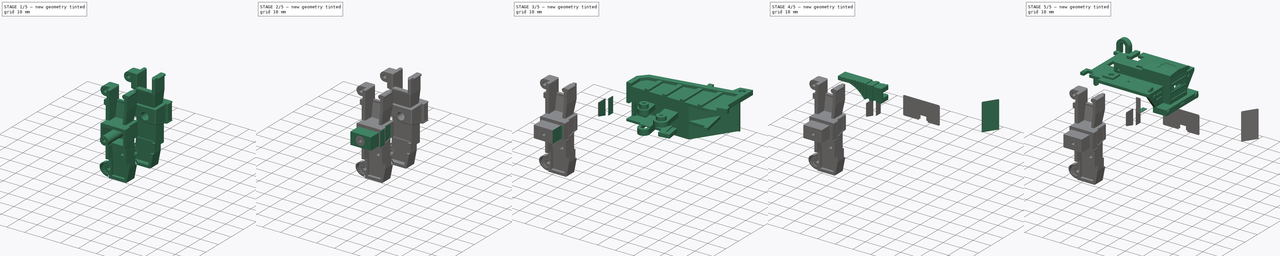
[diagram: build sequence overview — one tinted view per stage of 5, left to right]
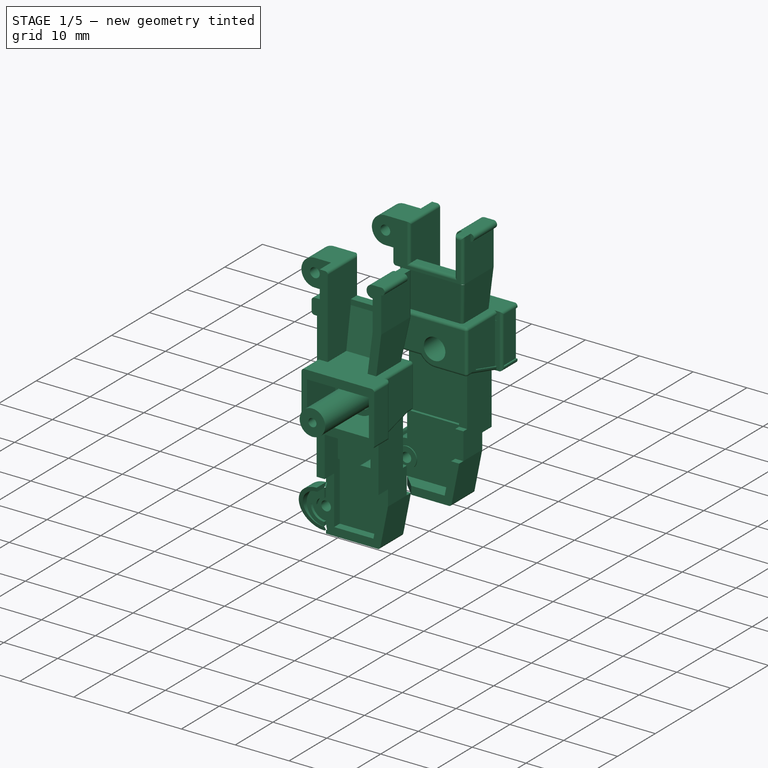
[diagram: stage 1 of 5 — iso view after this stage's code; geometry added in this stage tinted green]
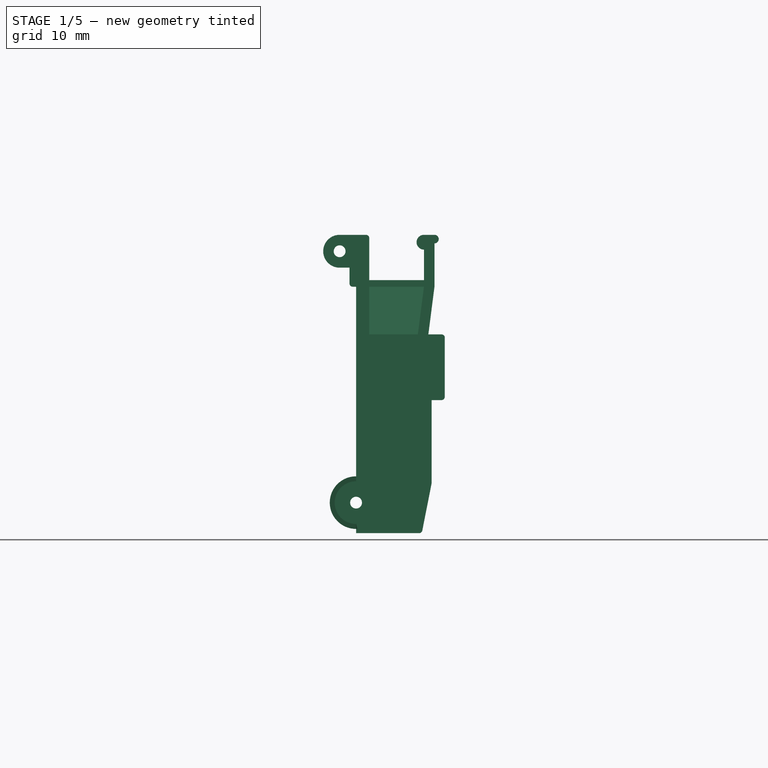
[diagram: stage 1 of 5 — front view after this stage's code; geometry added in this stage tinted green]
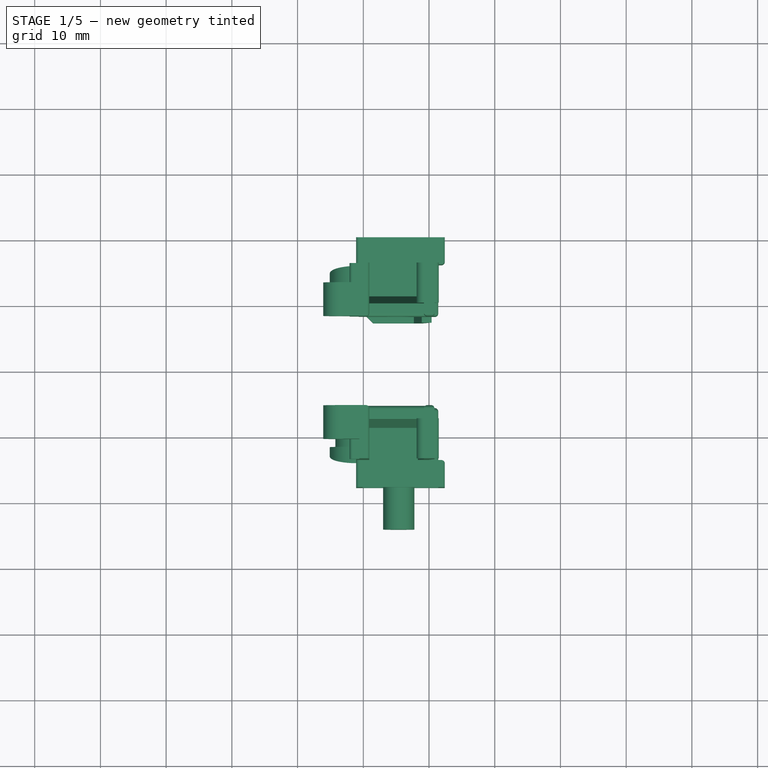
[diagram: stage 1 of 5 — top view after this stage's code; geometry added in this stage tinted green]
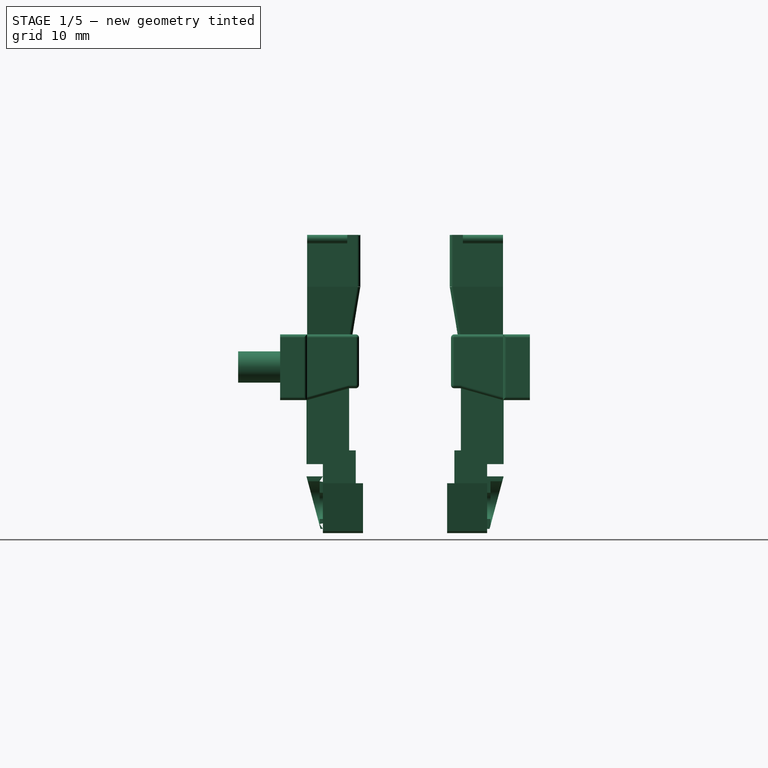
[diagram: stage 1 of 5 — right view after this stage's code; geometry added in this stage tinted green]
FCSTD DOCUMENT  (FreeCAD 1.0R39319 (Git))
Label: Stickered_Parts
License: All rights reserved
LicenseURL: https://en.wikipedia.org/wiki/All_rights_reserved
objects: Sketcher::SketchObject×33, PartDesign::Pocket×29, PartDesign::Pad×17, PartDesign::Body×12, PartDesign::SubShapeBinder×7, Part::Feature×5, PartDesign::FeatureBase×5, Image::ImagePlane×4, PartDesign::Fillet×2, Part::Refine×1
note: 245 computed .brp shape members not serialized (recipe doc carries the construction recipe); baked Part::Feature solids carry a one-line shape summary decoded from their .brp

FEATURE [PartDesign::Body] Body005  label="Sticker1C"
  AllowCompound = false
  Group = -> [Binder002,Sketch009,Pad002,Sketch010,Pocket007]
  Origin = -> Origin004
  Tip = -> Pocket007
FEATURE [Part::Feature] Part__Feature002  label="Right_Leg"
  shape: bbox 18.5 x 12.6 x 45.4 mm, 148 faces (baked)
FEATURE [Part::Feature] Part__Feature003  label="Left_Leg"
  Placement = pos=(0,38,0) rot=(0,0,1;0rad)
  shape: bbox 18.5 x 19 x 45.4 mm, 150 faces (baked)
FEATURE [Image::ImagePlane] Waist_Sticker
  Placement = pos=(-31,0.0209558,-9.90048) rot=(0.574985,-0.582053,0.574985;4.19583rad)
  XSize = 21.8875
  YSize = 10.38
FEATURE [PartDesign::FeatureBase] BaseFeature002
  BaseFeature = -> Part__Feature002
  Suppressed = false
FEATURE [Sketcher::SketchObject] Sketch011
  ArcFitTolerance = 1e-06
  AttachmentSupport = -> [BaseFeature002]
  ExternalGeometry = -> [BaseFeature002]
  FullyConstrained = true
  MakeInternals = false
  MapMode = 5
  Placement = pos=(-7.6,0,0) rot=(0.57735,0.57735,0.57735;2.0944rad)
  sketch-geometry (4):
    g0: LineSegment StartX=0 StartY=-5.85 StartZ=0 EndX=-3.6 EndY=-5.85 EndZ=0
    g1: LineSegment StartX=-3.6 StartY=-5.85 StartZ=0 EndX=-3.6 EndY=-14.45 EndZ=0
    g2: LineSegment StartX=-3.6 StartY=-14.45 StartZ=0 EndX=0 EndY=-14.45 EndZ=0
    g3: LineSegment StartX=0 StartY=-14.45 StartZ=0 EndX=0 EndY=-5.85 EndZ=0
  constraints (12):
    c: Coincident(g0,g1)
    c: Coincident(g1,g2)
    c: Coincident(g2,g3)
    c: Coincident(g3,g0)
    c: Horizontal(g0)
    c: Horizontal(g2)
    c: Vertical(g1)
    c: Vertical(g3)
    c: PointOnObject(g0,g-2)
    c: PointOnObject(g0,g-4)
    c: DistanceY(g0,g-4) = 0.2
    c: DistanceY(g-5,g1) = 0.2
FEATURE [PartDesign::Pocket] Pocket008
  BaseFeature = -> BaseFeature002
  Direction = (-1,0,0)
  Length = 0.3
  Length2 = 5
  Profile = -> Sketch011
  ReferenceAxis = -> Sketch011 [N_Axis]
  Refine = true
  Suppressed = false
  Type = 0
FEATURE [Sketcher::SketchObject] Sketch012
  ArcFitTolerance = 1e-06
  AttachmentSupport = -> [Pocket008]
  ExternalGeometry = -> [Pocket008]
  FullyConstrained = true
  MakeInternals = false
  MapMode = 5
  Placement = pos=(-8.601,0,0) rot=(0.57735,0.57735,0.57735;2.0944rad)
  sketch-geometry (11):
    g0: LineSegment StartX=-4.1 StartY=-5.85 StartZ=0 EndX=-4.1 EndY=-14.4306 EndZ=0
    g1: LineSegment StartX=-4.1 StartY=-14.4306 StartZ=0 EndX=-4.3 EndY=-14.4306 EndZ=0
    g2: LineSegment StartX=-4.3 StartY=-14.4306 StartZ=0 EndX=-9.3 EndY=-13.0244 EndZ=0
    g3: LineSegment StartX=-4.1 StartY=-5.85 StartZ=0 EndX=-9.3 EndY=-5.85 EndZ=0
    g4: ArcOfCircle CenterX=-9.3 CenterY=-6.25 CenterZ=0 NormalX=0 NormalY=0 NormalZ=1 AngleXU=0 Radius=0.4 StartAngle=1.5708 EndAngle=3.14159
    g5: ArcOfCircle CenterX=-9.3 CenterY=-12.6244 CenterZ=0 NormalX=0 NormalY=0 NormalZ=1 AngleXU=0 Radius=0.4 StartAngle=3.14159 EndAngle=4.71239
    g6: LineSegment StartX=-9.7 StartY=-12.6244 StartZ=0 EndX=-9.7 EndY=-6.25 EndZ=0
    g7: LineSegment [constr] StartX=-9.3 StartY=-6.25 StartZ=0 EndX=-9.3 EndY=-5.85 EndZ=0
    g8: LineSegment [constr] StartX=-9.3 StartY=-6.25 StartZ=0 EndX=-9.7 EndY=-6.25 EndZ=0
    g9: LineSegment [constr] StartX=-9.3 StartY=-12.6244 StartZ=0 EndX=-9.7 EndY=-12.6244 EndZ=0
    g10: LineSegment [constr] StartX=-9.3 StartY=-12.6244 StartZ=0 EndX=-9.3 EndY=-13.0244 EndZ=0
  constraints (31):
    c: PointOnObject(g0,g-3)
    c: PointOnObject(g0,g-3)
    c: Coincident(g1,g0)
    c: Horizontal(g1)
    c: Parallel(g-5,g2)
    c: DistanceY(g-5,g0) = 0.2
    c: Coincident(g3,g0)
    c: Horizontal(g3)
    c: Coincident(g4,g3)
    c: Coincident(g6,g5)
    c: Coincident(g6,g4)
    c: Vertical(g6)
    c: Coincident(g7,g4)
    c: Coincident(g7,g3)
    c: Coincident(g8,g4)
    c: Coincident(g8,g4)
    c: Vertical(g7)
    c: Horizontal(g8)
    c: Coincident(g9,g5)
    c: Coincident(g9,g5)
    c: Coincident(g5,g2)
    c: Horizontal(g9)
    c: Coincident(g2,g1)
    c: DistanceY(g0,g-4) = 0.2
    c: DistanceX(g3,g3) = 5.2
    c: Radius(g4) = 0.4
    c: Radius(g5) = 0.4
    c: DistanceX(g1,g1) = 0.2
    c: Coincident(g10,g5)
    c: Coincident(g10,g2)
    c: Vertical(g10)
FEATURE [PartDesign::Pocket] Pocket009
  BaseFeature = -> Pocket008
  Direction = (-1,0,0)
  Length = 0.3
  Length2 = 5
  Profile = -> Sketch012
  ReferenceAxis = -> Sketch012 [N_Axis]
  Refine = true
  Suppressed = false
  Type = 0
FEATURE [PartDesign::FeatureBase] BaseFeature003
  BaseFeature = -> Part__Feature003
  Suppressed = false
FEATURE [PartDesign::Pocket] Pocket022
  BaseFeature = -> Pocket009
  Direction = (0,-1,3e-16)
  Length = 0.4
  Length2 = 5
  Profile = -> Pocket009 [Face104]
  Refine = true
  Suppressed = false
  Type = 0
FEATURE [PartDesign::Pad] Pad012
  BaseFeature = -> Pocket022
  Direction = (0,1,0)
  Length = 0.1
  Length2 = 10
  Profile = -> Pocket022 [Face164]
  Refine = true
  Suppressed = false
  Type = 0
FEATURE [PartDesign::Pad] Pad013
  BaseFeature = -> Pad012
  Direction = (0,1,0)
  Length = 3
  Length2 = 10
  Profile = -> Pad012 [Face102,Face97]
  Refine = true
  Suppressed = false
  Type = 0
FEATURE [PartDesign::Pad] Pad014
  BaseFeature = -> Pad013
  Direction = (1.1e-15,1,0)
  Length = 1.1
  Length2 = 10
  Profile = -> Pad013 [Face106,Face102,Face98,Face97]
  Refine = true
  Suppressed = false
  Type = 0
FEATURE [PartDesign::Pocket] Pocket027
  BaseFeature = -> Pad014
  Direction = (0,1,0)
  Length = 1
  Length2 = 5
  Profile = -> Pad014 [Face155]
  Refine = true
  Suppressed = false
  Type = 0
FEATURE [PartDesign::Body] Body007  label="Left_Leg_Stickered"
  AllowCompound = false
  BaseFeature = -> Part__Feature003
  Group = -> [BaseFeature003,Sketch013,Pocket010,Sketch014,Pocket011,Pad007,Pad008,Pad009,Pad010,Pad011,Sketch029,Pocket023,Sketch030,Pocket024,Sketch031,Pocket025,Sketch032,Pocket026,Pocket028,Pad015,Fillet]
  Origin = -> Origin006
  Placement = pos=(0,38,0) rot=(0,0,1;0rad)
  Tip = -> Fillet
FEATURE [PartDesign::Pad] Pad016
  BaseFeature = -> Pocket027
  Direction = (0,-1,1.1e-15)
  Length = 1
  Length2 = 10
  Profile = -> Pocket027 [Face78]
  Refine = true
  Suppressed = false
  Type = 0
FEATURE [PartDesign::Fillet] Fillet001
  Base = -> Pad016 [Edge122,Edge123]
  BaseFeature = -> Pad016
  Radius = 0.5
  Refine = true
  SupportTransform = false
  Suppressed = false
  UseAllEdges = false
FEATURE [PartDesign::Body] Body006  label="Right_Leg_Stickered"
  AllowCompound = false
  BaseFeature = -> Part__Feature002
  Group = -> [BaseFeature002,Sketch011,Pocket008,Sketch012,Pocket009,Pocket022,Pad012,Pad013,Pad014,Pocket027,Pad016,Fillet001]
  Origin = -> Origin005
  Tip = -> Fillet001
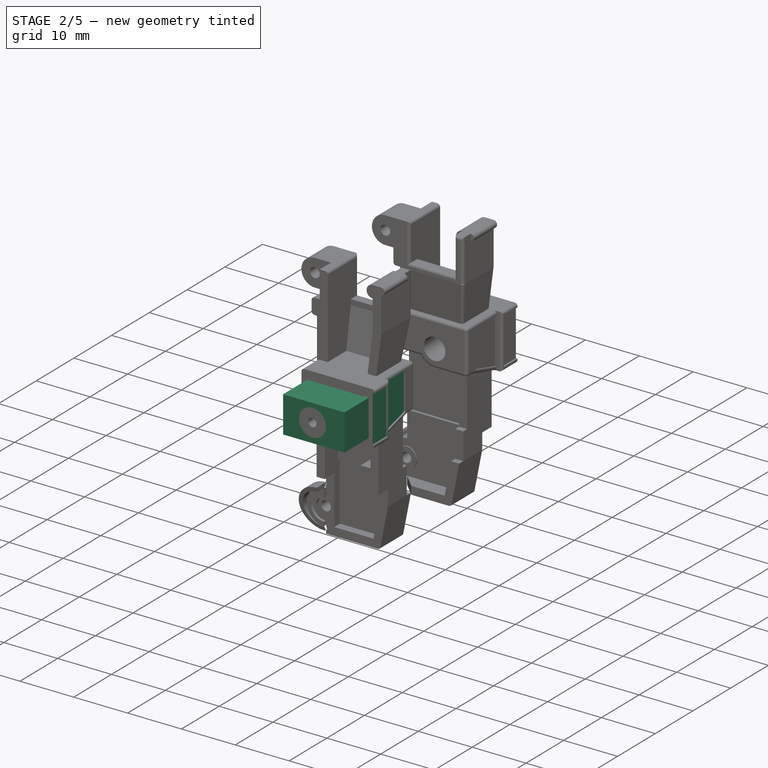
[diagram: stage 2 of 5 — iso view after this stage's code; geometry added in this stage tinted green]
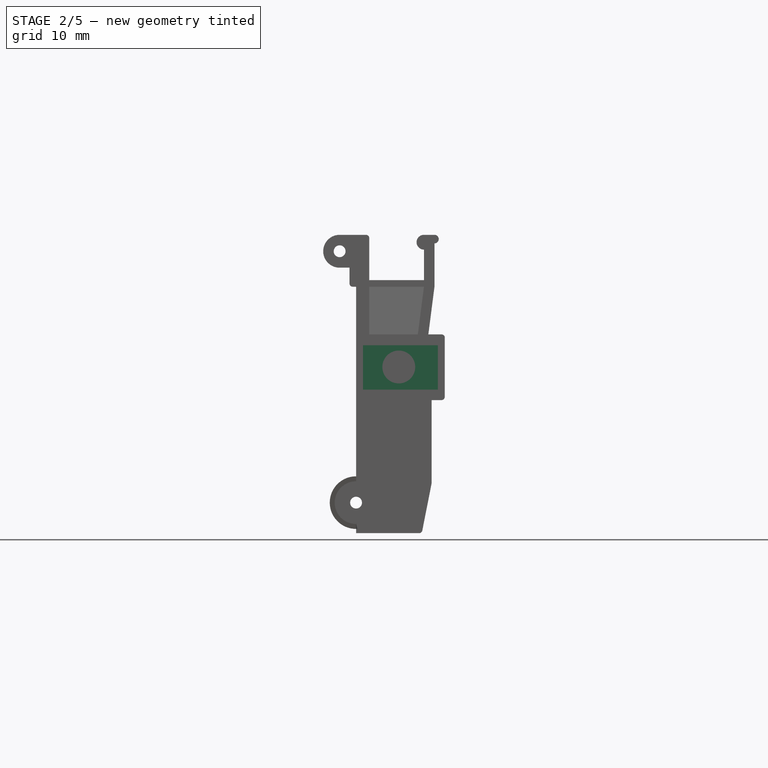
[diagram: stage 2 of 5 — front view after this stage's code; geometry added in this stage tinted green]
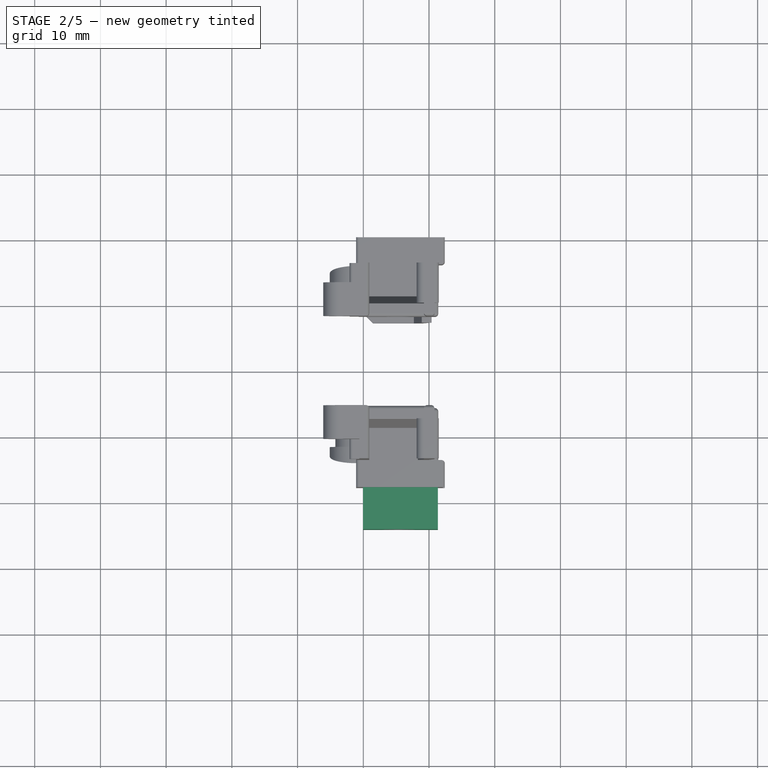
[diagram: stage 2 of 5 — top view after this stage's code; geometry added in this stage tinted green]
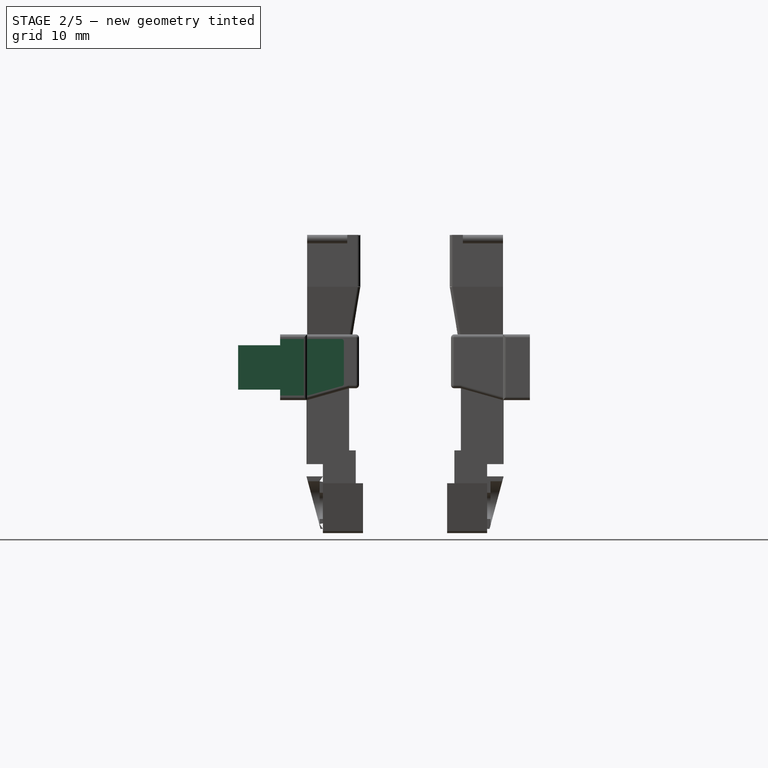
[diagram: stage 2 of 5 — right view after this stage's code; geometry added in this stage tinted green]
FEATURE [Sketcher::SketchObject] Sketch013
  ArcFitTolerance = 1e-06
  AttachmentSupport = -> [BaseFeature003]
  ExternalGeometry = -> [BaseFeature003]
  FullyConstrained = true
  MakeInternals = false
  MapMode = 5
  Placement = pos=(-7.6,0,0) rot=(0.57735,0.57735,0.57735;2.0944rad)
  sketch-geometry (4):
    g0: LineSegment StartX=-38 StartY=-5.84999 StartZ=0 EndX=-38 EndY=-14.45 EndZ=0
    g1: LineSegment StartX=-38 StartY=-14.45 StartZ=0 EndX=-34.4 EndY=-14.45 EndZ=0
    g2: LineSegment StartX=-34.4 StartY=-14.45 StartZ=0 EndX=-34.4 EndY=-5.84999 EndZ=0
    g3: LineSegment StartX=-34.4 StartY=-5.84999 StartZ=0 EndX=-38 EndY=-5.84999 EndZ=0
  constraints (12):
    c: Coincident(g0,g1)
    c: Coincident(g1,g2)
    c: Coincident(g2,g3)
    c: Coincident(g3,g0)
    c: Vertical(g0)
    c: Vertical(g2)
    c: Horizontal(g1)
    c: Horizontal(g3)
    c: PointOnObject(g0,g-3)
    c: PointOnObject(g1,g-5)
    c: DistanceY(g-5,g1) = 0.2
    c: DistanceY(g2,g-5) = 0.2
FEATURE [PartDesign::Pocket] Pocket010
  BaseFeature = -> BaseFeature003
  Direction = (-1,0,0)
  Length = 0.3
  Length2 = 5
  Profile = -> Sketch013
  ReferenceAxis = -> Sketch013 [N_Axis]
  Refine = true
  Suppressed = false
  Type = 0
FEATURE [Sketcher::SketchObject] Sketch014
  ArcFitTolerance = 1e-06
  AttachmentSupport = -> [Pocket010]
  ExternalGeometry = -> [Pocket010]
  FullyConstrained = true
  MakeInternals = false
  MapMode = 5
  Placement = pos=(-8.601,0,0) rot=(0.57735,0.57735,0.57735;2.0944rad)
  sketch-geometry (13):
    g0: LineSegment StartX=-33.9 StartY=-5.84999 StartZ=0 EndX=-33.9 EndY=-14.4306 EndZ=0
    g1: LineSegment [constr] StartX=-33.9 StartY=-14.6306 StartZ=0 EndX=-33.9 EndY=-14.4306 EndZ=0
    g2: LineSegment [constr] StartX=-33.9 StartY=-5.64999 StartZ=0 EndX=-33.9 EndY=-5.84999 EndZ=0
    g3: LineSegment StartX=-33.9 StartY=-14.4306 StartZ=0 EndX=-33.7 EndY=-14.4306 EndZ=0
    g4: LineSegment StartX=-33.7 StartY=-14.4306 StartZ=0 EndX=-28.7 EndY=-13.0243 EndZ=0
    g5: ArcOfCircle CenterX=-28.7 CenterY=-12.6243 CenterZ=0 NormalX=0 NormalY=0 NormalZ=1 AngleXU=0 Radius=0.4 StartAngle=4.71239 EndAngle=6.28319
    g6: LineSegment StartX=-28.3 StartY=-12.6243 StartZ=0 EndX=-28.3 EndY=-6.24999 EndZ=0
    g7: ArcOfCircle CenterX=-28.7 CenterY=-6.24999 CenterZ=0 NormalX=0 NormalY=0 NormalZ=1 AngleXU=0 Radius=0.4 StartAngle=0 EndAngle=1.5708
    g8: LineSegment StartX=-28.7 StartY=-5.84999 StartZ=0 EndX=-33.9 EndY=-5.84999 EndZ=0
    g9: LineSegment [constr] StartX=-28.3 StartY=-12.6243 StartZ=0 EndX=-28.7 EndY=-12.6243 EndZ=0
    g10: LineSegment [constr] StartX=-28.7 StartY=-13.0243 StartZ=0 EndX=-28.7 EndY=-12.6243 EndZ=0
    g11: LineSegment [constr] StartX=-28.3 StartY=-6.24999 StartZ=0 EndX=-28.7 EndY=-6.24999 EndZ=0
    g12: LineSegment [constr] StartX=-28.7 StartY=-5.84999 StartZ=0 EndX=-28.7 EndY=-6.24999 EndZ=0
  constraints (35):
    c: Vertical(g0)
    c: Coincident(g1,g-4)
    c: Coincident(g1,g0)
    c: Vertical(g1)
    c: Coincident(g2,g-3)
    c: Coincident(g2,g0)
    c: DistanceY(g2,g2) = 0.2
    c: DistanceY(g1,g1) = 0.2
    c: Coincident(g3,g0)
    c: Horizontal(g3)
    c: Coincident(g4,g3)
    c: Coincident(g5,g4)
    c: Coincident(g6,g5)
    c: Vertical(g6)
    c: Coincident(g7,g6)
    c: Coincident(g8,g7)
    c: Coincident(g8,g0)
    c: Horizontal(g8)
    c: Parallel(g-4,g4)
    c: Coincident(g9,g5)
    c: Coincident(g9,g5)
    c: Coincident(g10,g4)
    c: Coincident(g10,g5)
    c: Coincident(g11,g6)
    c: Coincident(g11,g7)
    c: Coincident(g12,g7)
    c: Coincident(g12,g7)
    c: Horizontal(g11)
    c: Vertical(g12)
    c: Vertical(g10)
    c: Horizontal(g9)
    c: Radius(g5) = 0.4
    c: Radius(g7) = 0.4
    c: DistanceX(g8,g8) = 5.2
    c: DistanceX(g3,g3) = 0.2
FEATURE [PartDesign::Pocket] Pocket011
  BaseFeature = -> Pocket010
  Direction = (-1,0,0)
  Length = 0.3
  Length2 = 5
  Profile = -> Sketch014
  ReferenceAxis = -> Sketch014 [N_Axis]
  Refine = true
  Suppressed = false
  Type = 0
FEATURE [PartDesign::Body] Body011  label="Sticker4A"
  AllowCompound = false
  Group = -> [Binder005,Sketch024,Pad005,Sketch025,Pocket019,Sketch028,Pocket021]
  Origin = -> Origin010
  Tip = -> Pocket021
FEATURE [PartDesign::Pad] Pad007
  BaseFeature = -> Pocket011
  Direction = (0,-1,2.38419e-07)
  Length = 3
  Length2 = 10
  Profile = -> Pocket011 [Face97,Face102]
  Refine = true
  Suppressed = false
  Type = 0
FEATURE [PartDesign::Pad] Pad008
  BaseFeature = -> Pad007
  Direction = (0,-1,2.38419e-07)
  Length = 1.5
  Length2 = 10
  Profile = -> Pad007 [Face97,Face101,Face105,Face98]
  Refine = true
  Suppressed = false
  Type = 0
FEATURE [PartDesign::Pad] Pad009
  BaseFeature = -> Pad008
  Direction = (0,-1,2.38419e-07)
  Length = 12.9
  Length2 = 10
  Profile = -> Pad008 [Face156]
  Refine = true
  Suppressed = false
  Type = 0
FEATURE [PartDesign::Pad] Pad010
  BaseFeature = -> Pad009
  Direction = (0,-1,2.38419e-07)
  Length = 12.4
  Length2 = 10
  Profile = -> Pad009 [Face97,Face98,Face102,Face103,Face101]
  Refine = true
  Suppressed = false
  Type = 0
FEATURE [PartDesign::Pad] Pad011
  BaseFeature = -> Pad010
  Direction = (0,-1,2.38419e-07)
  Length = 9.5
  Length2 = 10
  Profile = -> Pad010 [Face112]
  Refine = true
  Suppressed = false
  Type = 0
FEATURE [Sketcher::SketchObject] Sketch029
  ArcFitTolerance = 1e-06
  AttachmentSupport = -> [Pad011]
  ExternalGeometry = -> [Pad011]
  FullyConstrained = true
  MakeInternals = false
  MapMode = 5
  Placement = pos=(-20.1,0,0) rot=(0.57735,-0.57735,-0.57735;2.0944rad)
  sketch-geometry (4):
    g0: LineSegment StartX=38 StartY=-6.74999 StartZ=0 EndX=38 EndY=-13.55 EndZ=0
    g1: LineSegment StartX=38 StartY=-13.55 StartZ=0 EndX=44.4 EndY=-13.55 EndZ=0
    g2: LineSegment StartX=44.4 StartY=-13.55 StartZ=0 EndX=44.4 EndY=-6.74999 EndZ=0
    g3: LineSegment StartX=44.4 StartY=-6.74999 StartZ=0 EndX=38 EndY=-6.74999 EndZ=0
  constraints (10):
    c: Coincident(g0,g1)
    c: Coincident(g1,g2)
    c: Coincident(g2,g3)
    c: Coincident(g3,g0)
    c: Vertical(g0)
    c: Vertical(g2)
    c: Horizontal(g1)
    c: Horizontal(g3)
    c: Coincident(g0,g-3)
    c: Coincident(g1,g-4)
FEATURE [PartDesign::Pocket] Pocket023
  BaseFeature = -> Pad011
  Direction = (1,0,0)
  Length = 0.05
  Length2 = 5
  Profile = -> Sketch029
  ReferenceAxis = -> Sketch029 [N_Axis]
  Refine = true
  Suppressed = false
  Type = 0
FEATURE [Sketcher::SketchObject] Sketch030
  ArcFitTolerance = 1e-06
  AttachmentSupport = -> [Pocket023]
  ExternalGeometry = -> [Pocket023]
  FullyConstrained = true
  MakeInternals = false
  MapMode = 5
  Placement = pos=(-8.6,0,0) rot=(0.57735,0.57735,0.57735;2.0944rad)
  sketch-geometry (4):
    g0: LineSegment StartX=-44.4 StartY=-6.79139 StartZ=0 EndX=-44.4 EndY=-13.55 EndZ=0
    g1: LineSegment StartX=-44.4 StartY=-13.55 StartZ=0 EndX=-38 EndY=-13.55 EndZ=0
    g2: LineSegment StartX=-38 StartY=-13.55 StartZ=0 EndX=-38 EndY=-6.79139 EndZ=0
    g3: LineSegment StartX=-38 StartY=-6.79139 StartZ=0 EndX=-44.4 EndY=-6.79139 EndZ=0
  constraints (10):
    c: Coincident(g0,g1)
    c: Coincident(g1,g2)
    c: Coincident(g2,g3)
    c: Coincident(g3,g0)
    c: Vertical(g0)
    c: Vertical(g2)
    c: Horizontal(g1)
    c: Horizontal(g3)
    c: Coincident(g0,g-3)
    c: Coincident(g1,g-4)
FEATURE [PartDesign::Pocket] Pocket024
  BaseFeature = -> Pocket023
  Direction = (-1,0,0)
  Length = 0.05
  Length2 = 5
  Profile = -> Sketch030
  ReferenceAxis = -> Sketch030 [N_Axis]
  Refine = true
  Suppressed = false
  Type = 0
FEATURE [Sketcher::SketchObject] Sketch031
  ArcFitTolerance = 1e-06
  AttachmentSupport = -> [Pocket024]
  ExternalGeometry = -> [Pocket024]
  FullyConstrained = true
  MakeInternals = false
  MapMode = 5
  Placement = pos=(0,-1.60933e-06,-6.75) rot=(-1,0,0;0rad)
  sketch-geometry (4):
    g0: LineSegment StartX=-8.65 StartY=-44.4 StartZ=0 EndX=-8.65 EndY=-38 EndZ=0
    g1: LineSegment StartX=-8.65 StartY=-38 StartZ=0 EndX=-20.05 EndY=-38 EndZ=0
    g2: LineSegment StartX=-20.05 StartY=-38 StartZ=0 EndX=-20.05 EndY=-44.4 EndZ=0
    g3: LineSegment StartX=-20.05 StartY=-44.4 StartZ=0 EndX=-8.65 EndY=-44.4 EndZ=0
  constraints (10):
    c: Coincident(g0,g1)
    c: Coincident(g1,g2)
    c: Coincident(g2,g3)
    c: Coincident(g3,g0)
    c: Vertical(g0)
    c: Vertical(g2)
    c: Horizontal(g1)
    c: Horizontal(g3)
    c: Coincident(g0,g-3)
    c: Coincident(g1,g-4)
FEATURE [PartDesign::Pocket] Pocket025
  BaseFeature = -> Pocket024
  Direction = (0,-2.38419e-07,-1)
  Length = 0.05
  Length2 = 5
  Profile = -> Sketch031
  ReferenceAxis = -> Sketch031 [N_Axis]
  Refine = true
  Suppressed = false
  Type = 0
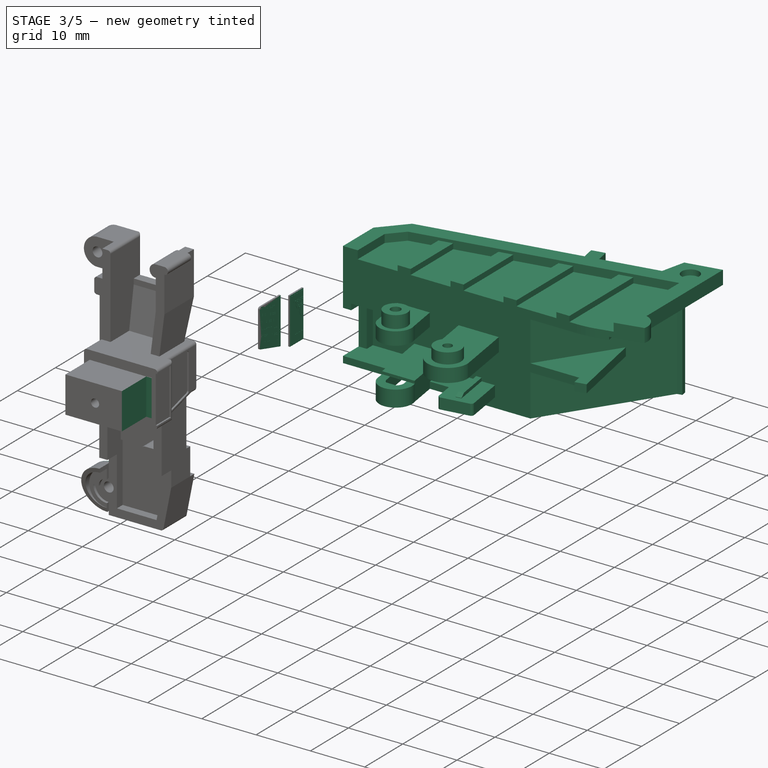
[diagram: stage 3 of 5 — iso view after this stage's code; geometry added in this stage tinted green]
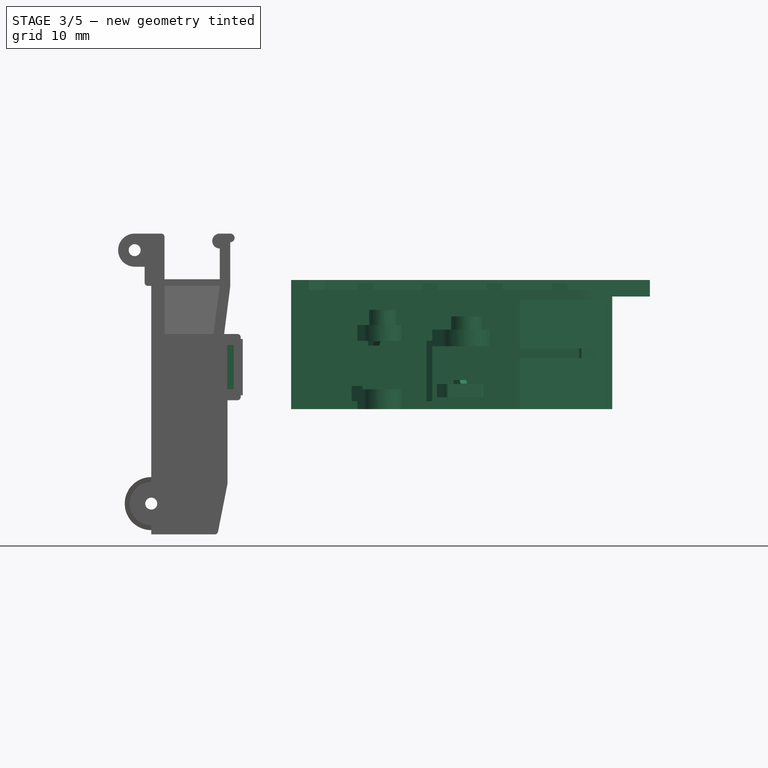
[diagram: stage 3 of 5 — front view after this stage's code; geometry added in this stage tinted green]
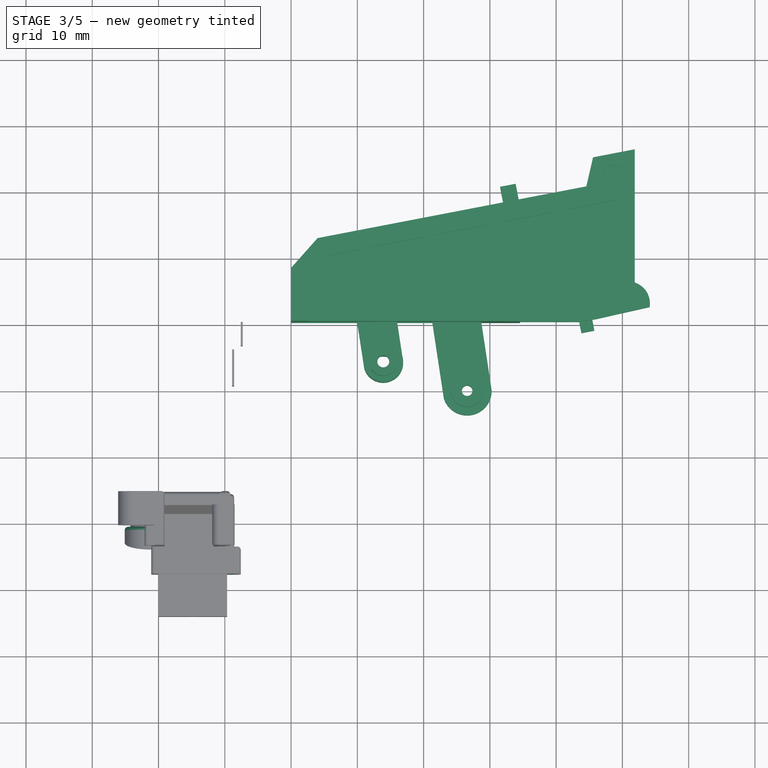
[diagram: stage 3 of 5 — top view after this stage's code; geometry added in this stage tinted green]
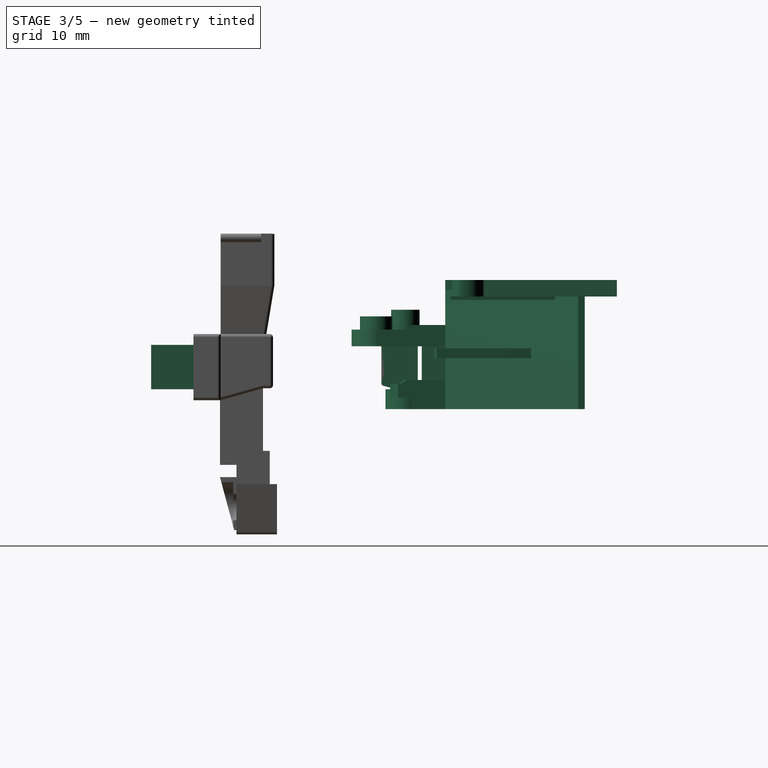
[diagram: stage 3 of 5 — right view after this stage's code; geometry added in this stage tinted green]
FEATURE [Part::Feature] Part__Feature004  label="Right_Foot"
  shape: bbox 54.15 x 40.03 x 19.5 mm, 120 faces (baked)
FEATURE [Image::ImagePlane] Leg_Sticker1
  Placement = pos=(11,-3.7e-15,-10.7) rot=(1,0,0;4.71239rad)
  XSize = 21.3299
  YSize = 11.3247
FEATURE [PartDesign::FeatureBase] BaseFeature004
  BaseFeature = -> Part__Feature004
  Suppressed = false
FEATURE [Sketcher::SketchObject] Sketch015
  ArcFitTolerance = 1e-06
  AttachmentSupport = -> [BaseFeature004]
  ExternalGeometry = -> [BaseFeature004]
  FullyConstrained = true
  MakeInternals = false
  MapMode = 5
  Placement = pos=(0,7.2,0) rot=(0,0.707107,0.707107;3.14159rad)
  sketch-geometry (24):
    g0: LineSegment StartX=-20.5349 StartY=-5.5 StartZ=0 EndX=-1.1 EndY=-5.5 EndZ=0
    g1: LineSegment StartX=-0.5 StartY=-6.1 StartZ=0 EndX=-0.5 EndY=-15.4 EndZ=0
    g2: LineSegment StartX=-1.1 StartY=-16 StartZ=0 EndX=-9.43764 EndY=-16 EndZ=0
    g3: LineSegment StartX=-9.43764 StartY=-16 StartZ=0 EndX=-9.43764 EndY=-15.3 EndZ=0
    g4: LineSegment StartX=-9.43764 StartY=-15.3 StartZ=0 EndX=-10.2076 EndY=-15.3 EndZ=0
    g5: LineSegment StartX=-10.2076 StartY=-15.3 StartZ=0 EndX=-10.2076 EndY=-13.3 EndZ=0
    g6: LineSegment StartX=-10.2076 StartY=-13.3 StartZ=0 EndX=-13.6076 EndY=-13.3 EndZ=0
    g7: LineSegment StartX=-13.6076 StartY=-13.3 StartZ=0 EndX=-13.6076 EndY=-15.3 EndZ=0
    g8: LineSegment StartX=-13.6076 StartY=-15.3 StartZ=0 EndX=-14.3776 EndY=-15.3 EndZ=0
    g9: LineSegment StartX=-14.3776 StartY=-15.3 StartZ=0 EndX=-14.3776 EndY=-16 EndZ=0
    g10: LineSegment StartX=-14.3776 StartY=-16 StartZ=0 EndX=-20.5349 EndY=-16 EndZ=0
    g11: LineSegment StartX=-21.1349 StartY=-15.4 StartZ=0 EndX=-21.1349 EndY=-6.1 EndZ=0
    g12: ArcOfCircle CenterX=-20.5349 CenterY=-6.1 CenterZ=0 NormalX=0 NormalY=0 NormalZ=1 AngleXU=0 Radius=0.6 StartAngle=1.5708 EndAngle=3.14159
    g13: ArcOfCircle CenterX=-1.1 CenterY=-6.1 CenterZ=0 NormalX=0 NormalY=0 NormalZ=1 AngleXU=0 Radius=0.6 StartAngle=0 EndAngle=1.5708
    g14: ArcOfCircle CenterX=-1.1 CenterY=-15.4 CenterZ=0 NormalX=0 NormalY=0 NormalZ=1 AngleXU=0 Radius=0.6 StartAngle=4.71239 EndAngle=6.28319
    g15: ArcOfCircle CenterX=-20.5349 CenterY=-15.4 CenterZ=0 NormalX=0 NormalY=0 NormalZ=1 AngleXU=0 Radius=0.6 StartAngle=3.14159 EndAngle=4.71239
    g16: LineSegment [constr] StartX=-20.5349 StartY=-15.4 StartZ=0 EndX=-20.5349 EndY=-16 EndZ=0
    g17: LineSegment [constr] StartX=-20.5349 StartY=-15.4 StartZ=0 EndX=-21.1349 EndY=-15.4 EndZ=0
    g18: LineSegment [constr] StartX=-20.5349 StartY=-6.1 StartZ=0 EndX=-21.1349 EndY=-6.1 EndZ=0
    g19: LineSegment [constr] StartX=-20.5349 StartY=-6.1 StartZ=0 EndX=-20.5349 EndY=-5.5 EndZ=0
    g20: LineSegment [constr] StartX=-1.1 StartY=-5.5 StartZ=0 EndX=-1.1 EndY=-6.1 EndZ=0
    g21: LineSegment [constr] StartX=-1.1 StartY=-6.1 StartZ=0 EndX=-0.5 EndY=-6.1 EndZ=0
    g22: LineSegment [constr] StartX=-1.1 StartY=-16 StartZ=0 EndX=-1.1 EndY=-15.4 EndZ=0
    g23: LineSegment [constr] StartX=-0.5 StartY=-15.4 StartZ=0 EndX=-1.1 EndY=-15.4 EndZ=0
  constraints (68):
    c: Horizontal(g0)
    c: Vertical(g1)
    c: Horizontal(g2)
    c: Coincident(g3,g2)
    c: Vertical(g3)
    c: Coincident(g4,g3)
    c: Horizontal(g4)
    c: Coincident(g5,g4)
    c: Vertical(g5)
    c: Coincident(g6,g5)
    c: Horizontal(g6)
    c: Coincident(g7,g6)
    c: Vertical(g7)
    c: Coincident(g8,g7)
    c: Horizontal(g8)
    c: Coincident(g9,g8)
    c: Vertical(g9)
    c: Coincident(g10,g9)
    c: Horizontal(g10)
    c: Vertical(g11)
    c: Coincident(g12,g0)
    c: Coincident(g12,g11)
    c: Coincident(g13,g0)
    c: Coincident(g13,g1)
    c: Coincident(g14,g1)
    c: Coincident(g14,g2)
    c: Coincident(g15,g10)
    c: Coincident(g15,g11)
    c: Coincident(g16,g15)
    c: Coincident(g17,g15)
    c: Coincident(g17,g11)
    c: Horizontal(g17)
    c: Coincident(g18,g12)
    c: Coincident(g18,g11)
    c: Coincident(g19,g12)
    c: Coincident(g19,g0)
    c: Vertical(g19)
    c: Coincident(g20,g0)
    c: Coincident(g20,g13)
    c: Coincident(g21,g20)
    c: Coincident(g21,g1)
    c: Coincident(g22,g2)
    c: Coincident(g22,g14)
    c: Coincident(g23,g1)
    c: Coincident(g23,g14)
    c: Horizontal(g23)
    c: Horizontal(g21)
    c: Horizontal(g18)
    c: Vertical(g16)
    c: Coincident(g16,g10)
    c: Vertical(g22)
    c: Vertical(g20)
    c: Radius(g15) = 0.6
    c: Radius(g14) = 0.6
    c: Radius(g13) = 0.6
    c: Radius(g12) = 0.6
    c: DistanceX(g-5,g11) = 0.5
    c: DistanceY(g-5,g10) = 0.5
    c: DistanceY(g0,g-4) = 0.5
    c: DistanceX(g1,g-7) = 0.5
    c: DistanceY(g-7,g2) = 0.5
    c: DistanceX(g9,g-14) = 0.2
    c: DistanceX(g7,g-13) = 0.2
    c: DistanceX(g-10,g4) = 0.2
    c: DistanceX(g-8,g2) = 0.2
    c: DistanceY(g-9,g3) = 0.2
    c: DistanceY(g-11,g5) = 0.2
    c: DistanceY(g-14,g8) = 0.2
FEATURE [PartDesign::Pocket] Pocket012
  BaseFeature = -> BaseFeature004
  Direction = (0,-1,2e-16)
  Length = 0.3
  Length2 = 5
  Profile = -> Sketch015
  ReferenceAxis = -> Sketch015 [N_Axis]
  Refine = true
  Suppressed = false
  Type = 0
FEATURE [PartDesign::Body] Body010  label="Sticker3"
  AllowCompound = false
  Group = -> [Binder004,Sketch019,Pad004,Sketch020,Pocket015,Sketch021,Pocket016,Sketch022,Pocket017,Sketch023,Pocket018]
  Origin = -> Origin009
  Tip = -> Pocket018
FEATURE [PartDesign::SubShapeBinder] Binder005
  BindCopyOnChange = 0
  BindMode = 0
  ClaimChildren = false
  Context = -> Body011 [Binder005.]
  Fuse = false
  MakeFace = true
  OffsetFill = false
  OffsetIntersection = false
  OffsetJoinType = 0
  OffsetOpenResult = false
  PartialLoad = false
  Refine = true
  Relative = true
  Support = -> [Part__Feature002[Face35]]
  _Version = 2
FEATURE [Sketcher::SketchObject] Sketch024
  ArcFitTolerance = 1e-06
  AttachmentSupport = -> [Binder005]
  ExternalGeometry = -> [Binder005]
  FullyConstrained = true
  MakeInternals = false
  MapMode = 5
  Placement = pos=(-7.6,0,0) rot=(0.57735,0.57735,0.57735;2.0944rad)
  sketch-geometry (4):
    g0: LineSegment StartX=0 StartY=-14.6 StartZ=0 EndX=0 EndY=-5.7 EndZ=0
    g1: LineSegment StartX=0 StartY=-5.7 StartZ=0 EndX=-3.55 EndY=-5.7 EndZ=0
    g2: LineSegment StartX=-3.55 StartY=-5.7 StartZ=0 EndX=-3.55 EndY=-14.6 EndZ=0
    g3: LineSegment StartX=-3.55 StartY=-14.6 StartZ=0 EndX=0 EndY=-14.6 EndZ=0
  constraints (12):
    c: Coincident(g0,g1)
    c: Coincident(g1,g2)
    c: Coincident(g2,g3)
    c: Coincident(g3,g0)
    c: Vertical(g0)
    c: Vertical(g2)
    c: Horizontal(g1)
    c: Horizontal(g3)
    c: PointOnObject(g0,g-2)
    c: DistanceY(g0,g-3) = 0.05
    c: DistanceY(g-5,g0) = 0.05
    c: DistanceX(g-5,g2) = 0.05
FEATURE [PartDesign::Pad] Pad005
  Direction = (1,0,0)
  Length = 0.3
  Length2 = 10
  Profile = -> Sketch024
  ReferenceAxis = -> Sketch024 [N_Axis]
  Refine = true
  Suppressed = false
  Type = 0
FEATURE [Sketcher::SketchObject] Sketch025
  ArcFitTolerance = 1e-06
  AttachmentSupport = -> [Pad005]
  FullyConstrained = false
  MakeInternals = false
  MapMode = 5
  Placement = pos=(-7.3,0,0) rot=(0.57735,0.57735,0.57735;2.0944rad)
  sketch-geometry (38):
    g0: ArcOfCircle CenterX=0 CenterY=-7.56576 CenterZ=0 NormalX=0 NormalY=0 NormalZ=-1 AngleXU=0 Radius=0.00953934 StartAngle=1.5708 EndAngle=4.71239
    g1: LineSegment StartX=-2.01868 StartY=-7.5753 StartZ=0 EndX=0 EndY=-7.5753 EndZ=0
    g2: LineSegment StartX=-1.56935 StartY=-8.24498 StartZ=0 EndX=-2.01868 EndY=-7.5753 EndZ=0
    g3: LineSegment StartX=0 StartY=-8.24498 StartZ=0 EndX=-1.56935 EndY=-8.24498 EndZ=0
    g4: ArcOfCircle CenterX=0 CenterY=-8.25452 CenterZ=0 NormalX=0 NormalY=0 NormalZ=-1 AngleXU=0 Radius=0.00953934 StartAngle=1.5708 EndAngle=4.71239
    g5: LineSegment StartX=0 StartY=-8.26406 StartZ=0 EndX=-1.57444 EndY=-8.26406 EndZ=0
    g6: ArcOfCircle CenterX=-1.57444 CenterY=-8.25452 CenterZ=0 NormalX=0 NormalY=0 NormalZ=-1 AngleXU=-3.14159 Radius=0.00953934 StartAngle=1.5708 EndAngle=2.55062
    g7: LineSegment StartX=-1.58236 StartY=-8.25984 StartZ=0 EndX=-2.04449 EndY=-7.57108 EndZ=0
    g8: ArcOfCircle CenterX=-2.03657 CenterY=-7.56576 CenterZ=0 NormalX=0 NormalY=0 NormalZ=-1 AngleXU=-2.16177 Radius=0.00953934 StartAngle=1.5708 EndAngle=3.73257
    g9: LineSegment StartX=-2.03657 StartY=-7.55622 StartZ=0 EndX=0 EndY=-7.55622 EndZ=0
    g10: ArcOfCircle CenterX=0 CenterY=-12.8499 CenterZ=0 NormalX=0 NormalY=0 NormalZ=-1 AngleXU=0 Radius=0.00953934 StartAngle=1.5708 EndAngle=4.71239
    g11: LineSegment StartX=-2.20259 StartY=-12.8595 StartZ=0 EndX=0 EndY=-12.8595 EndZ=0
    g12: ArcOfCircle CenterX=-2.20259 CenterY=-12.8499 CenterZ=0 NormalX=0 NormalY=0 NormalZ=-1 AngleXU=-3.14159 Radius=0.00953934 StartAngle=1.5708 EndAngle=2.99077
    g13: LineSegment StartX=-3.22609 StartY=-6.17899 StartZ=0 EndX=-2.21202 EndY=-12.8514 EndZ=0
    g14: ArcOfCircle CenterX=-3.21666 CenterY=-6.17756 CenterZ=0 NormalX=0 NormalY=0 NormalZ=-1 AngleXU=-1.72162 Radius=0.00953934 StartAngle=1.5708 EndAngle=3.29242
    g15: LineSegment StartX=0 StartY=-6.16802 StartZ=0 EndX=-3.21666 EndY=-6.16802 EndZ=0
    g16: ArcOfCircle CenterX=0 CenterY=-6.17756 CenterZ=0 NormalX=0 NormalY=0 NormalZ=-1 AngleXU=0 Radius=0.00953934 StartAngle=1.5708 EndAngle=4.71239
    g17: LineSegment StartX=0 StartY=-6.1871 StartZ=0 EndX=-3.20556 EndY=-6.1871 EndZ=0
    g18: LineSegment StartX=-3.20556 StartY=-6.1871 StartZ=0 EndX=-2.19439 EndY=-12.8404 EndZ=0
    g19: LineSegment StartX=-2.19439 StartY=-12.8404 StartZ=0 EndX=0 EndY=-12.8404 EndZ=0
    g20: LineSegment StartX=-0.680454 StartY=-8.60541 StartZ=0 EndX=-1.34356 EndY=-8.60541 EndZ=0
    g21: LineSegment StartX=0 StartY=-8.60541 StartZ=0 EndX=-0.680454 EndY=-8.60541 EndZ=0
    g22: ArcOfCircle CenterX=0 CenterY=-8.59587 CenterZ=0 NormalX=0 NormalY=0 NormalZ=-1 AngleXU=0 Radius=0.00953934 StartAngle=1.5708 EndAngle=4.71239
    g23: LineSegment StartX=0 StartY=-8.58633 StartZ=0 EndX=-0.680454 EndY=-8.58633 EndZ=0
    g24: LineSegment StartX=-0.680454 StartY=-8.58633 StartZ=0 EndX=-1.36091 EndY=-8.58633 EndZ=0
    g25: ArcOfCircle CenterX=-1.36091 CenterY=-8.59587 CenterZ=0 NormalX=0 NormalY=0 NormalZ=-1 AngleXU=-2.13607 Radius=0.00953934 StartAngle=1.5708 EndAngle=3.70687
    g26: LineSegment StartX=-1.36896 StartY=-8.60098 StartZ=0 EndX=-0.00805541 EndY=-10.7464 EndZ=0
    g27: ArcOfCircle CenterX=0 CenterY=-10.7413 CenterZ=0 NormalX=0 NormalY=0 NormalZ=-1 AngleXU=1.00552 Radius=0.00953934 StartAngle=1.5708 EndAngle=4.71239
    g28: LineSegment StartX=-1.34356 StartY=-8.60541 StartZ=0 EndX=0.00805541 EndY=-10.7362 EndZ=0
    g29: LineSegment StartX=-1.27475 StartY=-7.28635 StartZ=0 EndX=-2.53208 EndY=-7.28635 EndZ=0
    g30: LineSegment StartX=0 StartY=-7.28635 StartZ=0 EndX=-1.27475 EndY=-7.28635 EndZ=0
    g31: ArcOfCircle CenterX=0 CenterY=-7.27681 CenterZ=0 NormalX=0 NormalY=0 NormalZ=-1 AngleXU=0 Radius=0.00953934 StartAngle=1.5708 EndAngle=4.71239
    g32: LineSegment StartX=0 StartY=-7.26727 StartZ=0 EndX=-1.27475 EndY=-7.26727 EndZ=0
    g33: LineSegment StartX=-1.27475 StartY=-7.26727 StartZ=0 EndX=-2.5495 EndY=-7.26727 EndZ=0
    g34: ArcOfCircle CenterX=-2.5495 CenterY=-7.27681 CenterZ=0 NormalX=0 NormalY=0 NormalZ=-1 AngleXU=-2.13957 Radius=0.00953934 StartAngle=1.5708 EndAngle=3.71037
    g35: LineSegment StartX=-2.55754 StartY=-7.28195 StartZ=0 EndX=-0.00803748 EndY=-11.2703 EndZ=0
    g36: ArcOfCircle CenterX=1.8e-15 CenterY=-11.2651 CenterZ=0 NormalX=0 NormalY=0 NormalZ=-1 AngleXU=1.00202 Radius=0.00953934 StartAngle=1.5708 EndAngle=4.71239
    g37: LineSegment StartX=-2.53208 StartY=-7.28635 StartZ=0 EndX=0.00803748 EndY=-11.26 EndZ=0
  constraints (38):
    c: Tangent(g0,g1) = -1.5708
    c: Tangent(g0,g9) = 1.5708
    c: Coincident(g1,g2)
    c: Coincident(g2,g3)
    c: Tangent(g3,g4) = -1.5708
    c: Tangent(g4,g5) = 1.5708
    c: Tangent(g5,g6) = 1.5708
    c: Tangent(g6,g7) = 1.5708
    c: Tangent(g7,g8) = 1.5708
    c: Tangent(g8,g9) = 1.5708
    c: Tangent(g10,g11) = -1.5708
    c: Tangent(g10,g19) = 1.5708
    c: Tangent(g11,g12) = -1.5708
    c: Tangent(g12,g13) = -1.5708
    c: Tangent(g13,g14) = -1.5708
    c: Tangent(g14,g15) = -1.5708
    c: Tangent(g15,g16) = -1.5708
    c: Tangent(g16,g17) = 1.5708
    c: Coincident(g17,g18)
    c: Coincident(g18,g19)
    c: Coincident(g20,g21)
    c: Coincident(g20,g28)
    c: Tangent(g21,g22) = 1.5708
    c: Tangent(g22,g23) = -1.5708
    c: Coincident(g23,g24)
    c: Tangent(g24,g25) = -1.5708
    c: Tangent(g25,g26) = -1.5708
    c: Tangent(g26,g27) = -1.5708
    c: Tangent(g27,g28) = 1.5708
    c: Coincident(g29,g30)
    c: Coincident(g29,g37)
    c: Tangent(g30,g31) = 1.5708
    c: Tangent(g31,g32) = -1.5708
    c: Coincident(g32,g33)
    c: Tangent(g33,g34) = -1.5708
    c: Tangent(g34,g35) = -1.5708
    c: Tangent(g35,g36) = -1.5708
    c: Tangent(g36,g37) = 1.5708
FEATURE [PartDesign::Pocket] Pocket019
  BaseFeature = -> Pad005
  Direction = (-1,0,0)
  Length = 0.15
  Length2 = 5
  Profile = -> Sketch025
  ReferenceAxis = -> Sketch025 [N_Axis]
  Refine = true
  Suppressed = false
  Type = 0
FEATURE [PartDesign::SubShapeBinder] Binder006
  BindCopyOnChange = 0
  BindMode = 0
  ClaimChildren = false
  Context = -> Body012 [Binder006.]
  Fuse = false
  MakeFace = true
  OffsetFill = false
  OffsetIntersection = false
  OffsetJoinType = 0
  OffsetOpenResult = false
  PartialLoad = false
  Refine = true
  Relative = true
  Support = -> [Body006[Pocket009.Face117]]
  _Version = 2
FEATURE [Sketcher::SketchObject] Sketch026
  ArcFitTolerance = 1e-06
  AttachmentSupport = -> [Binder006]
  ExternalGeometry = -> [Binder006]
  FullyConstrained = true
  MakeInternals = false
  MapMode = 5
  Placement = pos=(-8.901,0,0) rot=(0.57735,0.57735,0.57735;2.0944rad)
  sketch-geometry (11):
    g0: LineSegment StartX=-4.15 StartY=-5.9 StartZ=0 EndX=-9.3 EndY=-5.9 EndZ=0
    g1: LineSegment StartX=-4.15 StartY=-5.9 StartZ=0 EndX=-4.15 EndY=-14.3806 EndZ=0
    g2: LineSegment StartX=-4.15 StartY=-14.3806 StartZ=0 EndX=-4.3 EndY=-14.3806 EndZ=0
    g3: LineSegment StartX=-4.3 StartY=-14.3806 StartZ=0 EndX=-9.3 EndY=-12.9744 EndZ=0
    g4: LineSegment StartX=-9.65 StartY=-12.6244 StartZ=0 EndX=-9.65 EndY=-6.25 EndZ=0
    g5: ArcOfCircle CenterX=-9.3 CenterY=-6.25 CenterZ=0 NormalX=0 NormalY=0 NormalZ=1 AngleXU=0 Radius=0.35 StartAngle=1.5708 EndAngle=3.14159
    g6: ArcOfCircle CenterX=-9.3 CenterY=-12.6244 CenterZ=0 NormalX=0 NormalY=0 NormalZ=1 AngleXU=0 Radius=0.35 StartAngle=3.14161 EndAngle=4.71239
    g7: LineSegment [constr] StartX=-9.3 StartY=-5.9 StartZ=0 EndX=-9.3 EndY=-6.25 EndZ=0
    g8: LineSegment [constr] StartX=-9.3 StartY=-6.25 StartZ=0 EndX=-9.65 EndY=-6.25 EndZ=0
    g9: LineSegment [constr] StartX=-4.3 StartY=-14.3806 StartZ=0 EndX=-4.3 EndY=-14.4306 EndZ=0
    g10: LineSegment [constr] StartX=-9.3 StartY=-13.0244 StartZ=0 EndX=-9.3 EndY=-12.9744 EndZ=0
  constraints (29):
    c: Horizontal(g0)
    c: Coincident(g1,g0)
    c: Vertical(g1)
    c: Coincident(g2,g1)
    c: Horizontal(g2)
    c: Coincident(g3,g2)
    c: Vertical(g4)
    c: Coincident(g5,g0)
    c: Coincident(g5,g4)
    c: Coincident(g6,g3)
    c: Coincident(g6,g4)
    c: Parallel(g3,g-4)
    c: Coincident(g-5,g6)
    c: Coincident(g-8,g5)
    c: DistanceX(g0,g-7) = 0.05
    c: DistanceX(g-8,g4) = 0.05
    c: DistanceY(g0,g-8) = 0.05
    c: Coincident(g7,g0)
    c: Coincident(g7,g5)
    c: Vertical(g7)
    c: Coincident(g8,g5)
    c: Coincident(g8,g4)
    c: DistanceY(g-3,g1) = 0.05
    c: Coincident(g9,g2)
    c: Coincident(g9,g-4)
    c: Vertical(g9)
    c: Coincident(g10,g-5)
    c: Coincident(g10,g3)
    c: Vertical(g10)
FEATURE [PartDesign::Pad] Pad006
  Direction = (1,0,0)
  Length = 0.3
  Length2 = 10
  Profile = -> Sketch026
  ReferenceAxis = -> Sketch026 [N_Axis]
  Refine = true
  Suppressed = false
  Type = 0
FEATURE [Sketcher::SketchObject] Sketch027
  ArcFitTolerance = 1e-06
  AttachmentSupport = -> [Pad006]
  ExternalGeometry = -> [Pad006]
  FullyConstrained = false
  MakeInternals = false
  MapMode = 5
  Placement = pos=(-8.601,0,0) rot=(0.57735,0.57735,0.57735;2.0944rad)
  sketch-geometry (65):
    g0: LineSegment StartX=-4.97183 StartY=-6.26833 StartZ=0 EndX=-4.97183 EndY=-7.21454 EndZ=0
    g1: LineSegment StartX=-4.97183 StartY=-7.21454 StartZ=0 EndX=-8.33614 EndY=-6.26833 EndZ=0
    g2: LineSegment StartX=-8.33614 StartY=-6.26833 StartZ=0 EndX=-4.97183 EndY=-6.26833 EndZ=0
    g3: LineSegment StartX=-4.94224 StartY=-7.4955 StartZ=0 EndX=-4.94224 EndY=-8.40235 EndZ=0
    g4: LineSegment StartX=-4.94224 StartY=-8.40235 StartZ=0 EndX=-9.19079 EndY=-7.20745 EndZ=0
    g5: LineSegment StartX=-9.19079 StartY=-7.20745 StartZ=0 EndX=-9.19079 EndY=-6.3006 EndZ=0
    g6: LineSegment StartX=-9.19079 StartY=-6.3006 StartZ=0 EndX=-4.94224 EndY=-7.4955 EndZ=0
    g7: LineSegment StartX=-4.91476 StartY=-13.0087 StartZ=0 EndX=-9.23105 EndY=-11.7948 EndZ=0
    g8: LineSegment StartX=-4.91476 StartY=-12.1031 StartZ=0 EndX=-9.23105 EndY=-10.8891 EndZ=0
    g9: LineSegment StartX=-4.92555 StartY=-11.8584 StartZ=0 EndX=-9.22541 EndY=-10.649 EndZ=0
    g10: LineSegment StartX=-4.92555 StartY=-10.9347 StartZ=0 EndX=-9.22541 EndY=-9.72534 EndZ=0
    g11: LineSegment StartX=-4.92111 StartY=-10.7305 StartZ=0 EndX=-9.21381 EndY=-9.52315 EndZ=0
    g12: LineSegment StartX=-4.92111 StartY=-9.806 StartZ=0 EndX=-9.21381 EndY=-8.59868 EndZ=0
    g13: LineSegment StartX=-4.92919 StartY=-9.55309 StartZ=0 EndX=-9.20413 EndY=-8.35076 EndZ=0
    g14: LineSegment StartX=-4.92919 StartY=-8.65583 StartZ=0 EndX=-9.20413 EndY=-7.4535 EndZ=0
    g15: LineSegment StartX=-9.20413 StartY=-7.4535 StartZ=0 EndX=-9.20413 EndY=-8.35076 EndZ=0
    g16: LineSegment StartX=-4.92919 StartY=-8.65583 StartZ=0 EndX=-4.92919 EndY=-9.55309 EndZ=0
    g17: LineSegment StartX=-4.92111 StartY=-9.806 StartZ=0 EndX=-4.92111 EndY=-10.7305 EndZ=0
    g18: LineSegment StartX=-9.21381 StartY=-8.59868 StartZ=0 EndX=-9.21381 EndY=-9.52315 EndZ=0
    g19: LineSegment StartX=-9.22541 StartY=-9.72534 StartZ=0 EndX=-9.22541 EndY=-10.649 EndZ=0
    g20: LineSegment StartX=-9.23105 StartY=-10.8891 StartZ=0 EndX=-9.23105 EndY=-11.7948 EndZ=0
    g21: LineSegment StartX=-4.91476 StartY=-12.1031 StartZ=0 EndX=-4.91476 EndY=-13.0087 EndZ=0
    g22: LineSegment StartX=-4.92555 StartY=-10.9347 StartZ=0 EndX=-4.92555 EndY=-11.8584 EndZ=0
    g23: LineSegment StartX=-9.1982 StartY=-7.46133 StartZ=0 EndX=-9.1982 EndY=-8.34626 EndZ=0
    g24: LineSegment StartX=-4.93512 StartY=-9.54525 StartZ=0 EndX=-9.1982 EndY=-8.34626 EndZ=0
    g25: LineSegment StartX=-4.93512 StartY=-8.66032 StartZ=0 EndX=-4.93512 EndY=-9.54525 EndZ=0
    g26: LineSegment StartX=-4.93512 StartY=-8.66032 StartZ=0 EndX=-9.1982 EndY=-7.46133 EndZ=0
    g27: LineSegment StartX=-9.19672 StartY=-7.20745 StartZ=0 EndX=-9.19672 EndY=-6.3006 EndZ=0
    g28: ArcOfCircle CenterX=-9.19079 CenterY=-6.3006 CenterZ=0 NormalX=0 NormalY=0 NormalZ=1 AngleXU=-0.274167 Radius=0.00593393 StartAngle=1.5708 EndAngle=3.41576
    g29: LineSegment StartX=-9.18918 StartY=-6.29488 StartZ=0 EndX=-4.94063 EndY=-7.48979 EndZ=0
    g30: ArcOfCircle CenterX=-4.94224 CenterY=-7.4955 CenterZ=0 NormalX=0 NormalY=0 NormalZ=1 AngleXU=-1.5708 Radius=0.00593393 StartAngle=1.5708 EndAngle=2.86743
    g31: LineSegment StartX=-4.93631 StartY=-7.4955 StartZ=0 EndX=-4.93631 EndY=-8.40235 EndZ=0
    g32: ArcOfCircle CenterX=-4.94224 CenterY=-8.40235 CenterZ=0 NormalX=0 NormalY=0 NormalZ=1 AngleXU=2.86743 Radius=0.00593393 StartAngle=1.5708 EndAngle=3.41576
    g33: LineSegment StartX=-4.94385 StartY=-8.40807 StartZ=0 EndX=-9.1924 EndY=-7.21316 EndZ=0
    g34: ArcOfCircle CenterX=-9.19079 CenterY=-7.20745 CenterZ=0 NormalX=0 NormalY=0 NormalZ=1 AngleXU=1.5708 Radius=0.00593393 StartAngle=1.5708 EndAngle=2.86743
    g35: ArcOfCircle CenterX=-9.21381 CenterY=-8.59868 CenterZ=0 NormalX=0 NormalY=0 NormalZ=1 AngleXU=-0.274167 Radius=0.00593393 StartAngle=1.5708 EndAngle=3.41576
    g36: LineSegment StartX=-4.9195 StartY=-9.80029 StartZ=0 EndX=-9.2122 EndY=-8.59297 EndZ=0
    g37: ArcOfCircle CenterX=-4.92111 CenterY=-9.806 CenterZ=0 NormalX=0 NormalY=0 NormalZ=1 AngleXU=-1.5708 Radius=0.00593393 StartAngle=1.5708 EndAngle=2.86743
    g38: LineSegment StartX=-4.91518 StartY=-9.806 StartZ=0 EndX=-4.91518 EndY=-10.7305 EndZ=0
    g39: ArcOfCircle CenterX=-4.92111 CenterY=-10.7305 CenterZ=0 NormalX=0 NormalY=0 NormalZ=1 AngleXU=2.86743 Radius=0.00593393 StartAngle=1.5708 EndAngle=3.41576
    g40: LineSegment StartX=-4.92272 StartY=-10.7362 StartZ=0 EndX=-9.21541 EndY=-9.52886 EndZ=0
    g41: ArcOfCircle CenterX=-9.21381 CenterY=-9.52315 CenterZ=0 NormalX=0 NormalY=0 NormalZ=1 AngleXU=1.5708 Radius=0.00593393 StartAngle=1.5708 EndAngle=2.86743
    g42: LineSegment StartX=-9.21974 StartY=-8.59868 StartZ=0 EndX=-9.21974 EndY=-9.52315 EndZ=0
    g43: ArcOfCircle CenterX=-9.22541 CenterY=-10.649 CenterZ=0 NormalX=0 NormalY=0 NormalZ=1 AngleXU=1.5708 Radius=0.00593393 StartAngle=1.5708 EndAngle=2.86743
    g44: LineSegment StartX=-9.23135 StartY=-9.72534 StartZ=0 EndX=-9.23135 EndY=-10.649 EndZ=0
    g45: ArcOfCircle CenterX=-9.22541 CenterY=-9.72534 CenterZ=0 NormalX=0 NormalY=0 NormalZ=1 AngleXU=-0.274167 Radius=0.00593393 StartAngle=1.5708 EndAngle=3.41576
    g46: LineSegment StartX=-4.92395 StartY=-10.929 StartZ=0 EndX=-9.2238 EndY=-9.71963 EndZ=0
    g47: ArcOfCircle CenterX=-4.92555 CenterY=-10.9347 CenterZ=0 NormalX=0 NormalY=0 NormalZ=1 AngleXU=-1.5708 Radius=0.00593393 StartAngle=1.5708 EndAngle=2.86743
    g48: LineSegment StartX=-4.91962 StartY=-10.9347 StartZ=0 EndX=-4.91962 EndY=-11.8584 EndZ=0
    g49: ArcOfCircle CenterX=-4.92555 CenterY=-11.8584 CenterZ=0 NormalX=0 NormalY=0 NormalZ=1 AngleXU=2.86743 Radius=0.00593393 StartAngle=1.5708 EndAngle=3.41576
    g50: LineSegment StartX=-4.92716 StartY=-11.8641 StartZ=0 EndX=-9.22702 EndY=-10.6547 EndZ=0
    g51: ArcOfCircle CenterX=-9.23105 CenterY=-10.8891 CenterZ=0 NormalX=0 NormalY=0 NormalZ=1 AngleXU=-0.274167 Radius=0.00593393 StartAngle=1.5708 EndAngle=3.41576
    g52: LineSegment StartX=-4.91315 StartY=-12.0973 StartZ=0 EndX=-9.22944 EndY=-10.8834 EndZ=0
    g53: ArcOfCircle CenterX=-4.91476 CenterY=-12.1031 CenterZ=0 NormalX=0 NormalY=0 NormalZ=1 AngleXU=-1.5708 Radius=0.00593393 StartAngle=1.5708 EndAngle=2.86743
    g54: LineSegment StartX=-4.90882 StartY=-12.1031 StartZ=0 EndX=-4.90882 EndY=-13.0087 EndZ=0
    g55: ArcOfCircle CenterX=-4.91476 CenterY=-13.0087 CenterZ=0 NormalX=0 NormalY=0 NormalZ=1 AngleXU=2.86743 Radius=0.00593393 StartAngle=1.5708 EndAngle=3.41576
    g56: LineSegment StartX=-4.91636 StartY=-13.0145 StartZ=0 EndX=-9.23266 EndY=-11.8005 EndZ=0
    g57: ArcOfCircle CenterX=-9.23105 CenterY=-11.7948 CenterZ=0 NormalX=0 NormalY=0 NormalZ=1 AngleXU=1.5708 Radius=0.00593393 StartAngle=1.5708 EndAngle=2.86743
    g58: LineSegment StartX=-9.23699 StartY=-10.8891 StartZ=0 EndX=-9.23699 EndY=-11.7948 EndZ=0
    g59: LineSegment StartX=-4.96589 StartY=-6.26833 StartZ=0 EndX=-4.96589 EndY=-7.21454 EndZ=0
    g60: ArcOfCircle CenterX=-4.97183 CenterY=-7.21454 CenterZ=0 NormalX=0 NormalY=0 NormalZ=1 AngleXU=2.86743 Radius=0.00593393 StartAngle=1.5708 EndAngle=3.41576
    g61: LineSegment StartX=-4.97343 StartY=-7.22025 StartZ=0 EndX=-8.33774 EndY=-6.27404 EndZ=0
    g62: ArcOfCircle CenterX=-8.33614 CenterY=-6.26833 CenterZ=0 NormalX=0 NormalY=0 NormalZ=1 AngleXU=0 Radius=0.00593393 StartAngle=1.5708 EndAngle=4.43822
    g63: LineSegment StartX=-8.33614 StartY=-6.26239 StartZ=0 EndX=-4.97183 EndY=-6.26239 EndZ=0
    g64: ArcOfCircle CenterX=-4.97183 CenterY=-6.26833 CenterZ=0 NormalX=0 NormalY=0 NormalZ=1 AngleXU=-1.5708 Radius=0.00593393 StartAngle=1.5708 EndAngle=3.14159
  constraints (88):
    c: Vertical(g0)
    c: Coincident(g1,g0)
    c: Coincident(g2,g1)
    c: Coincident(g2,g0)
    c: Horizontal(g2)
    c: Vertical(g3)
    c: Coincident(g4,g3)
    c: Coincident(g5,g4)
    c: Vertical(g5)
    c: Coincident(g6,g5)
    c: Coincident(g6,g3)
    c: Coincident(g15,g14)
    c: Coincident(g15,g13)
    c: Coincident(g16,g14)
    c: Coincident(g16,g13)
    c: Coincident(g17,g12)
    c: Coincident(g17,g11)
    c: Vertical(g17)
    c: Coincident(g18,g12)
    c: Coincident(g18,g11)
    c: Vertical(g18)
    c: Coincident(g19,g10)
    c: Coincident(g19,g9)
    c: Vertical(g19)
    c: Coincident(g20,g8)
    c: Coincident(g20,g7)
    c: Coincident(g21,g8)
    c: Coincident(g21,g7)
    c: Vertical(g21)
    c: Coincident(g22,g10)
    c: Coincident(g22,g9)
    c: Vertical(g22)
    c: Vertical(g20)
    c: Vertical(g16)
    c: Parallel(g-3,g7)
    c: Parallel(g7,g8)
    c: Parallel(g8,g9)
    c: Parallel(g9,g10)
    c: Parallel(g10,g11)
    c: Parallel(g11,g12)
    c: Parallel(g12,g13)
    c: Parallel(g13,g14)
    c: Parallel(g14,g4)
    c: Parallel(g4,g6)
    c: Parallel(g6,g1)
    c: Vertical(g15)
    c: Coincident(g23,g24)
    c: Coincident(g23,g26)
    c: Coincident(g24,g25)
    c: Coincident(g25,g26)
    c: Tangent(g27,g28) = 1.5708
    c: Tangent(g27,g34) = 1.5708
    c: Tangent(g28,g29) = 1.5708
    c: Tangent(g29,g30) = 1.5708
    c: Tangent(g30,g31) = 1.5708
    c: Tangent(g31,g32) = 1.5708
    c: Tangent(g32,g33) = 1.5708
    c: Tangent(g33,g34) = 1.5708
    c: Tangent(g35,g36) = -1.5708
    c: Tangent(g35,g42) = -1.5708
    c: Tangent(g36,g37) = -1.5708
    c: Tangent(g37,g38) = 1.5708
    c: Tangent(g38,g39) = 1.5708
    c: Tangent(g39,g40) = 1.5708
    c: Tangent(g40,g41) = 1.5708
    c: Tangent(g41,g42) = -1.5708
    c: Tangent(g43,g44) = -1.5708
    c: Tangent(g43,g50) = 1.5708
    c: Tangent(g44,g45) = -1.5708
    c: Tangent(g45,g46) = -1.5708
    c: Tangent(g46,g47) = -1.5708
    c: Tangent(g47,g48) = 1.5708
    c: Tangent(g48,g49) = 1.5708
    c: Tangent(g49,g50) = 1.5708
    c: Tangent(g51,g52) = -1.5708
    c: Tangent(g51,g58) = -1.5708
    c: Tangent(g52,g53) = -1.5708
    c: Tangent(g53,g54) = 1.5708
    c: Tangent(g54,g55) = 1.5708
    c: Tangent(g55,g56) = 1.5708
    c: Tangent(g56,g57) = 1.5708
    c: Tangent(g57,g58) = -1.5708
    c: Tangent(g59,g60) = 1.5708
    c: Tangent(g59,g64) = 1.5708
    c: Tangent(g60,g61) = 1.5708
    c: Tangent(g61,g62) = 1.5708
    c: Tangent(g62,g63) = 1.5708
    c: Tangent(g63,g64) = 1.5708
FEATURE [PartDesign::Pocket] Pocket020
  BaseFeature = -> Pad006
  Direction = (-1,0,0)
  Length = 0.15
  Length2 = 5
  Profile = -> Sketch027
  ReferenceAxis = -> Sketch027 [N_Axis]
  Refine = true
  Suppressed = false
  Type = 0
FEATURE [PartDesign::Body] Body012  label="Sticker4B"
  AllowCompound = false
  Group = -> [Binder006,Sketch026,Pad006,Sketch027,Pocket020]
  Origin = -> Origin011
  Tip = -> Pocket020
FEATURE [Sketcher::SketchObject] Sketch028
  ArcFitTolerance = 1e-06
  AttachmentSupport = -> [Pocket019]
  ExternalGeometry = -> [Pocket019]
  FullyConstrained = false
  MakeInternals = false
  MapMode = 5
  Placement = pos=(-7.3,0,0) rot=(0.57735,0.57735,0.57735;2.0944rad)
  sketch-geometry (8):
    g0: LineSegment StartX=0 StartY=-5.7 StartZ=0 EndX=-3.55 EndY=-5.7 EndZ=0
    g1: LineSegment StartX=-3.55 StartY=-5.7 StartZ=0 EndX=-3.55 EndY=-5.9039 EndZ=0
    g2: LineSegment StartX=-3.55 StartY=-5.9039 StartZ=0 EndX=0 EndY=-5.9039 EndZ=0
    g3: LineSegment StartX=0 StartY=-5.9039 StartZ=0 EndX=0 EndY=-5.7 EndZ=0
    g4: LineSegment StartX=0 StartY=-14.6 StartZ=0 EndX=0 EndY=-14.3981 EndZ=0
    g5: LineSegment StartX=0 StartY=-14.3981 StartZ=0 EndX=-3.55 EndY=-14.3981 EndZ=0
    g6: LineSegment StartX=-3.55 StartY=-14.3981 StartZ=0 EndX=-3.55 EndY=-14.6 EndZ=0
    g7: LineSegment StartX=-3.55 StartY=-14.6 StartZ=0 EndX=0 EndY=-14.6 EndZ=0
  constraints (20):
    c: Coincident(g0,g1)
    c: Coincident(g1,g2)
    c: Coincident(g2,g3)
    c: Coincident(g3,g0)
    c: Horizontal(g0)
    c: Horizontal(g2)
    c: Vertical(g1)
    c: Vertical(g3)
    c: Coincident(g0,g-7)
    c: PointOnObject(g1,g-4)
    c: Coincident(g4,g5)
    c: Coincident(g5,g6)
    c: Coincident(g6,g7)
    c: Coincident(g7,g4)
    c: Vertical(g4)
    c: Vertical(g6)
    c: Horizontal(g5)
    c: Horizontal(g7)
    c: Coincident(g4,g-6)
    c: PointOnObject(g5,g-4)
FEATURE [PartDesign::Pocket] Pocket021
  BaseFeature = -> Pocket019
  Direction = (-1,0,0)
  Length = 5
  Length2 = 5
  Profile = -> Sketch028
  ReferenceAxis = -> Sketch028 [N_Axis]
  Refine = true
  Suppressed = false
  Type = 0
FEATURE [Sketcher::SketchObject] Sketch032
  ArcFitTolerance = 1e-06
  AttachmentSupport = -> [Pocket025]
  ExternalGeometry = -> [Pocket025]
  FullyConstrained = true
  MakeInternals = false
  MapMode = 5
  Placement = pos=(0,-3.23057e-06,-13.55) rot=(1,0,0;3.14159rad)
  sketch-geometry (4):
    g0: LineSegment StartX=-20.05 StartY=44.4 StartZ=0 EndX=-20.05 EndY=38 EndZ=0
    g1: LineSegment StartX=-20.05 StartY=38 StartZ=0 EndX=-8.65 EndY=38 EndZ=0
    g2: LineSegment StartX=-8.65 StartY=38 StartZ=0 EndX=-8.65 EndY=44.4 EndZ=0
    g3: LineSegment StartX=-8.65 StartY=44.4 StartZ=0 EndX=-20.05 EndY=44.4 EndZ=0
  constraints (10):
    c: Coincident(g0,g1)
    c: Coincident(g1,g2)
    c: Coincident(g2,g3)
    c: Coincident(g3,g0)
    c: Vertical(g0)
    c: Vertical(g2)
    c: Horizontal(g1)
    c: Horizontal(g3)
    c: Coincident(g0,g-3)
    c: Coincident(g1,g-4)
FEATURE [PartDesign::Pocket] Pocket026
  BaseFeature = -> Pocket025
  Direction = (0,2.38419e-07,1)
  Length = 0.05
  Length2 = 5
  Profile = -> Sketch032
  ReferenceAxis = -> Sketch032 [N_Axis]
  Refine = true
  Suppressed = false
  Type = 0
FEATURE [PartDesign::Pocket] Pocket028
  BaseFeature = -> Pocket026
  Direction = (-1,0,0)
  Length = 1
  Length2 = 5
  Profile = -> Pocket026 [Face105]
  Refine = true
  Suppressed = false
  Type = 0
FEATURE [PartDesign::Pad] Pad015
  BaseFeature = -> Pocket028
  Direction = (0,1,-2.38419e-07)
  Length = 1
  Length2 = 10
  Profile = -> Pocket028 [Face81]
  Refine = true
  Suppressed = false
  Type = 0
FEATURE [PartDesign::Fillet] Fillet
  Base = -> Pad015 [Edge100,Edge101]
  BaseFeature = -> Pad015
  Radius = 0.5
  Refine = true
  SupportTransform = false
  Suppressed = false
  UseAllEdges = false
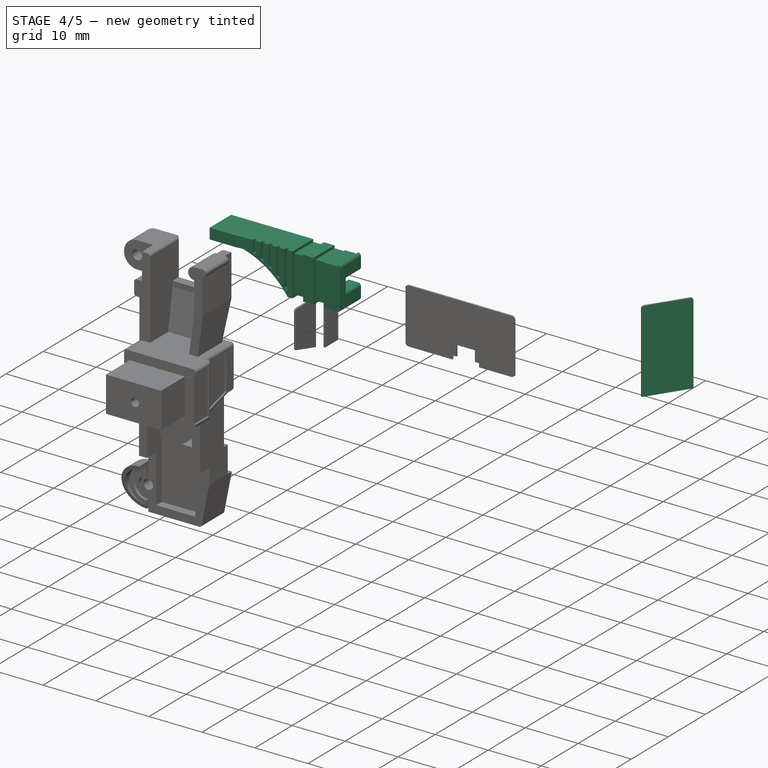
[diagram: stage 4 of 5 — iso view after this stage's code; geometry added in this stage tinted green]
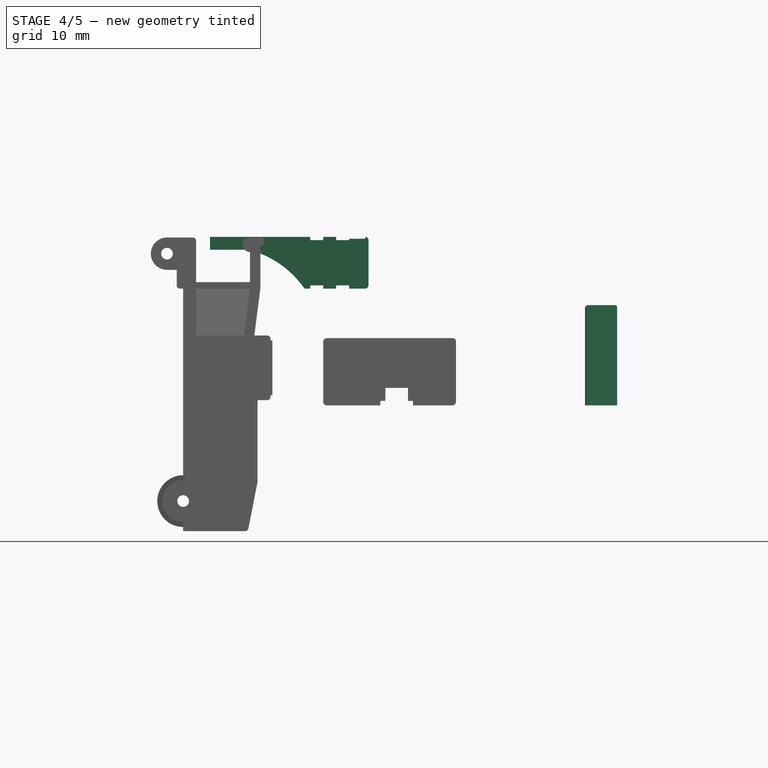
[diagram: stage 4 of 5 — front view after this stage's code; geometry added in this stage tinted green]
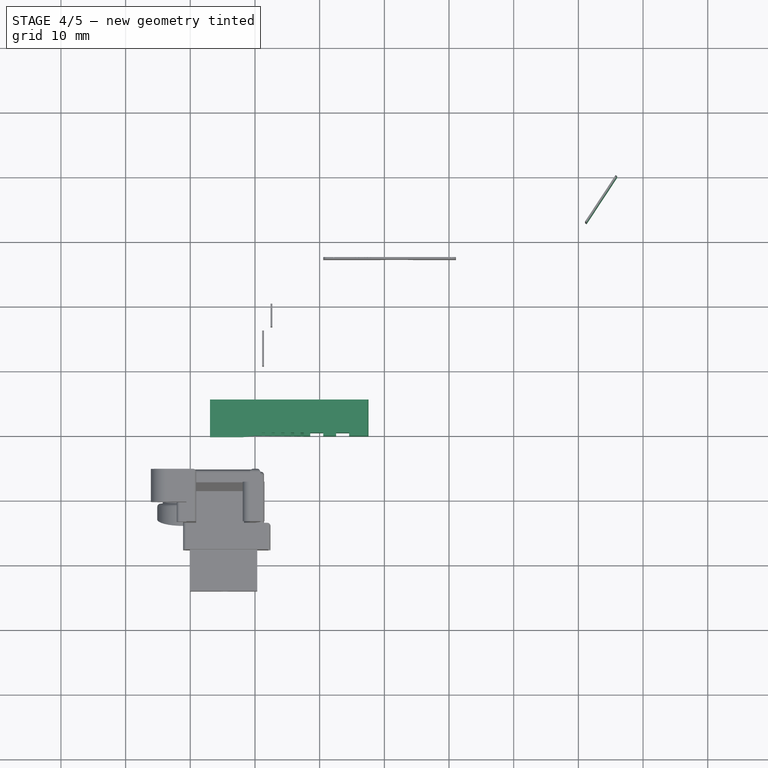
[diagram: stage 4 of 5 — top view after this stage's code; geometry added in this stage tinted green]
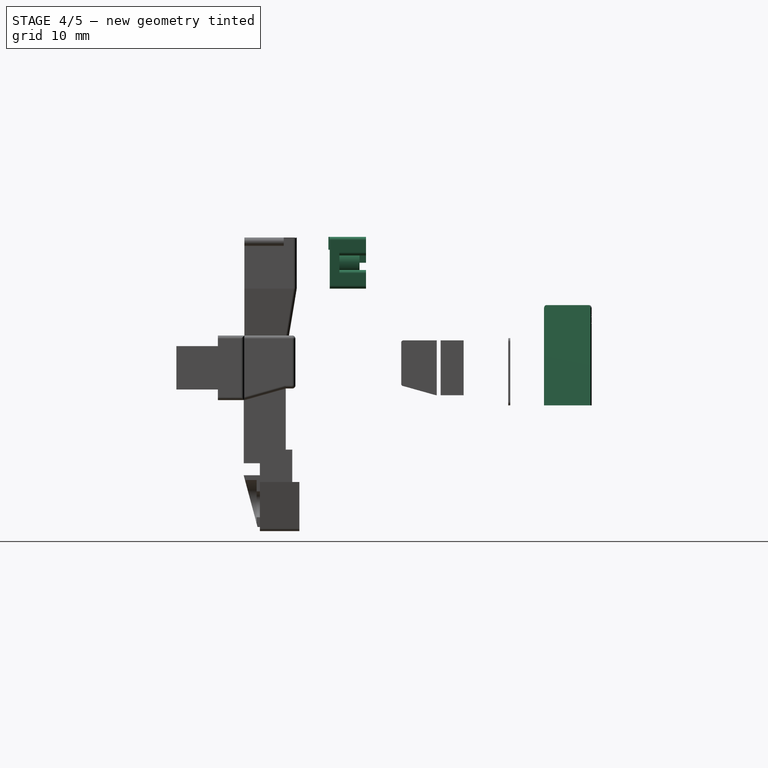
[diagram: stage 4 of 5 — right view after this stage's code; geometry added in this stage tinted green]
FEATURE [PartDesign::Body] Body  label="Upper_Torso_St"
  AllowCompound = false
  BaseFeature = -> Part__Feature
  Group = -> [BaseFeature,Sketch,Pocket,Sketch001,Pocket001]
  Origin = -> Origin
  Tip = -> Pocket001
FEATURE [Part::Refine] Body001  label="Upper_Torso_Stickered"
  Source = -> Body
FEATURE [Part::Feature] Part__Feature001  label="Rigt_Outer_Arm"
  shape: bbox 24.5 x 5.8 x 8 mm, 65 faces (baked)
FEATURE [Image::ImagePlane] Arm_Sticker  label="AS"
  Placement = pos=(5.9,-9,0) rot=(0,0,1;1.5708rad)
  XSize = 11.3963
  YSize = 2.83194
FEATURE [PartDesign::FeatureBase] BaseFeature001
  BaseFeature = -> Part__Feature001
  Suppressed = false
FEATURE [Sketcher::SketchObject] Sketch002
  ArcFitTolerance = 1e-06
  AttachmentSupport = -> [BaseFeature001]
  ExternalGeometry = -> [BaseFeature001]
  FullyConstrained = true
  MakeInternals = false
  MapMode = 5
  Placement = pos=(0,0,10.1) rot=(0,0,1;0rad)
  sketch-geometry (4):
    g0: LineSegment StartX=4.55 StartY=-15.1 StartZ=0 EndX=4.55 EndY=-20.7 EndZ=0
    g1: LineSegment StartX=4.55 StartY=-20.7 StartZ=0 EndX=7.05 EndY=-20.7 EndZ=0
    g2: LineSegment StartX=7.05 StartY=-20.7 StartZ=0 EndX=7.05 EndY=-15.1 EndZ=0
    g3: LineSegment StartX=7.05 StartY=-15.1 StartZ=0 EndX=4.55 EndY=-15.1 EndZ=0
  constraints (10):
    c: Coincident(g0,g1)
    c: Coincident(g1,g2)
    c: Coincident(g2,g3)
    c: Coincident(g3,g0)
    c: Vertical(g0)
    c: Vertical(g2)
    c: Horizontal(g1)
    c: Horizontal(g3)
    c: Coincident(g0,g-6)
    c: Coincident(g2,g-4)
FEATURE [PartDesign::Pocket] Pocket002
  BaseFeature = -> BaseFeature001
  Direction = (0,0,-1)
  Length = 0.3
  Length2 = 5
  Profile = -> Sketch002
  ReferenceAxis = -> Sketch002 [N_Axis]
  Refine = true
  Suppressed = false
  Type = 0
FEATURE [Image::ImagePlane] Leg_Sticker2
  Placement = pos=(54.45,8.8,-8.13) rot=(-0.69,0.21,0.69;2.7372rad)
  XSize = 16.4883
  YSize = 9.69739
FEATURE [Sketcher::SketchObject] Sketch016
  ArcFitTolerance = 1e-06
  AttachmentSupport = -> [Pocket012]
  ExternalGeometry = -> [Pocket012]
  FullyConstrained = true
  MakeInternals = false
  MapMode = 5
  Placement = pos=(22.8132,-15.0274,0) rot=(-0.355993,0.660783,0.660783;3.8256rad)
  sketch-geometry (12):
    g0: LineSegment StartX=-41.7334 StartY=-0.9 StartZ=0 EndX=-41.7334 EndY=-16 EndZ=0
    g1: LineSegment StartX=-41.7334 StartY=-16 StartZ=0 EndX=-33.0334 EndY=-16 EndZ=0
    g2: LineSegment StartX=-33.0334 StartY=-16 StartZ=0 EndX=-33.0334 EndY=-0.9 EndZ=0
    g3: LineSegment StartX=-33.5334 StartY=-0.4 StartZ=0 EndX=-41.2334 EndY=-0.4 EndZ=0
    g4: ArcOfCircle CenterX=-33.5334 CenterY=-0.9 CenterZ=0 NormalX=0 NormalY=0 NormalZ=1 AngleXU=0 Radius=0.5 StartAngle=0 EndAngle=1.5708
    g5: GeomPoint [constr] X=-33.0334 Y=-0.4 Z=0
    g6: ArcOfCircle CenterX=-41.2334 CenterY=-0.9 CenterZ=0 NormalX=0 NormalY=0 NormalZ=1 AngleXU=0 Radius=0.5 StartAngle=1.5708 EndAngle=3.14159
    g7: GeomPoint [constr] X=-41.7334 Y=-0.4 Z=0
    g8: LineSegment [constr] StartX=-41.2334 StartY=-0.4 StartZ=0 EndX=-41.2334 EndY=-0.9 EndZ=0
    g9: LineSegment [constr] StartX=-41.7334 StartY=-0.9 StartZ=0 EndX=-41.2334 EndY=-0.9 EndZ=0
    g10: LineSegment [constr] StartX=-33.5334 StartY=-0.4 StartZ=0 EndX=-33.5334 EndY=-0.9 EndZ=0
    g11: LineSegment [constr] StartX=-33.0334 StartY=-0.9 StartZ=0 EndX=-33.5334 EndY=-0.9 EndZ=0
  constraints (28):
    c: Coincident(g0,g1)
    c: Coincident(g1,g2)
    c: Vertical(g0)
    c: Vertical(g2)
    c: Horizontal(g1)
    c: Horizontal(g3)
    c: PointOnObject(g5,g2)
    c: PointOnObject(g5,g3)
    c: Tangent(g2,g4) = -1.5708
    c: Tangent(g3,g4) = -1.5708
    c: PointOnObject(g7,g0)
    c: PointOnObject(g7,g3)
    c: Tangent(g0,g6) = -1.5708
    c: Tangent(g3,g6) = -1.5708
    c: Radius(g6) = 0.5
    c: Coincident(g8,g3)
    c: Coincident(g8,g6)
    c: Coincident(g9,g0)
    c: Coincident(g9,g6)
    c: Radius(g4) = 0.5
    c: Coincident(g10,g3)
    c: Coincident(g10,g4)
    c: Coincident(g11,g2)
    c: Coincident(g11,g4)
    c: DistanceY(g-3,g0) = 0.5
    c: DistanceX(g-3,g0) = 1
    c: DistanceX(g1,g1) = 8.7
    c: DistanceY(g0,g0) = 15.1
FEATURE [PartDesign::Pocket] Pocket013
  BaseFeature = -> Pocket012
  Direction = (0.835103,-0.550093,1e-16)
  Length = 0.3
  Length2 = 5
  Profile = -> Sketch016
  ReferenceAxis = -> Sketch016 [N_Axis]
  Refine = true
  Suppressed = false
  Type = 0
FEATURE [PartDesign::Body] Body008  label="Right_Foot_Stickered"
  AllowCompound = false
  BaseFeature = -> Part__Feature004
  Group = -> [BaseFeature004,Sketch015,Pocket012,Sketch016,Pocket013]
  Origin = -> Origin007
  Tip = -> Pocket013
FEATURE [PartDesign::SubShapeBinder] Binder003
  BindCopyOnChange = 0
  BindMode = 0
  ClaimChildren = false
  Context = -> Body009 [Binder003.]
  Fuse = false
  MakeFace = true
  OffsetFill = false
  OffsetIntersection = false
  OffsetJoinType = 0
  OffsetOpenResult = false
  PartialLoad = false
  Refine = true
  Relative = true
  Support = -> [Body008[Pocket013.Face144]]
  _Version = 2
FEATURE [Sketcher::SketchObject] Sketch017
  ArcFitTolerance = 1e-06
  AttachmentSupport = -> [Binder003]
  ExternalGeometry = -> [Binder003]
  FullyConstrained = true
  MakeInternals = false
  MapMode = 5
  Placement = pos=(23.0637,-15.1924,0) rot=(-0.355993,0.660783,0.660783;3.8256rad)
  sketch-geometry (10):
    g0: ArcOfCircle CenterX=-41.2334 CenterY=-0.9 CenterZ=0 NormalX=0 NormalY=0 NormalZ=1 AngleXU=0 Radius=0.45 StartAngle=1.5708 EndAngle=3.14159
    g1: ArcOfCircle CenterX=-33.5334 CenterY=-0.9 CenterZ=0 NormalX=0 NormalY=0 NormalZ=1 AngleXU=0 Radius=0.45 StartAngle=0 EndAngle=1.5708
    g2: LineSegment StartX=-33.0834 StartY=-0.9 StartZ=0 EndX=-33.0834 EndY=-15.95 EndZ=0
    g3: LineSegment StartX=-33.0834 StartY=-15.95 StartZ=0 EndX=-41.6834 EndY=-15.95 EndZ=0
    g4: LineSegment StartX=-41.6834 StartY=-15.95 StartZ=0 EndX=-41.6834 EndY=-0.9 EndZ=0
    g5: LineSegment StartX=-41.2334 StartY=-0.45 StartZ=0 EndX=-33.5334 EndY=-0.45 EndZ=0
    g6: LineSegment [constr] StartX=-41.2334 StartY=-0.45 StartZ=0 EndX=-41.2334 EndY=-0.9 EndZ=0
    g7: LineSegment [constr] StartX=-41.6834 StartY=-0.9 StartZ=0 EndX=-41.2334 EndY=-0.9 EndZ=0
    g8: LineSegment [constr] StartX=-33.0834 StartY=-0.9 StartZ=0 EndX=-33.5334 EndY=-0.9 EndZ=0
    g9: LineSegment [constr] StartX=-33.5334 StartY=-0.45 StartZ=0 EndX=-33.5334 EndY=-0.9 EndZ=0
  constraints (26):
    c: Coincident(g2,g1)
    c: Vertical(g2)
    c: Coincident(g3,g2)
    c: Horizontal(g3)
    c: Coincident(g4,g3)
    c: Coincident(g4,g0)
    c: Vertical(g4)
    c: Coincident(g5,g0)
    c: Coincident(g5,g1)
    c: Horizontal(g5)
    c: Coincident(g1,g-4)
    c: Coincident(g0,g-7)
    c: Coincident(g6,g0)
    c: Coincident(g6,g0)
    c: Coincident(g7,g0)
    c: Coincident(g7,g0)
    c: Coincident(g8,g1)
    c: Coincident(g8,g1)
    c: Coincident(g9,g1)
    c: Coincident(g9,g1)
    c: Horizontal(g8)
    c: Horizontal(g7)
    c: Vertical(g6)
    c: Vertical(g9)
    c: DistanceY(g1,g-4) = 0.05
    c: DistanceY(g-8,g2) = 0.05
FEATURE [PartDesign::Pad] Pad003
  Direction = (-0.835103,0.550093,2e-16)
  Length = 0.3
  Length2 = 10
  Profile = -> Sketch017
  ReferenceAxis = -> Sketch017 [N_Axis]
  Refine = true
  Suppressed = false
  Type = 0
FEATURE [Sketcher::SketchObject] Sketch018
  ArcFitTolerance = 1e-06
  AttachmentSupport = -> [Pad003]
  FullyConstrained = false
  MakeInternals = false
  MapMode = 5
  Placement = pos=(22.8132,-15.0274,-9e-15) rot=(-0.355993,0.660783,0.660783;3.8256rad)
  sketch-geometry (83):
    g0: Circle CenterX=-34.2464 CenterY=-2.30084 CenterZ=0 NormalX=0 NormalY=0 NormalZ=1 AngleXU=0 Radius=0.572739
    g1: LineSegment StartX=-38.0566 StartY=-8.6656 StartZ=0 EndX=-38.0566 EndY=-11.5115 EndZ=0
    g2: LineSegment StartX=-38.0566 StartY=-11.5115 StartZ=0 EndX=-39.0164 EndY=-10.0274 EndZ=0
    g3: LineSegment StartX=-39.0164 StartY=-10.0274 StartZ=0 EndX=-38.0566 EndY=-8.6656 EndZ=0
    g4: LineSegment StartX=-35.8163 StartY=-8.66557 StartZ=0 EndX=-35.8163 EndY=-11.5013 EndZ=0
    g5: LineSegment StartX=-35.8163 StartY=-11.5013 StartZ=0 EndX=-36.7851 EndY=-10.0305 EndZ=0
    g6: LineSegment StartX=-36.7851 StartY=-10.0305 StartZ=0 EndX=-35.8163 EndY=-8.66557 EndZ=0
    g7: Circle CenterX=-34.2464 CenterY=-2.30084 CenterZ=0 NormalX=0 NormalY=0 NormalZ=1 AngleXU=0 Radius=0.583823
    g8: ArcOfCircle CenterX=-41.6971 CenterY=-3.53059 CenterZ=0 NormalX=0 NormalY=0 NormalZ=-1 AngleXU=-3.14159 Radius=0.00720215 StartAngle=1.5708 EndAngle=4.71239
    g9: LineSegment StartX=-36.9037 StartY=-3.52338 StartZ=0 EndX=-41.6971 EndY=-3.52338 EndZ=0
    g10: ArcOfCircle CenterX=-36.9037 CenterY=-3.53059 CenterZ=0 NormalX=0 NormalY=0 NormalZ=-1 AngleXU=0 Radius=0.00720215 StartAngle=1.5708 EndAngle=2.45879
    g11: LineSegment StartX=-35.0436 StartY=-5.80625 StartZ=0 EndX=-36.8981 EndY=-3.52604 EndZ=0
    g12: ArcOfCircle CenterX=-35.0492 CenterY=-5.81079 CenterZ=0 NormalX=0 NormalY=0 NormalZ=-1 AngleXU=0.887994 Radius=0.00720215 StartAngle=1.5708 EndAngle=2.2536
    g13: LineSegment StartX=-35.0419 StartY=-15.975 StartZ=0 EndX=-35.0419 EndY=-5.81079 EndZ=0
    g14: ArcOfCircle CenterX=-35.0492 CenterY=-15.975 CenterZ=0 NormalX=0 NormalY=0 NormalZ=-1 AngleXU=1.5708 Radius=0.00720215 StartAngle=1.5708 EndAngle=4.71239
    g15: LineSegment StartX=-35.0564 StartY=-15.975 StartZ=0 EndX=-35.0564 EndY=-5.81335 EndZ=0
    g16: LineSegment StartX=-35.0564 StartY=-5.81335 StartZ=0 EndX=-36.9071 EndY=-3.53779 EndZ=0
    g17: LineSegment StartX=-36.9071 StartY=-3.53779 StartZ=0 EndX=-41.6971 EndY=-3.53779 EndZ=0
    g18: ArcOfCircle CenterX=-33.8614 CenterY=-15.9448 CenterZ=0 NormalX=0 NormalY=0 NormalZ=-1 AngleXU=1.5708 Radius=0.00720215 StartAngle=1.5708 EndAngle=4.71239
    g19: LineSegment StartX=-33.8686 StartY=-5.44948 StartZ=0 EndX=-33.8686 EndY=-15.9448 EndZ=0
    g20: LineSegment StartX=-36.5594 StartY=-1.98262 StartZ=0 EndX=-33.8686 EndY=-5.44948 EndZ=0
    g21: LineSegment StartX=-41.6933 StartY=-1.98262 StartZ=0 EndX=-36.5594 EndY=-1.98262 EndZ=0
    g22: ArcOfCircle CenterX=-41.6933 CenterY=-1.97541 CenterZ=0 NormalX=0 NormalY=0 NormalZ=-1 AngleXU=-3.14159 Radius=0.00720215 StartAngle=1.5708 EndAngle=4.71239
    g23: LineSegment StartX=-41.6933 StartY=-1.96821 StartZ=0 EndX=-36.5559 EndY=-1.96821 EndZ=0
    g24: ArcOfCircle CenterX=-36.5559 CenterY=-1.97541 CenterZ=0 NormalX=0 NormalY=0 NormalZ=-1 AngleXU=0 Radius=0.00720215 StartAngle=1.5708 EndAngle=2.48158
    g25: LineSegment StartX=-36.5502 StartY=-1.971 StartZ=0 EndX=-33.8557 EndY=-5.4426 EndZ=0
    g26: ArcOfCircle CenterX=-33.8614 CenterY=-5.44701 CenterZ=0 NormalX=0 NormalY=0 NormalZ=-1 AngleXU=0.91078 Radius=0.00720215 StartAngle=1.5708 EndAngle=2.23081
    g27: LineSegment StartX=-33.8542 StartY=-5.44701 StartZ=0 EndX=-33.8542 EndY=-15.9448 EndZ=0
    g28: ArcOfCircle CenterX=-41.7059 CenterY=-2.24458 CenterZ=0 NormalX=0 NormalY=0 NormalZ=-1 AngleXU=-3.14159 Radius=0.00720215 StartAngle=1.5708 EndAngle=4.71239
    g29: LineSegment StartX=-36.6737 StartY=-2.23738 StartZ=0 EndX=-41.7059 EndY=-2.23738 EndZ=0
    g30: ArcOfCircle CenterX=-36.6737 CenterY=-2.24458 CenterZ=0 NormalX=0 NormalY=0 NormalZ=-1 AngleXU=0 Radius=0.00720215 StartAngle=1.5708 EndAngle=2.47997
    g31: LineSegment StartX=-34.1319 StartY=-5.497 StartZ=0 EndX=-36.668 EndY=-2.24016 EndZ=0
    g32: ArcOfCircle CenterX=-34.1376 CenterY=-5.50143 CenterZ=0 NormalX=0 NormalY=0 NormalZ=-1 AngleXU=0.909171 Radius=0.00720215 StartAngle=1.5708 EndAngle=2.23242
    g33: LineSegment StartX=-34.1304 StartY=-15.9568 StartZ=0 EndX=-34.1304 EndY=-5.50142 EndZ=0
    g34: ArcOfCircle CenterX=-34.1376 CenterY=-15.9568 CenterZ=0 NormalX=0 NormalY=0 NormalZ=-1 AngleXU=1.5708 Radius=0.00720215 StartAngle=1.5708 EndAngle=4.71239
    g35: LineSegment StartX=-34.1448 StartY=-15.9568 StartZ=0 EndX=-34.1448 EndY=-5.5039 EndZ=0
    g36: LineSegment StartX=-34.1448 StartY=-5.5039 StartZ=0 EndX=-36.6773 EndY=-2.25179 EndZ=0
    g37: LineSegment StartX=-36.6773 StartY=-2.25179 StartZ=0 EndX=-41.7059 EndY=-2.25179 EndZ=0
    g38: ArcOfCircle CenterX=-34.8302 CenterY=-15.9702 CenterZ=0 NormalX=0 NormalY=0 NormalZ=-1 AngleXU=1.5708 Radius=0.00720215 StartAngle=1.5708 EndAngle=4.71239
    g39: LineSegment StartX=-34.8374 StartY=-5.64373 StartZ=0 EndX=-34.8374 EndY=-15.9702 EndZ=0
    g40: LineSegment StartX=-36.8079 StartY=-3.25185 StartZ=0 EndX=-34.8374 EndY=-5.64373 EndZ=0
    g41: LineSegment StartX=-41.6968 StartY=-3.25185 StartZ=0 EndX=-36.8079 EndY=-3.25185 EndZ=0
    g42: ArcOfCircle CenterX=-41.6968 CenterY=-3.24465 CenterZ=0 NormalX=0 NormalY=0 NormalZ=-1 AngleXU=-3.14159 Radius=0.00720215 StartAngle=1.5708 EndAngle=4.71239
    g43: LineSegment StartX=-41.6968 StartY=-3.23744 StartZ=0 EndX=-36.8045 EndY=-3.23744 EndZ=0
    g44: ArcOfCircle CenterX=-36.8045 CenterY=-3.24465 CenterZ=0 NormalX=0 NormalY=0 NormalZ=-1 AngleXU=0 Radius=0.00720215 StartAngle=1.5708 EndAngle=2.45249
    g45: LineSegment StartX=-36.799 StartY=-3.24007 StartZ=0 EndX=-34.8247 EndY=-5.63657 EndZ=0
    g46: ArcOfCircle CenterX=-34.8302 CenterY=-5.64115 CenterZ=0 NormalX=0 NormalY=0 NormalZ=-1 AngleXU=0.881695 Radius=0.00720215 StartAngle=1.5708 EndAngle=2.2599
    g47: LineSegment StartX=-34.823 StartY=-5.64114 StartZ=0 EndX=-34.823 EndY=-15.9702 EndZ=0
    g48: ArcOfCircle CenterX=-37.7184 CenterY=-15.975 CenterZ=0 NormalX=0 NormalY=0 NormalZ=-1 AngleXU=1.5708 Radius=0.00382863 StartAngle=1.5708 EndAngle=4.71239
    g49: LineSegment StartX=-37.7223 StartY=-4.54675 StartZ=0 EndX=-37.7223 EndY=-15.975 EndZ=0
    g50: LineSegment StartX=-39.5854 StartY=-4.54675 StartZ=0 EndX=-37.7223 EndY=-4.54675 EndZ=0
    g51: LineSegment StartX=-39.5854 StartY=-15.9928 StartZ=0 EndX=-39.5854 EndY=-4.54675 EndZ=0
    g52: ArcOfCircle CenterX=-39.5893 CenterY=-15.9928 CenterZ=0 NormalX=0 NormalY=0 NormalZ=-1 AngleXU=1.5708 Radius=0.00382863 StartAngle=1.5708 EndAngle=4.71239
    g53: LineSegment StartX=-39.5931 StartY=-15.9928 StartZ=0 EndX=-39.5931 EndY=-4.54292 EndZ=0
    g54: ArcOfCircle CenterX=-39.5893 CenterY=-4.54292 CenterZ=0 NormalX=0 NormalY=0 NormalZ=-1 AngleXU=-1.5708 Radius=0.00382863 StartAngle=1.5708 EndAngle=3.14159
    g55: LineSegment StartX=-39.5893 StartY=-4.53909 StartZ=0 EndX=-37.7184 EndY=-4.53909 EndZ=0
    g56: ArcOfCircle CenterX=-37.7184 CenterY=-4.54292 CenterZ=0 NormalX=0 NormalY=0 NormalZ=-1 AngleXU=0 Radius=0.00382863 StartAngle=1.5708 EndAngle=3.14159
    g57: LineSegment StartX=-37.7146 StartY=-4.54292 StartZ=0 EndX=-37.7146 EndY=-15.975 EndZ=0
    g58: ArcOfCircle CenterX=-37.4883 CenterY=-4.71828 CenterZ=0 NormalX=0 NormalY=0 NormalZ=-1 AngleXU=-1.5708 Radius=0.00382863 StartAngle=1.5708 EndAngle=3.14159
    g59: LineSegment StartX=-37.4921 StartY=-4.71828 StartZ=0 EndX=-37.4921 EndY=-15.9669 EndZ=0
    g60: ArcOfCircle CenterX=-37.4883 CenterY=-15.9669 CenterZ=0 NormalX=0 NormalY=0 NormalZ=-1 AngleXU=1.5708 Radius=0.00382863 StartAngle=1.5708 EndAngle=4.71239
    g61: LineSegment StartX=-37.4845 StartY=-4.72211 StartZ=0 EndX=-37.4845 EndY=-15.9669 EndZ=0
    g62: LineSegment StartX=-37.2572 StartY=-4.72211 StartZ=0 EndX=-37.4845 EndY=-4.72211 EndZ=0
    g63: LineSegment StartX=-35.5131 StartY=-6.8234 StartZ=0 EndX=-37.2572 EndY=-4.72211 EndZ=0
    g64: LineSegment StartX=-35.5131 StartY=-15.9731 StartZ=0 EndX=-35.5131 EndY=-6.8234 EndZ=0
    g65: ArcOfCircle CenterX=-35.5093 CenterY=-15.9731 CenterZ=0 NormalX=0 NormalY=0 NormalZ=-1 AngleXU=1.5708 Radius=0.00382863 StartAngle=1.5708 EndAngle=4.71239
    g66: LineSegment StartX=-35.5055 StartY=-15.9731 StartZ=0 EndX=-35.5055 EndY=-6.82202 EndZ=0
    g67: ArcOfCircle CenterX=-35.5093 CenterY=-6.82202 CenterZ=0 NormalX=0 NormalY=0 NormalZ=-1 AngleXU=0.878024 Radius=0.00382863 StartAngle=1.5708 EndAngle=2.26357
    g68: LineSegment StartX=-35.5064 StartY=-6.81958 StartZ=0 EndX=-37.2525 EndY=-4.71584 EndZ=0
    g69: ArcOfCircle CenterX=-37.2554 CenterY=-4.71828 CenterZ=0 NormalX=0 NormalY=0 NormalZ=-1 AngleXU=0 Radius=0.00382863 StartAngle=1.5708 EndAngle=2.44882
    g70: LineSegment StartX=-37.2554 StartY=-4.71445 StartZ=0 EndX=-37.4883 EndY=-4.71445 EndZ=0
    g71: LineSegment StartX=-35.8051 StartY=-8.66557 StartZ=0 EndX=-35.8051 EndY=-11.5013 EndZ=0
    g72: ArcOfCircle CenterX=-35.8163 CenterY=-11.5013 CenterZ=0 NormalX=0 NormalY=0 NormalZ=1 AngleXU=2.15325 Radius=0.0111638 StartAngle=1.5708 EndAngle=4.12993
    g73: LineSegment StartX=-35.8256 StartY=-11.5075 StartZ=0 EndX=-36.7944 EndY=-10.0366 EndZ=0
    g74: ArcOfCircle CenterX=-36.7851 CenterY=-10.0305 CenterZ=0 NormalX=0 NormalY=0 NormalZ=1 AngleXU=0.953534 Radius=0.0111638 StartAngle=1.5708 EndAngle=2.77051
    g75: LineSegment StartX=-36.7942 StartY=-10.024 StartZ=0 EndX=-35.8254 EndY=-8.6591 EndZ=0
    g76: ArcOfCircle CenterX=-35.8163 CenterY=-8.66557 CenterZ=0 NormalX=0 NormalY=0 NormalZ=1 AngleXU=-1.5708 Radius=0.0111638 StartAngle=1.5708 EndAngle=4.09513
    g77: LineSegment StartX=-38.066 StartY=-11.5176 StartZ=0 EndX=-39.0258 EndY=-10.0334 EndZ=0
    g78: ArcOfCircle CenterX=-39.0164 CenterY=-10.0274 CenterZ=0 NormalX=0 NormalY=0 NormalZ=1 AngleXU=0.956863 Radius=0.0111638 StartAngle=1.5708 EndAngle=2.75876
    g79: LineSegment StartX=-39.0255 StartY=-10.0209 StartZ=0 EndX=-38.0658 EndY=-8.65917 EndZ=0
    g80: ArcOfCircle CenterX=-38.0566 CenterY=-8.6656 CenterZ=0 NormalX=0 NormalY=0 NormalZ=1 AngleXU=-1.5708 Radius=0.0111638 StartAngle=1.5708 EndAngle=4.09846
    g81: LineSegment StartX=-38.0455 StartY=-8.6656 StartZ=0 EndX=-38.0455 EndY=-11.5115 EndZ=0
    g82: ArcOfCircle CenterX=-38.0566 CenterY=-11.5115 CenterZ=0 NormalX=0 NormalY=0 NormalZ=1 AngleXU=2.14483 Radius=0.0111638 StartAngle=1.5708 EndAngle=4.13835
  constraints (83):
    c: Vertical(g1)
    c: Coincident(g2,g1)
    c: Coincident(g3,g2)
    c: Coincident(g3,g1)
    c: Vertical(g4)
    c: Coincident(g5,g4)
    c: Coincident(g6,g5)
    c: Coincident(g6,g4)
    c: Tangent(g8,g9) = -1.5708
    c: Tangent(g8,g17) = 1.5708
    c: Tangent(g9,g10) = -1.5708
    c: Tangent(g10,g11) = -1.5708
    c: Tangent(g11,g12) = -1.5708
    c: Tangent(g12,g13) = -1.5708
    c: Tangent(g13,g14) = -1.5708
    c: Tangent(g14,g15) = 1.5708
    c: Coincident(g15,g16)
    c: Coincident(g16,g17)
    c: Tangent(g18,g19) = -1.5708
    c: Tangent(g18,g27) = 1.5708
    c: Coincident(g19,g20)
    c: Coincident(g20,g21)
    c: Tangent(g21,g22) = -1.5708
    c: Tangent(g22,g23) = 1.5708
    c: Tangent(g23,g24) = 1.5708
    c: Tangent(g24,g25) = 1.5708
    c: Tangent(g25,g26) = 1.5708
    c: Tangent(g26,g27) = 1.5708
    c: Tangent(g28,g29) = -1.5708
    c: Tangent(g28,g37) = 1.5708
    c: Tangent(g29,g30) = -1.5708
    c: Tangent(g30,g31) = -1.5708
    c: Tangent(g31,g32) = -1.5708
    c: Tangent(g32,g33) = -1.5708
    c: Tangent(g33,g34) = -1.5708
    c: Tangent(g34,g35) = 1.5708
    c: Coincident(g35,g36)
    c: Coincident(g36,g37)
    c: Tangent(g38,g39) = -1.5708
    c: Tangent(g38,g47) = 1.5708
    c: Coincident(g39,g40)
    c: Coincident(g40,g41)
    c: Tangent(g41,g42) = -1.5708
    c: Tangent(g42,g43) = 1.5708
    c: Tangent(g43,g44) = 1.5708
    c: Tangent(g44,g45) = 1.5708
    c: Tangent(g45,g46) = 1.5708
    c: Tangent(g46,g47) = 1.5708
    c: Tangent(g48,g49) = -1.5708
    c: Tangent(g48,g57) = 1.5708
    c: Coincident(g49,g50)
    c: Coincident(g50,g51)
    c: Tangent(g51,g52) = -1.5708
    c: Tangent(g52,g53) = 1.5708
    c: Tangent(g53,g54) = 1.5708
    c: Tangent(g54,g55) = 1.5708
    c: Tangent(g55,g56) = 1.5708
    c: Tangent(g56,g57) = 1.5708
    c: Tangent(g58,g59) = -1.5708
    c: Tangent(g58,g70) = -1.5708
    c: Tangent(g59,g60) = -1.5708
    c: Tangent(g60,g61) = 1.5708
    c: Coincident(g61,g62)
    c: Coincident(g62,g63)
    c: Coincident(g63,g64)
    c: Tangent(g64,g65) = 1.5708
    c: Tangent(g65,g66) = -1.5708
    c: Tangent(g66,g67) = -1.5708
    c: Tangent(g67,g68) = -1.5708
    c: Tangent(g68,g69) = -1.5708
    c: Tangent(g69,g70) = -1.5708
    c: Tangent(g71,g72) = 1.5708
    c: Tangent(g71,g76) = 1.5708
    c: Tangent(g72,g73) = 1.5708
    c: Tangent(g73,g74) = 1.5708
    c: Tangent(g74,g75) = 1.5708
    c: Tangent(g75,g76) = 1.5708
    c: Tangent(g77,g78) = 1.5708
    c: Tangent(g77,g82) = 1.5708
    c: Tangent(g78,g79) = 1.5708
    c: Tangent(g79,g80) = 1.5708
    c: Tangent(g80,g81) = 1.5708
    c: Tangent(g81,g82) = 1.5708
FEATURE [PartDesign::Pocket] Pocket014
  BaseFeature = -> Pad003
  Direction = (0.835103,-0.550093,0)
  Length = 0.15
  Length2 = 5
  Profile = -> Sketch018
  ReferenceAxis = -> Sketch018 [N_Axis]
  Refine = true
  Suppressed = false
  Type = 0
FEATURE [PartDesign::Body] Body009  label="Sticker2"
  AllowCompound = false
  Group = -> [Binder003,Sketch017,Pad003,Sketch018,Pocket014]
  Origin = -> Origin008
  Tip = -> Pocket014
FEATURE [PartDesign::SubShapeBinder] Binder004
  BindCopyOnChange = 0
  BindMode = 0
  ClaimChildren = false
  Context = -> Body010 [Binder004.]
  Fuse = false
  MakeFace = true
  OffsetFill = false
  OffsetIntersection = false
  OffsetJoinType = 0
  OffsetOpenResult = false
  PartialLoad = false
  Refine = true
  Relative = true
  Support = -> [Body008[Pocket013.Face143]]
  _Version = 2
FEATURE [Sketcher::SketchObject] Sketch019
  ArcFitTolerance = 1e-06
  AttachmentSupport = -> [Binder004]
  ExternalGeometry = -> [Binder004]
  FullyConstrained = true
  MakeInternals = false
  MapMode = 5
  Placement = pos=(0,6.9,-1.7e-15) rot=(0,0.707107,0.707107;3.14159rad)
  sketch-geometry (24):
    g0: LineSegment StartX=-0.55 StartY=-15.4 StartZ=0 EndX=-0.55 EndY=-6.1 EndZ=0
    g1: LineSegment StartX=-1.1 StartY=-5.55 StartZ=0 EndX=-20.5349 EndY=-5.55 EndZ=0
    g2: LineSegment StartX=-21.0849 StartY=-6.1 StartZ=0 EndX=-21.0849 EndY=-15.4 EndZ=0
    g3: LineSegment StartX=-20.5349 StartY=-15.95 StartZ=0 EndX=-14.4276 EndY=-15.95 EndZ=0
    g4: LineSegment StartX=-14.4276 StartY=-15.95 StartZ=0 EndX=-14.4276 EndY=-15.25 EndZ=0
    g5: LineSegment StartX=-14.4276 StartY=-15.25 StartZ=0 EndX=-13.6576 EndY=-15.25 EndZ=0
    g6: LineSegment StartX=-13.6576 StartY=-15.25 StartZ=0 EndX=-13.6576 EndY=-13.25 EndZ=0
    g7: LineSegment StartX=-13.6576 StartY=-13.25 StartZ=0 EndX=-10.1576 EndY=-13.25 EndZ=0
    g8: LineSegment StartX=-10.1576 StartY=-13.25 StartZ=0 EndX=-10.1576 EndY=-15.25 EndZ=0
    g9: LineSegment StartX=-10.1576 StartY=-15.25 StartZ=0 EndX=-9.38764 EndY=-15.25 EndZ=0
    g10: LineSegment StartX=-9.38764 StartY=-15.25 StartZ=0 EndX=-9.38764 EndY=-15.95 EndZ=0
    g11: LineSegment StartX=-9.38764 StartY=-15.95 StartZ=0 EndX=-1.1 EndY=-15.95 EndZ=0
    g12: ArcOfCircle CenterX=-1.1 CenterY=-15.4 CenterZ=0 NormalX=0 NormalY=0 NormalZ=1 AngleXU=0 Radius=0.55 StartAngle=4.71239 EndAngle=6.28319
    g13: ArcOfCircle CenterX=-1.1 CenterY=-6.1 CenterZ=0 NormalX=0 NormalY=0 NormalZ=1 AngleXU=0 Radius=0.55 StartAngle=0 EndAngle=1.5708
    g14: ArcOfCircle CenterX=-20.5349 CenterY=-6.1 CenterZ=0 NormalX=0 NormalY=0 NormalZ=1 AngleXU=0 Radius=0.55 StartAngle=1.5708 EndAngle=3.14159
    g15: LineSegment [constr] StartX=-1.1 StartY=-15.4 StartZ=0 EndX=-1.1 EndY=-15.95 EndZ=0
    g16: LineSegment [constr] StartX=-1.1 StartY=-15.4 StartZ=0 EndX=-0.55 EndY=-15.4 EndZ=0
    g17: LineSegment [constr] StartX=-1.1 StartY=-6.1 StartZ=0 EndX=-0.55 EndY=-6.1 EndZ=0
    g18: LineSegment [constr] StartX=-1.1 StartY=-6.1 StartZ=0 EndX=-1.1 EndY=-5.55 EndZ=0
    g19: LineSegment [constr] StartX=-20.5349 StartY=-5.55 StartZ=0 EndX=-20.5349 EndY=-6.1 EndZ=0
    g20: LineSegment [constr] StartX=-20.5349 StartY=-6.1 StartZ=0 EndX=-21.0849 EndY=-6.1 EndZ=0
    g21: ArcOfCircle CenterX=-20.5349 CenterY=-15.4 CenterZ=0 NormalX=0 NormalY=0 NormalZ=1 AngleXU=0 Radius=0.55 StartAngle=3.14159 EndAngle=4.71239
    g22: LineSegment [constr] StartX=-20.5349 StartY=-15.4 StartZ=0 EndX=-21.0849 EndY=-15.4 EndZ=0
    g23: LineSegment [constr] StartX=-20.5349 StartY=-15.4 StartZ=0 EndX=-20.5349 EndY=-15.95 EndZ=0
  constraints (64):
    c: Vertical(g0)
    c: Horizontal(g1)
    c: Vertical(g2)
    c: Horizontal(g3)
    c: Coincident(g4,g3)
    c: Vertical(g4)
    c: Coincident(g5,g4)
    c: Horizontal(g5)
    c: Coincident(g6,g5)
    c: Vertical(g6)
    c: Coincident(g7,g6)
    c: Horizontal(g7)
    c: Coincident(g8,g7)
    c: Vertical(g8)
    c: Coincident(g9,g8)
    c: Horizontal(g9)
    c: Coincident(g10,g9)
    c: Vertical(g10)
    c: Coincident(g11,g10)
    c: Horizontal(g11)
    c: Coincident(g12,g11)
    c: Coincident(g12,g0)
    c: Coincident(g13,g0)
    c: Coincident(g13,g1)
    c: Coincident(g14,g1)
    c: Coincident(g14,g2)
    c: Coincident(g14,g-6)
    c: Coincident(g13,g-3)
    c: Coincident(g12,g-18)
    c: DistanceX(g-16,g9) = 0.05
    c: DistanceX(g-15,g8) = 0.05
    c: DistanceX(g5,g-12) = 0.05
    c: DistanceX(g4,g-11) = 0.05
    c: DistanceY(g-11,g4) = 0.05
    c: DistanceY(g-10,g3) = 0.05
    c: DistanceY(g-13,g6) = 0.05
    c: DistanceY(g-15,g8) = 0.05
    c: Coincident(g15,g12)
    c: Coincident(g16,g12)
    c: Coincident(g16,g0)
    c: Horizontal(g16)
    c: Coincident(g15,g11)
    c: Vertical(g15)
    c: DistanceY(g-18,g11) = 0.05
    c: Coincident(g17,g13)
    c: Coincident(g17,g0)
    c: Coincident(g18,g13)
    c: Coincident(g18,g1)
    c: Horizontal(g17)
    c: Vertical(g18)
    c: Coincident(g19,g1)
    c: Coincident(g19,g14)
    c: Coincident(g20,g14)
    c: Coincident(g20,g2)
    c: Vertical(g19)
    c: Horizontal(g20)
    c: Coincident(g21,g2)
    c: Coincident(g21,g3)
    c: Coincident(g21,g-8)
    c: Coincident(g22,g21)
    c: Coincident(g22,g2)
    c: Coincident(g23,g21)
    c: Coincident(g23,g3)
    c: Vertical(g23)
FEATURE [PartDesign::Pad] Pad004
  Direction = (0,1,-2e-16)
  Length = 0.3
  Length2 = 10
  Profile = -> Sketch019
  ReferenceAxis = -> Sketch019 [N_Axis]
  Refine = true
  Suppressed = false
  Type = 0
FEATURE [Sketcher::SketchObject] Sketch020
  ArcFitTolerance = 1e-06
  AttachmentSupport = -> [Pad004]
  FullyConstrained = false
  MakeInternals = false
  MapMode = 5
  Placement = pos=(0,7.2,-1.7e-15) rot=(0,0.707107,0.707107;3.14159rad)
  sketch-geometry (186):
    g0-g12: Circle [constr] x13 (B-spline internal-alignment scaffolding for g13; pole/knot coordinates omitted)
    g13: BSplineCurve PolesCount=13 KnotsCount=11 Degree=3 IsPeriodic=0
    g14-g24: GeomPoint [constr] x11 (B-spline internal-alignment scaffolding for g13; pole/knot coordinates omitted)
    g25-g37: Circle [constr] x13 (B-spline internal-alignment scaffolding for g38; pole/knot coordinates omitted)
    g38: BSplineCurve PolesCount=13 KnotsCount=11 Degree=3 IsPeriodic=0
    g39-g49: GeomPoint [constr] x11 (B-spline internal-alignment scaffolding for g38; pole/knot coordinates omitted)
    g50-g62: Circle [constr] x13 (B-spline internal-alignment scaffolding for g63; pole/knot coordinates omitted)
    g63: BSplineCurve PolesCount=13 KnotsCount=11 Degree=3 IsPeriodic=0
    g64-g74: GeomPoint [constr] x11 (B-spline internal-alignment scaffolding for g63; pole/knot coordinates omitted)
    g75-g87: Circle [constr] x13 (B-spline internal-alignment scaffolding for g88; pole/knot coordinates omitted)
    g88: BSplineCurve PolesCount=13 KnotsCount=11 Degree=3 IsPeriodic=0
    g89-g99: GeomPoint [constr] x11 (B-spline internal-alignment scaffolding for g88; pole/knot coordinates omitted)
    g100-g112: Circle [constr] x13 (B-spline internal-alignment scaffolding for g113; pole/knot coordinates omitted)
    g113: BSplineCurve PolesCount=13 KnotsCount=11 Degree=3 IsPeriodic=0
    g114-g124: GeomPoint [constr] x11 (B-spline internal-alignment scaffolding for g113; pole/knot coordinates omitted)
    g125-g137: Circle [constr] x13 (B-spline internal-alignment scaffolding for g138; pole/knot coordinates omitted)
    g138: BSplineCurve PolesCount=13 KnotsCount=11 Degree=3 IsPeriodic=0
    g139-g149: GeomPoint [constr] x11 (B-spline internal-alignment scaffolding for g138; pole/knot coordinates omitted)
    g150: ArcOfCircle CenterX=-2.1503 CenterY=-5.53799 CenterZ=0 NormalX=0 NormalY=0 NormalZ=-1 AngleXU=-1.5708 Radius=0.0105844 StartAngle=1.5708 EndAngle=4.71239
    g151: LineSegment StartX=-2.13971 StartY=-12.0505 StartZ=0 EndX=-2.13971 EndY=-5.53799 EndZ=0
    g152: ArcOfCircle CenterX=-2.1503 CenterY=-12.0505 CenterZ=0 NormalX=0 NormalY=0 NormalZ=-1 AngleXU=1.5708 Radius=0.0105844 StartAngle=1.5708 EndAngle=1.73023
    g153: ArcOfCircle CenterX=-2.96579 CenterY=-11.9194 CenterZ=0 NormalX=0 NormalY=0 NormalZ=1 AngleXU=0 Radius=0.836559 StartAngle=4.78018 EndAngle=6.12375
    g154: ArcOfCircle CenterX=-2.90985 CenterY=-12.7434 CenterZ=0 NormalX=0 NormalY=0 NormalZ=-1 AngleXU=3.0738 Radius=0.0105844 StartAngle=1.5708 EndAngle=1.63859
    g155: LineSegment StartX=-19.416 StartY=-12.754 StartZ=0 EndX=-2.90985 EndY=-12.754 EndZ=0
    g156: ArcOfCircle CenterX=-19.4917 CenterY=-11.7826 CenterZ=0 NormalX=0 NormalY=0 NormalZ=1 AngleXU=0 Radius=0.974395 StartAngle=3.32806 EndAngle=4.79007
    g157: ArcOfCircle CenterX=-20.4388 CenterY=-11.9612 CenterZ=0 NormalX=0 NormalY=0 NormalZ=-1 AngleXU=-1.75727 Radius=0.0105844 StartAngle=1.5708 EndAngle=1.75727
    g158: LineSegment StartX=-20.4494 StartY=-5.53345 StartZ=0 EndX=-20.4494 EndY=-11.9612 EndZ=0
    g159: ArcOfCircle CenterX=-20.4388 CenterY=-5.53345 CenterZ=0 NormalX=0 NormalY=0 NormalZ=-1 AngleXU=-1.5708 Radius=0.0105844 StartAngle=1.5708 EndAngle=4.71239
    g160: LineSegment StartX=-20.4282 StartY=-5.53345 StartZ=0 EndX=-20.4282 EndY=-11.9603 EndZ=0
    g161: ArcOfCircle CenterX=-19.4917 CenterY=-11.7826 CenterZ=0 NormalX=0 NormalY=0 NormalZ=1 AngleXU=0 Radius=0.953227 StartAngle=3.3291 EndAngle=4.7905
    g162: ArcOfCircle CenterX=-19.4165 CenterY=-12.7434 CenterZ=0 NormalX=0 NormalY=0 NormalZ=-1 AngleXU=-0.078106 Radius=0.0105844 StartAngle=1.5708 EndAngle=1.6489
    g163: LineSegment StartX=-19.4165 StartY=-12.7329 StartZ=0 EndX=-2.91021 EndY=-12.7329 EndZ=0
    g164: ArcOfCircle CenterX=-2.96579 CenterY=-11.9194 CenterZ=0 NormalX=0 NormalY=0 NormalZ=1 AngleXU=0 Radius=0.815391 StartAngle=4.78062 EndAngle=6.12272
    g165: LineSegment StartX=-2.16088 StartY=-12.0496 StartZ=0 EndX=-2.16088 EndY=-5.53799 EndZ=0
    g166: ArcOfCircle CenterX=-13.6305 CenterY=-13.8607 CenterZ=0 NormalX=0 NormalY=0 NormalZ=-1 AngleXU=-0.223186 Radius=0.00613283 StartAngle=1.5708 EndAngle=4.71239
    g167: LineSegment StartX=-20.1073 StartY=-15.337 StartZ=0 EndX=-13.6292 EndY=-13.8667 EndZ=0
    g168: ArcOfCircle CenterX=-20.1087 CenterY=-15.331 CenterZ=0 NormalX=0 NormalY=0 NormalZ=-1 AngleXU=2.91841 Radius=0.00613283 StartAngle=1.5708 EndAngle=3.36478
    g169: LineSegment StartX=-20.1148 StartY=-13.2576 StartZ=0 EndX=-20.1148 EndY=-15.331 EndZ=0
    g170: ArcOfCircle CenterX=-20.1087 CenterY=-13.2576 CenterZ=0 NormalX=0 NormalY=0 NormalZ=-1 AngleXU=-1.5708 Radius=0.00613283 StartAngle=1.5708 EndAngle=3.14159
    g171: LineSegment StartX=-13.6478 StartY=-13.2515 StartZ=0 EndX=-20.1087 EndY=-13.2515 EndZ=0
    g172: ArcOfCircle CenterX=-13.6478 CenterY=-13.2576 CenterZ=0 NormalX=0 NormalY=0 NormalZ=-1 AngleXU=0 Radius=0.00613283 StartAngle=1.5708 EndAngle=4.71239
    g173: LineSegment StartX=-13.6478 StartY=-13.2637 StartZ=0 EndX=-20.1026 EndY=-13.2637 EndZ=0
    g174: LineSegment StartX=-20.1026 StartY=-13.2637 StartZ=0 EndX=-20.1026 EndY=-15.3233 EndZ=0
    g175: LineSegment StartX=-20.1026 StartY=-15.3233 StartZ=0 EndX=-13.6319 EndY=-13.8547 EndZ=0
    g176: ArcOfCircle CenterX=-13.6433 CenterY=-13.4664 CenterZ=0 NormalX=0 NormalY=0 NormalZ=-1 AngleXU=0 Radius=0.00289187 StartAngle=1.5708 EndAngle=4.71239
    g177: LineSegment StartX=-19.8956 StartY=-13.4693 StartZ=0 EndX=-13.6433 EndY=-13.4693 EndZ=0
    g178: LineSegment StartX=-19.8956 StartY=-14.9974 StartZ=0 EndX=-19.8956 EndY=-13.4693 EndZ=0
    g179: LineSegment StartX=-13.6458 StartY=-13.6601 StartZ=0 EndX=-19.8956 EndY=-14.9974 EndZ=0
    g180: ArcOfCircle CenterX=-13.6452 CenterY=-13.6629 CenterZ=0 NormalX=0 NormalY=0 NormalZ=-1 AngleXU=-0.210797 Radius=0.00289187 StartAngle=1.5708 EndAngle=4.71239
    g181: LineSegment StartX=-13.6446 StartY=-13.6657 StartZ=0 EndX=-19.8979 EndY=-15.0038 EndZ=0
    g182: ArcOfCircle CenterX=-19.8985 CenterY=-15.0009 CenterZ=0 NormalX=0 NormalY=0 NormalZ=-1 AngleXU=2.9308 Radius=0.00289187 StartAngle=1.5708 EndAngle=3.35239
    g183: LineSegment StartX=-19.9014 StartY=-15.0009 StartZ=0 EndX=-19.9014 EndY=-13.4664 EndZ=0
    g184: ArcOfCircle CenterX=-19.8985 CenterY=-13.4664 CenterZ=0 NormalX=0 NormalY=0 NormalZ=-1 AngleXU=-1.5708 Radius=0.00289187 StartAngle=1.5708 EndAngle=3.14159
    g185: LineSegment StartX=-19.8985 StartY=-13.4635 StartZ=0 EndX=-13.6433 EndY=-13.4635 EndZ=0
  constraints (67):
    c: Weight(g0) = 1
    c: Equal(g0, g1-g12) x12
    c: InternalAlignment(g0-g12 -> g13) x13
    c: InternalAlignment(g14-g24 -> g13) x11
    c: Coincident(g12,g0)
    c: Weight(g25) = 1
    c: Equal(g25, g26-g37) x12
    c: InternalAlignment(g25-g37 -> g38) x13
    c: InternalAlignment(g39-g49 -> g38) x11
    c: Coincident(g37,g25)
    c: Weight(g50) = 1
    c: Equal(g50, g51-g62) x12
    c: InternalAlignment(g50-g62 -> g63) x13
    c: InternalAlignment(g64-g74 -> g63) x11
    c: Coincident(g62,g50)
    c: Weight(g75) = 1
    c: Equal(g75, g76-g87) x12
    c: InternalAlignment(g75-g87 -> g88) x13
    c: InternalAlignment(g89-g99 -> g88) x11
    c: PointOnObject(g82,g80)
    c: Coincident(g87,g75)
    c: Weight(g100) = 1
    c: Equal(g100, g101-g112) x12
    c: InternalAlignment(g100-g112 -> g113) x13
    c: InternalAlignment(g114-g124 -> g113) x11
    c: Coincident(g112,g100)
    c: Weight(g125) = 1
    c: Equal(g125, g126-g137) x12
    c: InternalAlignment(g125-g137 -> g138) x13
    c: InternalAlignment(g139-g149 -> g138) x11
    c: Coincident(g137,g125)
    c: Tangent(g150,g151) = -1.5708
    c: Tangent(g150,g165) = 1.5708
    c: Tangent(g151,g152) = -1.5708
    c: Tangent(g152,g153) = -1.5708
    c: Tangent(g153,g154) = -1.5708
    c: Tangent(g154,g155) = -1.5708
    c: Coincident(g155,g156)
    c: Tangent(g156,g157) = -1.5708
    c: Tangent(g157,g158) = -1.5708
    c: Tangent(g158,g159) = -1.5708
    c: Tangent(g159,g160) = 1.5708
    c: Coincident(g160,g161)
    c: Tangent(g161,g162) = 1.5708
    c: Tangent(g162,g163) = 1.5708
    c: Coincident(g163,g164)
    c: Coincident(g164,g165)
    c: Tangent(g166,g167) = -1.5708
    c: Tangent(g166,g175) = 1.5708
    c: Tangent(g167,g168) = -1.5708
    c: Tangent(g168,g169) = -1.5708
    c: Tangent(g169,g170) = -1.5708
    c: Tangent(g170,g171) = -1.5708
    c: Tangent(g171,g172) = -1.5708
    c: Tangent(g172,g173) = 1.5708
    c: Coincident(g173,g174)
    c: Coincident(g174,g175)
    c: Tangent(g176,g177) = -1.5708
    c: Tangent(g176,g185) = 1.5708
    c: Coincident(g177,g178)
    c: Coincident(g178,g179)
    c: Tangent(g179,g180) = -1.5708
    c: Tangent(g180,g181) = 1.5708
    c: Tangent(g181,g182) = 1.5708
    c: Tangent(g182,g183) = 1.5708
    c: Tangent(g183,g184) = 1.5708
    c: Tangent(g184,g185) = 1.5708
FEATURE [PartDesign::Pocket] Pocket015
  BaseFeature = -> Pad004
  Direction = (0,-1,2e-16)
  Length = 0.15
  Length2 = 5
  Profile = -> Sketch020
  ReferenceAxis = -> Sketch020 [N_Axis]
  Refine = true
  Suppressed = false
  Type = 0
FEATURE [Sketcher::SketchObject] Sketch021
  ArcFitTolerance = 1e-06
  AttachmentSupport = -> [Pocket015]
  FullyConstrained = false
  MakeInternals = false
  MapMode = 5
  Placement = pos=(0,7.2,-1.7e-15) rot=(0,0.707107,0.707107;3.14159rad)
  sketch-geometry (107):
    g0: LineSegment StartX=-18.3829 StartY=-11.009 StartZ=0 EndX=-18.9221 EndY=-9.92779 EndZ=0
    g1: LineSegment StartX=-18.9221 StartY=-9.92779 StartZ=0 EndX=-19.4106 EndY=-9.92779 EndZ=0
    g2: LineSegment StartX=-19.4106 StartY=-9.92779 StartZ=0 EndX=-19.1961 EndY=-10.7469 EndZ=0
    g3: LineSegment StartX=-18.3829 StartY=-11.009 StartZ=0 EndX=-18.8089 EndY=-11.009 EndZ=0
    g4: LineSegment StartX=-18.4872 StartY=-9.93374 StartZ=0 EndX=-17.8557 EndY=-9.93374 EndZ=0
    g5: LineSegment StartX=-17.8557 StartY=-9.93374 StartZ=0 EndX=-17.2957 EndY=-11.0209 EndZ=0
    g6: LineSegment StartX=-17.2957 StartY=-11.0209 StartZ=0 EndX=-17.954 EndY=-11.0209 EndZ=0
    g7: LineSegment StartX=-17.954 StartY=-11.0209 StartZ=0 EndX=-18.4872 EndY=-9.93374 EndZ=0
    g8: LineSegment StartX=-17.4051 StartY=-9.93386 StartZ=0 EndX=-16.7557 EndY=-9.93386 EndZ=0
    g9: LineSegment StartX=-16.7557 StartY=-9.93386 StartZ=0 EndX=-16.2047 EndY=-11.0091 EndZ=0
    g10: LineSegment StartX=-16.2047 StartY=-11.0091 StartZ=0 EndX=-16.86 EndY=-11.0091 EndZ=0
    g11: LineSegment StartX=-16.86 StartY=-11.0091 StartZ=0 EndX=-17.4051 EndY=-9.93386 EndZ=0
    g12: LineSegment StartX=-16.1738 StartY=-9.93346 StartZ=0 EndX=-15.5423 EndY=-9.93346 EndZ=0
    g13: LineSegment StartX=-15.5423 StartY=-9.93346 StartZ=0 EndX=-14.9674 EndY=-11.0177 EndZ=0
    g14: LineSegment StartX=-14.9674 StartY=-11.0177 StartZ=0 EndX=-15.6644 EndY=-11.0177 EndZ=0
    g15: LineSegment StartX=-15.6644 StartY=-11.0177 StartZ=0 EndX=-16.1738 EndY=-9.93346 EndZ=0
    g16: LineSegment StartX=-15.0389 StartY=-9.93941 StartZ=0 EndX=-14.3985 EndY=-9.93941 EndZ=0
    g17: LineSegment StartX=-14.3985 StartY=-9.93941 StartZ=0 EndX=-13.832 EndY=-11.027 EndZ=0
    g18: LineSegment StartX=-14.5141 StartY=-11.027 StartZ=0 EndX=-13.832 EndY=-11.027 EndZ=0
    g19: LineSegment StartX=-14.5141 StartY=-11.027 StartZ=0 EndX=-15.0389 EndY=-9.93941 EndZ=0
    g20: ArcOfCircle CenterX=-18.8301 CenterY=-10.6232 CenterZ=0 NormalX=0 NormalY=0 NormalZ=1 AngleXU=0 Radius=0.386376 StartAngle=3.46742 EndAngle=4.76721
    g21: ArcOfCircle CenterX=-5.48827 CenterY=-5.52761 CenterZ=0 NormalX=0 NormalY=0 NormalZ=-1 AngleXU=-2.06843 Radius=0.00599912 StartAngle=1.5708 EndAngle=4.71239
    g22: LineSegment StartX=-3.14456 StartY=-9.82937 StartZ=0 EndX=-5.483 EndY=-5.52474 EndZ=0
    g23: ArcOfCircle CenterX=-3.14983 CenterY=-9.83224 CenterZ=0 NormalX=0 NormalY=0 NormalZ=-1 AngleXU=1.07316 Radius=0.00599912 StartAngle=1.5708 EndAngle=2.27979
    g24: LineSegment StartX=-3.28053 StartY=-10.47 StartZ=0 EndX=-3.14396 EndY=-9.8335 EndZ=0
    g25: ArcOfCircle CenterX=-3.28639 CenterY=-10.4687 CenterZ=0 NormalX=0 NormalY=0 NormalZ=-1 AngleXU=1.78215 Radius=0.00599912 StartAngle=1.5708 EndAngle=3.9866
    g26: LineSegment StartX=-6.07878 StartY=-5.54031 StartZ=0 EndX=-3.29162 EndY=-10.4717 EndZ=0
    g27: ArcOfCircle CenterX=-6.07355 CenterY=-5.53736 CenterZ=0 NormalX=0 NormalY=0 NormalZ=-1 AngleXU=-2.08523 Radius=0.00599912 StartAngle=1.5708 EndAngle=4.71239
    g28: LineSegment StartX=-6.06833 StartY=-5.53441 StartZ=0 EndX=-3.28895 EndY=-10.452 EndZ=0
    g29: LineSegment StartX=-3.28895 StartY=-10.452 StartZ=0 EndX=-3.15616 EndY=-9.83315 EndZ=0
    g30: LineSegment StartX=-3.15616 StartY=-9.83315 StartZ=0 EndX=-5.49354 EndY=-5.53047 EndZ=0
    g31: ArcOfCircle CenterX=-7.9457 CenterY=-5.51572 CenterZ=0 NormalX=0 NormalY=0 NormalZ=-1 AngleXU=-2.07534 Radius=0.00599912 StartAngle=1.5708 EndAngle=4.71239
    g32: LineSegment StartX=-4.98574 StartY=-10.8634 StartZ=0 EndX=-7.94045 EndY=-5.51282 EndZ=0
    g33: LineSegment StartX=-4.48608 StartY=-10.8634 StartZ=0 EndX=-4.98574 EndY=-10.8634 EndZ=0
    g34: LineSegment StartX=-7.39496 StartY=-5.51858 StartZ=0 EndX=-4.48608 EndY=-10.8634 EndZ=0
    g35: ArcOfCircle CenterX=-7.38969 CenterY=-5.51571 CenterZ=0 NormalX=0 NormalY=0 NormalZ=-1 AngleXU=-2.0692 Radius=0.00599912 StartAngle=1.5708 EndAngle=4.71239
    g36: LineSegment StartX=-7.38442 StartY=-5.51284 StartZ=0 EndX=-4.47072 EndY=-10.8666 EndZ=0
    g37: ArcOfCircle CenterX=-4.47599 CenterY=-10.8694 CenterZ=0 NormalX=0 NormalY=0 NormalZ=-1 AngleXU=1.07239 Radius=0.00599912 StartAngle=1.5708 EndAngle=3.64
    g38: LineSegment StartX=-4.47599 StartY=-10.8754 StartZ=0 EndX=-4.98929 EndY=-10.8754 EndZ=0
    g39: ArcOfCircle CenterX=-4.98929 CenterY=-10.8694 CenterZ=0 NormalX=0 NormalY=0 NormalZ=-1 AngleXU=-3.14159 Radius=0.00599912 StartAngle=1.5708 EndAngle=2.63705
    g40: LineSegment StartX=-4.99454 StartY=-10.8723 StartZ=0 EndX=-7.95095 EndY=-5.51862 EndZ=0
    g41: ArcOfCircle CenterX=-6.99313 CenterY=-5.51935 CenterZ=0 NormalX=0 NormalY=0 NormalZ=-1 AngleXU=-2.07419 Radius=0.00599912 StartAngle=1.5708 EndAngle=4.71239
    g42: LineSegment StartX=-4.05179 StartY=-10.8479 StartZ=0 EndX=-6.98788 EndY=-5.51645 EndZ=0
    g43: LineSegment StartX=-3.53832 StartY=-10.8479 StartZ=0 EndX=-4.05179 EndY=-10.8479 EndZ=0
    g44: LineSegment StartX=-6.4342 StartY=-5.52436 StartZ=0 EndX=-3.53832 EndY=-10.8479 EndZ=0
    g45: ArcOfCircle CenterX=-6.42893 CenterY=-5.5215 CenterZ=0 NormalX=0 NormalY=0 NormalZ=-1 AngleXU=-2.069 Radius=0.00599912 StartAngle=1.5708 EndAngle=4.71239
    g46: LineSegment StartX=-6.42366 StartY=-5.51863 StartZ=0 EndX=-3.52295 EndY=-10.851 EndZ=0
    g47: ArcOfCircle CenterX=-3.52822 CenterY=-10.8539 CenterZ=0 NormalX=0 NormalY=0 NormalZ=-1 AngleXU=1.07259 Radius=0.00599912 StartAngle=1.5708 EndAngle=3.6398
    g48: LineSegment StartX=-3.52822 StartY=-10.8599 StartZ=0 EndX=-4.05533 EndY=-10.8599 EndZ=0
    g49: ArcOfCircle CenterX=-4.05533 CenterY=-10.8539 CenterZ=0 NormalX=0 NormalY=0 NormalZ=-1 AngleXU=-3.14159 Radius=0.00599912 StartAngle=1.5708 EndAngle=2.6382
    g50: LineSegment StartX=-4.06059 StartY=-10.8568 StartZ=0 EndX=-6.99839 EndY=-5.52224 EndZ=0
    g51: LineSegment StartX=-14.9848 StartY=-11.0072 StartZ=0 EndX=-15.6578 EndY=-11.0072 EndZ=0
    g52: LineSegment StartX=-15.6578 StartY=-11.0072 StartZ=0 EndX=-16.1574 EndY=-9.94388 EndZ=0
    g53: LineSegment StartX=-16.1574 StartY=-9.94388 StartZ=0 EndX=-15.5486 EndY=-9.94388 EndZ=0
    g54: LineSegment StartX=-15.5486 StartY=-9.94388 StartZ=0 EndX=-14.9848 EndY=-11.0072 EndZ=0
    g55: LineSegment StartX=-16.2218 StartY=-10.9987 StartZ=0 EndX=-16.8536 EndY=-10.9987 EndZ=0
    g56: LineSegment StartX=-16.8536 StartY=-10.9987 StartZ=0 EndX=-17.3881 EndY=-9.94429 EndZ=0
    g57: LineSegment StartX=-17.3881 StartY=-9.94429 StartZ=0 EndX=-16.7621 EndY=-9.94429 EndZ=0
    g58: LineSegment StartX=-16.7621 StartY=-9.94429 StartZ=0 EndX=-16.2218 EndY=-10.9987 EndZ=0
    g59: LineSegment StartX=-17.3128 StartY=-11.0105 StartZ=0 EndX=-17.9475 EndY=-11.0105 EndZ=0
    g60: LineSegment StartX=-17.9475 StartY=-11.0105 StartZ=0 EndX=-18.4705 EndY=-9.94417 EndZ=0
    g61: LineSegment StartX=-18.4705 StartY=-9.94417 StartZ=0 EndX=-17.8621 EndY=-9.94417 EndZ=0
    g62: LineSegment StartX=-17.8621 StartY=-9.94417 StartZ=0 EndX=-17.3128 EndY=-11.0105 EndZ=0
    g63: ArcOfCircle CenterX=-18.8301 CenterY=-10.6232 CenterZ=0 NormalX=0 NormalY=0 NormalZ=1 AngleXU=0 Radius=0.396805 StartAngle=3.46742 EndAngle=4.76649
    g64: LineSegment StartX=-18.3829 StartY=-11.0195 StartZ=0 EndX=-18.8086 EndY=-11.0195 EndZ=0
    g65: ArcOfCircle CenterX=-18.3829 CenterY=-11.009 CenterZ=0 NormalX=0 NormalY=0 NormalZ=-1 AngleXU=1.10825 Radius=0.0104293 StartAngle=1.5708 EndAngle=3.60414
    g66: LineSegment StartX=-18.3736 StartY=-11.0044 StartZ=0 EndX=-18.9127 EndY=-9.92313 EndZ=0
    g67: ArcOfCircle CenterX=-18.9221 CenterY=-9.92779 CenterZ=0 NormalX=0 NormalY=0 NormalZ=-1 AngleXU=0 Radius=0.0104293 StartAngle=1.5708 EndAngle=2.67905
    g68: LineSegment StartX=-18.9221 StartY=-9.91736 StartZ=0 EndX=-19.4106 EndY=-9.91736 EndZ=0
    g69: ArcOfCircle CenterX=-19.4106 CenterY=-9.92779 CenterZ=0 NormalX=0 NormalY=0 NormalZ=-1 AngleXU=-1.82687 Radius=0.0104293 StartAngle=1.5708 EndAngle=3.39766
    g70: LineSegment StartX=-19.4207 StartY=-9.93043 StartZ=0 EndX=-19.2062 EndY=-10.7495 EndZ=0
    g71: ArcOfCircle CenterX=-19.1961 CenterY=-10.7469 CenterZ=0 NormalX=0 NormalY=0 NormalZ=-1 AngleXU=-1.89662 Radius=0.0104293 StartAngle=1.5708 EndAngle=1.64055
    g72: ArcOfCircle CenterX=-14.3985 CenterY=-9.93941 CenterZ=0 NormalX=0 NormalY=0 NormalZ=-1 AngleXU=0 Radius=0.0104293 StartAngle=1.5708 EndAngle=2.66133
    g73: LineSegment StartX=-15.0389 StartY=-9.92898 StartZ=0 EndX=-14.3985 EndY=-9.92898 EndZ=0
    g74: ArcOfCircle CenterX=-15.0389 CenterY=-9.93941 CenterZ=0 NormalX=0 NormalY=0 NormalZ=-1 AngleXU=-2.02043 Radius=0.0104293 StartAngle=1.5708 EndAngle=3.59123
    g75: LineSegment StartX=-14.5235 StartY=-11.0315 StartZ=0 EndX=-15.0483 EndY=-9.94395 EndZ=0
    g76: ArcOfCircle CenterX=-14.5141 CenterY=-11.027 CenterZ=0 NormalX=0 NormalY=0 NormalZ=-1 AngleXU=-3.14159 Radius=0.0104293 StartAngle=1.5708 EndAngle=2.69196
    g77: LineSegment StartX=-14.5141 StartY=-11.0374 StartZ=0 EndX=-13.832 EndY=-11.0374 EndZ=0
    g78: ArcOfCircle CenterX=-13.832 CenterY=-11.027 CenterZ=0 NormalX=0 NormalY=0 NormalZ=-1 AngleXU=1.09053 Radius=0.0104293 StartAngle=1.5708 EndAngle=3.62186
    g79: LineSegment StartX=-14.3893 StartY=-9.93459 StartZ=0 EndX=-13.8227 EndY=-11.0222 EndZ=0
    g80: ArcOfCircle CenterX=-2.38628 CenterY=-6.92284 CenterZ=0 NormalX=0 NormalY=0 NormalZ=-1 AngleXU=-1.5708 Radius=0.00561161 StartAngle=1.5708 EndAngle=4.71239
    g81: LineSegment StartX=-2.38067 StartY=-11.6314 StartZ=0 EndX=-2.38067 EndY=-6.92284 EndZ=0
    g82: ArcOfCircle CenterX=-2.38628 CenterY=-11.6314 CenterZ=0 NormalX=0 NormalY=0 NormalZ=-1 AngleXU=1.5708 Radius=0.00561161 StartAngle=1.5708 EndAngle=1.87259
    g83: ArcOfCircle CenterX=-3.62654 CenterY=-11.2453 CenterZ=0 NormalX=0 NormalY=0 NormalZ=1 AngleXU=0 Radius=1.30457 StartAngle=5.07971 EndAngle=5.98139
    g84: ArcOfCircle CenterX=-3.16006 CenterY=-12.4576 CenterZ=0 NormalX=0 NormalY=0 NormalZ=-1 AngleXU=2.77427 Radius=0.00561161 StartAngle=1.5708 EndAngle=1.93812
    g85: LineSegment StartX=-19.229 StartY=-12.4632 StartZ=0 EndX=-3.16006 EndY=-12.4632 EndZ=0
    g86: ArcOfCircle CenterX=-19.229 CenterY=-12.4576 CenterZ=0 NormalX=0 NormalY=0 NormalZ=-1 AngleXU=-3.14159 Radius=0.00561161 StartAngle=1.5708 EndAngle=1.66078
    g87: ArcOfCircle CenterX=-19.1362 CenterY=-11.4289 CenterZ=0 NormalX=0 NormalY=0 NormalZ=1 AngleXU=0 Radius=1.03852 StartAngle=3.34886 EndAngle=4.62241
    g88: ArcOfCircle CenterX=-20.147 CenterY=-11.6414 CenterZ=0 NormalX=0 NormalY=0 NormalZ=-1 AngleXU=-1.77806 Radius=0.00561161 StartAngle=1.5708 EndAngle=1.77806
    g89: LineSegment StartX=-20.1526 StartY=-7.05215 StartZ=0 EndX=-20.1526 EndY=-11.6414 EndZ=0
    g90: ArcOfCircle CenterX=-20.147 CenterY=-7.05215 CenterZ=0 NormalX=0 NormalY=0 NormalZ=-1 AngleXU=-1.5708 Radius=0.00561161 StartAngle=1.5708 EndAngle=4.51289
    g91: LineSegment StartX=-19.3935 StartY=-10.7507 StartZ=0 EndX=-20.1415 EndY=-7.05104 EndZ=0
    g92: ArcOfCircle CenterX=-18.8499 CenterY=-10.6294 CenterZ=0 NormalX=0 NormalY=0 NormalZ=1 AngleXU=0 Radius=0.556936 StartAngle=3.36113 EndAngle=4.75536
    g93: LineSegment StartX=-3.70684 StartY=-11.1859 StartZ=0 EndX=-18.826 EndY=-11.1859 EndZ=0
    g94: ArcOfCircle CenterX=-3.72777 CenterY=-10.5873 CenterZ=0 NormalX=0 NormalY=0 NormalZ=1 AngleXU=0 Radius=0.598885 StartAngle=4.74735 EndAngle=6.03065
    g95: LineSegment StartX=-2.39178 StartY=-6.94396 StartZ=0 EndX=-3.14788 EndY=-10.737 EndZ=0
    g96: ArcOfCircle CenterX=-2.38628 CenterY=-6.94506 CenterZ=0 NormalX=0 NormalY=0 NormalZ=-1 AngleXU=-1.37404 Radius=0.00561161 StartAngle=1.5708 EndAngle=4.71239
    g97: LineSegment StartX=-2.38078 StartY=-6.94616 StartZ=0 EndX=-3.13697 EndY=-10.7396 EndZ=0
    g98: ArcOfCircle CenterX=-3.72777 CenterY=-10.5873 CenterZ=0 NormalX=0 NormalY=0 NormalZ=1 AngleXU=0 Radius=0.610109 StartAngle=4.74718 EndAngle=6.03091
    g99: LineSegment StartX=-3.70654 StartY=-11.1971 StartZ=0 EndX=-18.8256 EndY=-11.1971 EndZ=0
    g100: ArcOfCircle CenterX=-18.8499 CenterY=-10.6294 CenterZ=0 NormalX=0 NormalY=0 NormalZ=1 AngleXU=0 Radius=0.56816 StartAngle=3.36103 EndAngle=4.75514
    g101: LineSegment StartX=-19.4044 StartY=-10.7531 StartZ=0 EndX=-20.1414 EndY=-7.10822 EndZ=0
    g102: LineSegment StartX=-20.1414 StartY=-7.10822 StartZ=0 EndX=-20.1414 EndY=-11.6408 EndZ=0
    g103: ArcOfCircle CenterX=-19.1362 CenterY=-11.4289 CenterZ=0 NormalX=0 NormalY=0 NormalZ=1 AngleXU=0 Radius=1.0273 StartAngle=3.34943 EndAngle=4.62216
    g104: LineSegment StartX=-19.2288 StartY=-12.452 StartZ=0 EndX=-3.1611 EndY=-12.452 EndZ=0
    g105: ArcOfCircle CenterX=-3.62654 CenterY=-11.2453 CenterZ=0 NormalX=0 NormalY=0 NormalZ=1 AngleXU=0 Radius=1.29335 StartAngle=5.08051 EndAngle=5.98073
    g106: LineSegment StartX=-2.39189 StartY=-11.6305 StartZ=0 EndX=-2.39189 EndY=-6.92284 EndZ=0
  constraints (117):
    c: Coincident(g1,g0)
    c: Horizontal(g1)
    c: Coincident(g2,g1)
    c: Coincident(g3,g0)
    c: Horizontal(g3)
    c: Horizontal(g4)
    c: Coincident(g5,g4)
    c: Coincident(g6,g5)
    c: Horizontal(g6)
    c: Coincident(g7,g6)
    c: Coincident(g7,g4)
    c: Horizontal(g8)
    c: Coincident(g9,g8)
    c: Coincident(g10,g9)
    c: Horizontal(g10)
    c: Coincident(g11,g10)
    c: Coincident(g11,g8)
    c: Horizontal(g12)
    c: Coincident(g13,g12)
    c: Coincident(g14,g13)
    c: Horizontal(g14)
    c: Coincident(g15,g14)
    c: Coincident(g15,g12)
    c: Horizontal(g16)
    c: Coincident(g17,g16)
    c: Coincident(g18,g17)
    c: Coincident(g19,g18)
    c: Coincident(g19,g16)
    c: Horizontal(g18)
    c: Coincident(g20,g3)
    c: Coincident(g20,g2)
    c: Tangent(g21,g22) = -1.5708
    c: Tangent(g21,g30) = 1.5708
    c: Tangent(g22,g23) = -1.5708
    c: Tangent(g23,g24) = -1.5708
    c: Tangent(g24,g25) = -1.5708
    c: Tangent(g25,g26) = -1.5708
    c: Tangent(g26,g27) = -1.5708
    c: Tangent(g27,g28) = 1.5708
    c: Coincident(g28,g29)
    c: Coincident(g29,g30)
    c: Tangent(g31,g32) = -1.5708
    c: Tangent(g31,g40) = 1.5708
    c: Coincident(g32,g33)
    c: Coincident(g33,g34)
    c: Tangent(g34,g35) = -1.5708
    c: Tangent(g35,g36) = 1.5708
    c: Tangent(g36,g37) = 1.5708
    c: Tangent(g37,g38) = 1.5708
    c: Tangent(g38,g39) = 1.5708
    c: Tangent(g39,g40) = 1.5708
    c: Tangent(g41,g42) = -1.5708
    c: Tangent(g41,g50) = 1.5708
    c: Coincident(g42,g43)
    c: Coincident(g43,g44)
    c: Tangent(g44,g45) = -1.5708
    c: Tangent(g45,g46) = 1.5708
    c: Tangent(g46,g47) = 1.5708
    c: Tangent(g47,g48) = 1.5708
    c: Tangent(g48,g49) = 1.5708
    c: Tangent(g49,g50) = 1.5708
    c: Coincident(g51,g52)
    c: Coincident(g51,g54)
    c: Coincident(g52,g53)
    c: Coincident(g53,g54)
    c: Coincident(g55,g56)
    c: Coincident(g55,g58)
    c: Coincident(g56,g57)
    c: Coincident(g57,g58)
    c: Coincident(g59,g60)
    c: Coincident(g59,g62)
    c: Coincident(g60,g61)
    c: Coincident(g61,g62)
    c: Coincident(g63,g64)
    c: Tangent(g63,g71) = -1.5708
    c: Tangent(g64,g65) = 1.5708
    c: Tangent(g65,g66) = -1.5708
    c: Tangent(g66,g67) = -1.5708
    c: Tangent(g67,g68) = -1.5708
    c: Tangent(g68,g69) = -1.5708
    c: Tangent(g69,g70) = -1.5708
    c: Tangent(g70,g71) = -1.5708
    c: Tangent(g72,g73) = 1.5708
    c: Tangent(g72,g79) = 1.5708
    c: Tangent(g73,g74) = 1.5708
    c: Tangent(g74,g75) = 1.5708
    c: Tangent(g75,g76) = 1.5708
    c: Tangent(g76,g77) = -1.5708
    c: Tangent(g77,g78) = -1.5708
    c: Tangent(g78,g79) = 1.5708
    c: Tangent(g80,g81) = -1.5708
    c: Tangent(g80,g106) = 1.5708
    c: Tangent(g81,g82) = -1.5708
    c: Tangent(g82,g83) = -1.5708
    c: Tangent(g83,g84) = -1.5708
    c: Tangent(g84,g85) = -1.5708
    c: Tangent(g85,g86) = -1.5708
    c: Tangent(g86,g87) = -1.5708
    c: Tangent(g87,g88) = -1.5708
    c: Tangent(g88,g89) = -1.5708
    c: Tangent(g89,g90) = -1.5708
    c: Tangent(g90,g91) = -1.5708
    c: Coincident(g91,g92)
    c: Coincident(g93,g94)
    c: Coincident(g94,g95)
    c: Tangent(g95,g96) = -1.5708
    c: Tangent(g96,g97) = 1.5708
    c: Coincident(g99,g100)
    c: Coincident(g101,g102)
    c: Coincident(g102,g103)
    c: Coincident(g103,g104)
    c: Coincident(g104,g105)
    c: Coincident(g105,g106)
    c: Coincident(g93,g92)
    c: Coincident(g101,g100)
    c: Coincident(g98,g99)
    c: Coincident(g98,g97)
FEATURE [PartDesign::Pocket] Pocket016
  BaseFeature = -> Pocket015
  Direction = (0,-1,2e-16)
  Length = 0.15
  Length2 = 5
  Profile = -> Sketch021
  ReferenceAxis = -> Sketch021 [N_Axis]
  Refine = true
  Suppressed = false
  Type = 0
FEATURE [Sketcher::SketchObject] Sketch022
  ArcFitTolerance = 1e-06
  AttachmentSupport = -> [Pocket016]
  FullyConstrained = false
  MakeInternals = false
  MapMode = 5
  Placement = pos=(0,7.2,-1.7e-15) rot=(0,0.707107,0.707107;3.14159rad)
  sketch-geometry (38):
    g0: Circle CenterX=-7.57071 CenterY=-14.2366 CenterZ=0 NormalX=0 NormalY=0 NormalZ=1 AngleXU=0 Radius=0.98401
    g1: Circle CenterX=-7.57071 CenterY=-14.2366 CenterZ=0 NormalX=0 NormalY=0 NormalZ=1 AngleXU=0 Radius=0.657965
    g2: Circle CenterX=-5.31303 CenterY=-14.244 CenterZ=0 NormalX=0 NormalY=0 NormalZ=1 AngleXU=0 Radius=0.966481
    g3: Circle CenterX=-5.31303 CenterY=-14.244 CenterZ=0 NormalX=0 NormalY=0 NormalZ=1 AngleXU=0 Radius=0.662814
    g4: ArcOfCircle CenterX=-10.1799 CenterY=-13.3378 CenterZ=0 NormalX=0 NormalY=0 NormalZ=-1 AngleXU=2.80054 Radius=0.00548837 StartAngle=1.5708 EndAngle=4.71239
    g5: ArcOfCircle CenterX=-9.85211 CenterY=-14.2614 CenterZ=0 NormalX=0 NormalY=0 NormalZ=1 AngleXU=0 Radius=0.985498 StartAngle=4.36345 EndAngle=8.19503
    g6: ArcOfCircle CenterX=-10.1872 CenterY=-15.1823 CenterZ=0 NormalX=0 NormalY=0 NormalZ=-1 AngleXU=-2.79265 Radius=0.00548837 StartAngle=1.5708 EndAngle=4.71239
    g7: ArcOfCircle CenterX=-9.85211 CenterY=-14.2614 CenterZ=0 NormalX=0 NormalY=0 NormalZ=1 AngleXU=0 Radius=0.974522 StartAngle=4.36345 EndAngle=8.19503
    g8: ArcOfCircle CenterX=-10.1835 CenterY=-13.6834 CenterZ=0 NormalX=0 NormalY=0 NormalZ=-1 AngleXU=2.59962 Radius=0.00548837 StartAngle=1.5708 EndAngle=4.71239
    g9: ArcOfCircle CenterX=-9.83123 CenterY=-14.2685 CenterZ=0 NormalX=0 NormalY=0 NormalZ=1 AngleXU=0 Radius=0.688477 StartAngle=4.19511 EndAngle=8.39595
    g10: ArcOfCircle CenterX=-10.169 CenterY=-14.8622 CenterZ=0 NormalX=0 NormalY=0 NormalZ=-1 AngleXU=-2.62431 Radius=0.00548837 StartAngle=1.5708 EndAngle=4.71239
    g11: ArcOfCircle CenterX=-9.83123 CenterY=-14.2685 CenterZ=0 NormalX=0 NormalY=0 NormalZ=1 AngleXU=0 Radius=0.677501 StartAngle=4.19511 EndAngle=8.39595
    g12: Circle CenterX=-7.57071 CenterY=-14.2366 CenterZ=0 NormalX=0 NormalY=0 NormalZ=1 AngleXU=0 Radius=0.988082
    g13: Circle CenterX=-7.57071 CenterY=-14.2366 CenterZ=0 NormalX=0 NormalY=0 NormalZ=1 AngleXU=0 Radius=0.66609
    g14: Circle CenterX=-5.31303 CenterY=-14.244 CenterZ=0 NormalX=0 NormalY=0 NormalZ=1 AngleXU=0 Radius=0.670734
    g15: Circle CenterX=-5.31303 CenterY=-14.244 CenterZ=0 NormalX=0 NormalY=0 NormalZ=1 AngleXU=0 Radius=0.972096
    g16: LineSegment StartX=-7.67491 StartY=-10.9547 StartZ=0 EndX=-9.33003 EndY=-7.92269 EndZ=0
    g17: LineSegment StartX=-9.33003 StartY=-7.92269 StartZ=0 EndX=-11.0009 EndY=-7.92269 EndZ=0
    g18: LineSegment StartX=-11.0009 StartY=-7.92269 StartZ=0 EndX=-9.38666 EndY=-10.9548 EndZ=0
    g19: LineSegment StartX=-9.38666 StartY=-10.9548 StartZ=0 EndX=-8.55543 EndY=-10.9548 EndZ=0
    g20: LineSegment StartX=-8.55543 StartY=-10.9548 StartZ=0 EndX=-9.62965 EndY=-8.96016 EndZ=0
    g21: LineSegment StartX=-9.62965 StartY=-8.96016 StartZ=0 EndX=-9.16335 EndY=-8.93583 EndZ=0
    g22: LineSegment StartX=-9.16335 StartY=-8.93583 StartZ=0 EndX=-7.97053 EndY=-10.9547 EndZ=0
    g23: LineSegment StartX=-7.97053 StartY=-10.9547 StartZ=0 EndX=-7.67491 EndY=-10.9547 EndZ=0
    g24: LineSegment StartX=-9.33003 StartY=-7.91369 StartZ=0 EndX=-11.0009 EndY=-7.91369 EndZ=0
    g25: ArcOfCircle CenterX=-11.0009 CenterY=-7.92269 CenterZ=0 NormalX=0 NormalY=0 NormalZ=-1 AngleXU=-2.06001 Radius=0.00899857 StartAngle=1.5708 EndAngle=3.63081
    g26: LineSegment StartX=-11.0089 StartY=-7.92692 StartZ=0 EndX=-9.3946 EndY=-10.9591 EndZ=0
    g27: ArcOfCircle CenterX=-9.38666 CenterY=-10.9548 CenterZ=0 NormalX=0 NormalY=0 NormalZ=-1 AngleXU=-3.14159 Radius=0.00899857 StartAngle=1.5708 EndAngle=2.65238
    g28: LineSegment StartX=-9.38666 StartY=-10.9638 StartZ=0 EndX=-8.55543 EndY=-10.9638 EndZ=0
    g29: ArcOfCircle CenterX=-8.55543 CenterY=-10.9548 CenterZ=0 NormalX=0 NormalY=0 NormalZ=-1 AngleXU=1.07679 Radius=0.00899857 StartAngle=1.5708 EndAngle=3.6356
    g30: LineSegment StartX=-8.54751 StartY=-10.9506 StartZ=0 EndX=-9.61499 EndY=-8.9684 EndZ=0
    g31: LineSegment StartX=-9.61499 StartY=-8.9684 StartZ=0 EndX=-9.16833 EndY=-8.9451 EndZ=0
    g32: LineSegment StartX=-9.16833 StartY=-8.9451 StartZ=0 EndX=-7.97827 EndY=-10.9593 EndZ=0
    g33: ArcOfCircle CenterX=-7.97053 CenterY=-10.9547 CenterZ=0 NormalX=0 NormalY=0 NormalZ=-1 AngleXU=-3.14159 Radius=0.00899857 StartAngle=1.5708 EndAngle=2.60794
    g34: LineSegment StartX=-7.97053 StartY=-10.9637 StartZ=0 EndX=-7.67491 EndY=-10.9637 EndZ=0
    g35: ArcOfCircle CenterX=-7.67491 CenterY=-10.9547 CenterZ=0 NormalX=0 NormalY=0 NormalZ=-1 AngleXU=1.07112 Radius=0.00899857 StartAngle=1.5708 EndAngle=3.64127
    g36: LineSegment StartX=-7.66701 StartY=-10.9504 StartZ=0 EndX=-9.32213 EndY=-7.91838 EndZ=0
    g37: ArcOfCircle CenterX=-9.33003 CenterY=-7.92269 CenterZ=0 NormalX=0 NormalY=0 NormalZ=-1 AngleXU=0 Radius=0.00899857 StartAngle=1.5708 EndAngle=2.64192
  constraints (35):
    c: Coincident(g1,g0)
    c: Coincident(g3,g2)
    c: Tangent(g4,g5) = -1.5708
    c: Tangent(g4,g7) = 1.5708
    c: Tangent(g5,g6) = -1.5708
    c: Tangent(g6,g7) = 1.5708
    c: Tangent(g8,g9) = -1.5708
    c: Tangent(g8,g11) = 1.5708
    c: Tangent(g9,g10) = -1.5708
    c: Tangent(g10,g11) = 1.5708
    c: Coincident(g17,g16)
    c: Horizontal(g17)
    c: Coincident(g18,g17)
    c: Coincident(g19,g18)
    c: Horizontal(g19)
    c: Coincident(g20,g19)
    c: Coincident(g21,g20)
    c: Coincident(g22,g21)
    c: Coincident(g23,g22)
    c: Coincident(g23,g16)
    c: Horizontal(g23)
    c: Tangent(g24,g25) = -1.5708
    c: Tangent(g24,g37) = -1.5708
    c: Tangent(g25,g26) = -1.5708
    c: Tangent(g26,g27) = -1.5708
    c: Tangent(g27,g28) = -1.5708
    c: Tangent(g28,g29) = -1.5708
    c: Tangent(g29,g30) = -1.5708
    c: Coincident(g30,g31)
    c: Coincident(g31,g32)
    c: Tangent(g32,g33) = -1.5708
    c: Tangent(g33,g34) = -1.5708
    c: Tangent(g34,g35) = -1.5708
    c: Tangent(g35,g36) = -1.5708
    c: Tangent(g36,g37) = -1.5708
FEATURE [PartDesign::Pocket] Pocket017
  BaseFeature = -> Pocket016
  Direction = (0,-1,2e-16)
  Length = 0.15
  Length2 = 5
  Profile = -> Sketch022
  ReferenceAxis = -> Sketch022 [N_Axis]
  Refine = true
  Suppressed = false
  Type = 0
FEATURE [Sketcher::SketchObject] Sketch023
  ArcFitTolerance = 1e-06
  AttachmentSupport = -> [Pocket017]
  FullyConstrained = false
  MakeInternals = false
  MapMode = 5
  Placement = pos=(0,7.2,-1.7e-15) rot=(0,0.707107,0.707107;3.14159rad)
  sketch-geometry (49):
    g0: LineSegment StartX=-5.89352 StartY=-10.9269 StartZ=0 EndX=-5.54426 EndY=-10.9269 EndZ=0
    g1: LineSegment StartX=-5.54426 StartY=-10.9269 StartZ=0 EndX=-7.26217 EndY=-7.90177 EndZ=0
    g2: LineSegment StartX=-7.26217 StartY=-7.90177 StartZ=0 EndX=-8.92841 EndY=-7.90177 EndZ=0
    g3: LineSegment StartX=-8.92841 StartY=-7.90177 StartZ=0 EndX=-7.33417 EndY=-10.9648 EndZ=0
    g4: LineSegment StartX=-7.33417 StartY=-10.9648 StartZ=0 EndX=-6.45011 EndY=-10.9648 EndZ=0
    g5: LineSegment StartX=-6.45011 StartY=-10.9648 StartZ=0 EndX=-7.55271 EndY=-8.95827 EndZ=0
    g6: LineSegment StartX=-7.55271 StartY=-8.95827 StartZ=0 EndX=-7.02154 EndY=-8.95827 EndZ=0
    g7: LineSegment StartX=-7.02154 StartY=-8.95827 StartZ=0 EndX=-5.89352 EndY=-10.9269 EndZ=0
    g8: LineSegment StartX=-9.79532 StartY=-10.9544 StartZ=0 EndX=-11.4853 EndY=-7.92272 EndZ=0
    g9: LineSegment StartX=-11.4853 StartY=-7.92272 StartZ=0 EndX=-19.6561 EndY=-7.92272 EndZ=0
    g10: LineSegment StartX=-19.6561 StartY=-7.92272 StartZ=0 EndX=-19.2528 EndY=-9.13754 EndZ=0
    g11: LineSegment StartX=-19.2528 StartY=-9.13754 StartZ=0 EndX=-12.72 EndY=-9.13754 EndZ=0
    g12: LineSegment StartX=-12.72 StartY=-9.13754 StartZ=0 EndX=-11.652 EndY=-10.9686 EndZ=0
    g13: LineSegment StartX=-11.652 StartY=-10.9686 StartZ=0 EndX=-10.6916 EndY=-10.9686 EndZ=0
    g14: LineSegment StartX=-10.6916 StartY=-10.9686 StartZ=0 EndX=-11.7501 EndY=-9.05071 EndZ=0
    g15: LineSegment StartX=-11.7501 StartY=-9.05071 StartZ=0 EndX=-11.179 EndY=-9.05071 EndZ=0
    g16: LineSegment StartX=-11.179 StartY=-9.05071 StartZ=0 EndX=-10.1181 EndY=-10.9544 EndZ=0
    g17: LineSegment StartX=-10.1181 StartY=-10.9544 StartZ=0 EndX=-9.79532 EndY=-10.9544 EndZ=0
    g18: LineSegment StartX=-5.89352 StartY=-10.9335 StartZ=0 EndX=-5.54426 EndY=-10.9335 EndZ=0
    g19: ArcOfCircle CenterX=-5.54426 CenterY=-10.9269 CenterZ=0 NormalX=0 NormalY=0 NormalZ=-1 AngleXU=1.05434 Radius=0.00652785 StartAngle=1.5708 EndAngle=3.65805
    g20: LineSegment StartX=-5.53859 StartY=-10.9237 StartZ=0 EndX=-7.25649 EndY=-7.89855 EndZ=0
    g21: ArcOfCircle CenterX=-7.26217 CenterY=-7.90177 CenterZ=0 NormalX=0 NormalY=0 NormalZ=-1 AngleXU=0 Radius=0.00652785 StartAngle=1.5708 EndAngle=2.62513
    g22: LineSegment StartX=-7.26217 StartY=-7.89524 StartZ=0 EndX=-8.92841 EndY=-7.89524 EndZ=0
    g23: ArcOfCircle CenterX=-8.92841 CenterY=-7.90177 CenterZ=0 NormalX=0 NormalY=0 NormalZ=-1 AngleXU=-2.05069 Radius=0.00652785 StartAngle=1.5708 EndAngle=3.62148
    g24: LineSegment StartX=-8.93421 StartY=-7.90478 StartZ=0 EndX=-7.33996 EndY=-10.9679 EndZ=0
    g25: ArcOfCircle CenterX=-7.33417 CenterY=-10.9648 CenterZ=0 NormalX=0 NormalY=0 NormalZ=-1 AngleXU=-3.14159 Radius=0.00652785 StartAngle=1.5708 EndAngle=2.6617
    g26: LineSegment StartX=-7.33417 StartY=-10.9714 StartZ=0 EndX=-6.45011 EndY=-10.9714 EndZ=0
    g27: ArcOfCircle CenterX=-6.45011 CenterY=-10.9648 CenterZ=0 NormalX=0 NormalY=0 NormalZ=-1 AngleXU=1.06834 Radius=0.00652785 StartAngle=1.5708 EndAngle=3.64405
    g28: LineSegment StartX=-6.44439 StartY=-10.9617 StartZ=0 EndX=-7.54167 EndY=-8.9648 EndZ=0
    g29: LineSegment StartX=-7.54167 StartY=-8.9648 StartZ=0 EndX=-7.02533 EndY=-8.9648 EndZ=0
    g30: LineSegment StartX=-7.02533 StartY=-8.9648 StartZ=0 EndX=-5.89919 EndY=-10.9302 EndZ=0
    g31: ArcOfCircle CenterX=-5.89352 CenterY=-10.9269 CenterZ=0 NormalX=0 NormalY=0 NormalZ=-1 AngleXU=-3.14159 Radius=0.00652785 StartAngle=1.5708 EndAngle=2.62127
    g32: LineSegment StartX=-19.6623 StartY=-7.92478 StartZ=0 EndX=-19.259 EndY=-9.1396 EndZ=0
    g33: ArcOfCircle CenterX=-19.2528 CenterY=-9.13754 CenterZ=0 NormalX=0 NormalY=0 NormalZ=-1 AngleXU=-3.14159 Radius=0.00652785 StartAngle=1.5708 EndAngle=2.8211
    g34: LineSegment StartX=-19.2528 StartY=-9.14407 StartZ=0 EndX=-12.7237 EndY=-9.14407 EndZ=0
    g35: LineSegment StartX=-12.7237 StartY=-9.14407 StartZ=0 EndX=-11.6577 EndY=-10.9719 EndZ=0
    g36: ArcOfCircle CenterX=-11.652 CenterY=-10.9686 CenterZ=0 NormalX=0 NormalY=0 NormalZ=-1 AngleXU=-3.14159 Radius=0.00652785 StartAngle=1.5708 EndAngle=2.61359
    g37: LineSegment StartX=-11.652 StartY=-10.9752 StartZ=0 EndX=-10.6916 EndY=-10.9752 EndZ=0
    g38: ArcOfCircle CenterX=-10.6916 CenterY=-10.9686 CenterZ=0 NormalX=0 NormalY=0 NormalZ=-1 AngleXU=1.06652 Radius=0.00652785 StartAngle=1.5708 EndAngle=3.64587
    g39: LineSegment StartX=-10.6859 StartY=-10.9655 StartZ=0 EndX=-11.739 EndY=-9.05724 EndZ=0
    g40: LineSegment StartX=-11.739 StartY=-9.05724 StartZ=0 EndX=-11.1829 EndY=-9.05724 EndZ=0
    g41: LineSegment StartX=-11.1829 StartY=-9.05724 StartZ=0 EndX=-10.1238 EndY=-10.9575 EndZ=0
    g42: ArcOfCircle CenterX=-10.1181 CenterY=-10.9544 CenterZ=0 NormalX=0 NormalY=0 NormalZ=-1 AngleXU=-3.14159 Radius=0.00652785 StartAngle=1.5708 EndAngle=2.63314
    g43: LineSegment StartX=-10.1181 StartY=-10.9609 StartZ=0 EndX=-9.79532 EndY=-10.9609 EndZ=0
    g44: ArcOfCircle CenterX=-9.79532 CenterY=-10.9544 CenterZ=0 NormalX=0 NormalY=0 NormalZ=-1 AngleXU=1.06225 Radius=0.00652785 StartAngle=1.5708 EndAngle=3.65014
    g45: LineSegment StartX=-9.78961 StartY=-10.9512 StartZ=0 EndX=-11.4796 EndY=-7.91954 EndZ=0
    g46: ArcOfCircle CenterX=-11.4853 CenterY=-7.92272 CenterZ=0 NormalX=0 NormalY=0 NormalZ=-1 AngleXU=0 Radius=0.00652785 StartAngle=1.5708 EndAngle=2.63305
    g47: LineSegment StartX=-11.4853 StartY=-7.91619 StartZ=0 EndX=-19.6561 EndY=-7.91619 EndZ=0
    g48: ArcOfCircle CenterX=-19.6561 CenterY=-7.92272 CenterZ=0 NormalX=0 NormalY=0 NormalZ=-1 AngleXU=-1.89129 Radius=0.00652785 StartAngle=1.5708 EndAngle=3.46208
  constraints (58):
    c: Horizontal(g0)
    c: Coincident(g1,g0)
    c: Coincident(g2,g1)
    c: Horizontal(g2)
    c: Coincident(g3,g2)
    c: Coincident(g4,g3)
    c: Horizontal(g4)
    c: Coincident(g5,g4)
    c: Coincident(g6,g5)
    c: Horizontal(g6)
    c: Coincident(g7,g6)
    c: Coincident(g7,g0)
    c: Coincident(g9,g8)
    c: Horizontal(g9)
    c: Coincident(g10,g9)
    c: Coincident(g11,g10)
    c: Horizontal(g11)
    c: Coincident(g12,g11)
    c: Coincident(g13,g12)
    c: Horizontal(g13)
    c: Coincident(g14,g13)
    c: Coincident(g15,g14)
    c: Horizontal(g15)
    c: Coincident(g16,g15)
    c: Coincident(g17,g16)
    c: Coincident(g17,g8)
    c: Horizontal(g17)
    c: Tangent(g18,g19) = -1.5708
    c: Tangent(g18,g31) = -1.5708
    c: Tangent(g19,g20) = -1.5708
    c: Tangent(g20,g21) = -1.5708
    c: Tangent(g21,g22) = -1.5708
    c: Tangent(g22,g23) = -1.5708
    c: Tangent(g23,g24) = -1.5708
    c: Tangent(g24,g25) = -1.5708
    c: Tangent(g25,g26) = -1.5708
    c: Tangent(g26,g27) = -1.5708
    c: Tangent(g27,g28) = -1.5708
    c: Coincident(g28,g29)
    c: Coincident(g29,g30)
    c: Tangent(g30,g31) = -1.5708
    c: Tangent(g32,g33) = -1.5708
    c: Tangent(g32,g48) = -1.5708
    c: Tangent(g33,g34) = -1.5708
    c: Coincident(g34,g35)
    c: Tangent(g35,g36) = -1.5708
    c: Tangent(g36,g37) = -1.5708
    c: Tangent(g37,g38) = -1.5708
    c: Tangent(g38,g39) = -1.5708
    c: Coincident(g39,g40)
    c: Coincident(g40,g41)
    c: Tangent(g41,g42) = -1.5708
    c: Tangent(g42,g43) = -1.5708
    c: Tangent(g43,g44) = -1.5708
    c: Tangent(g44,g45) = -1.5708
    c: Tangent(g45,g46) = -1.5708
    c: Tangent(g46,g47) = -1.5708
    c: Tangent(g47,g48) = -1.5708
FEATURE [PartDesign::Pocket] Pocket018
  BaseFeature = -> Pocket017
  Direction = (0,-1,2e-16)
  Length = 0.15
  Length2 = 5
  Profile = -> Sketch023
  ReferenceAxis = -> Sketch023 [N_Axis]
  Refine = true
  Suppressed = false
  Type = 0
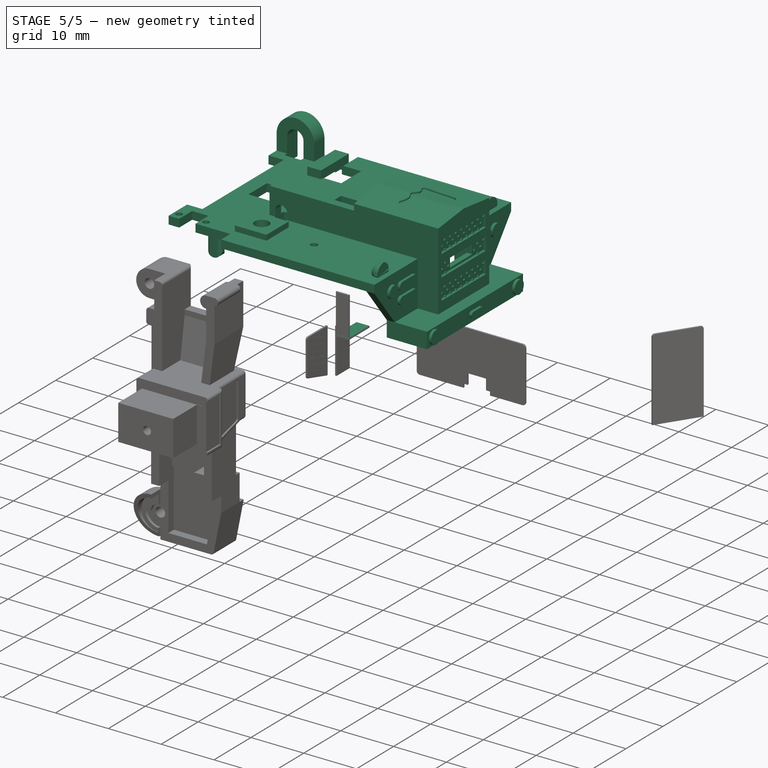
[diagram: stage 5 of 5 — iso view after this stage's code; geometry added in this stage tinted green]
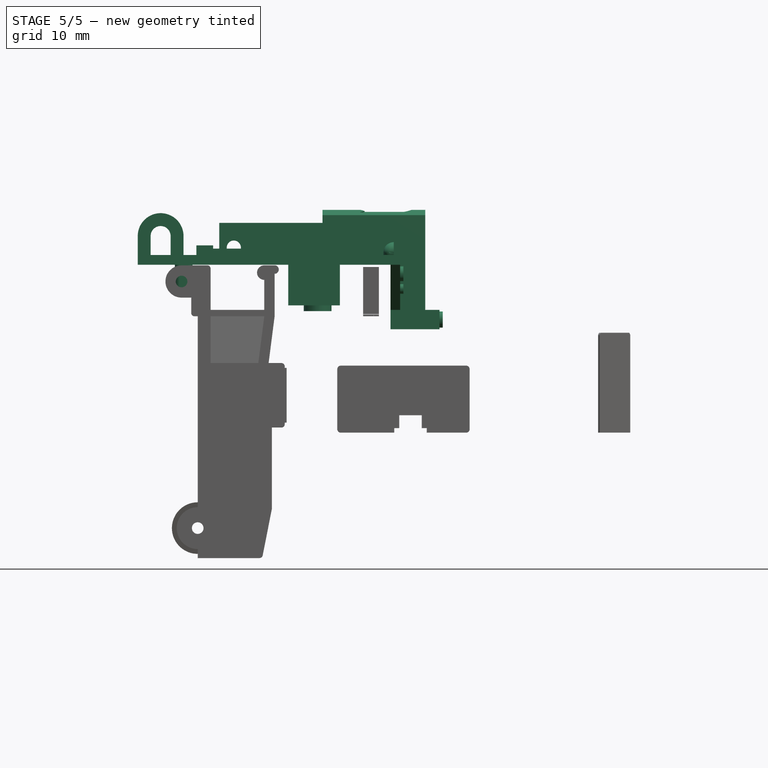
[diagram: stage 5 of 5 — front view after this stage's code; geometry added in this stage tinted green]
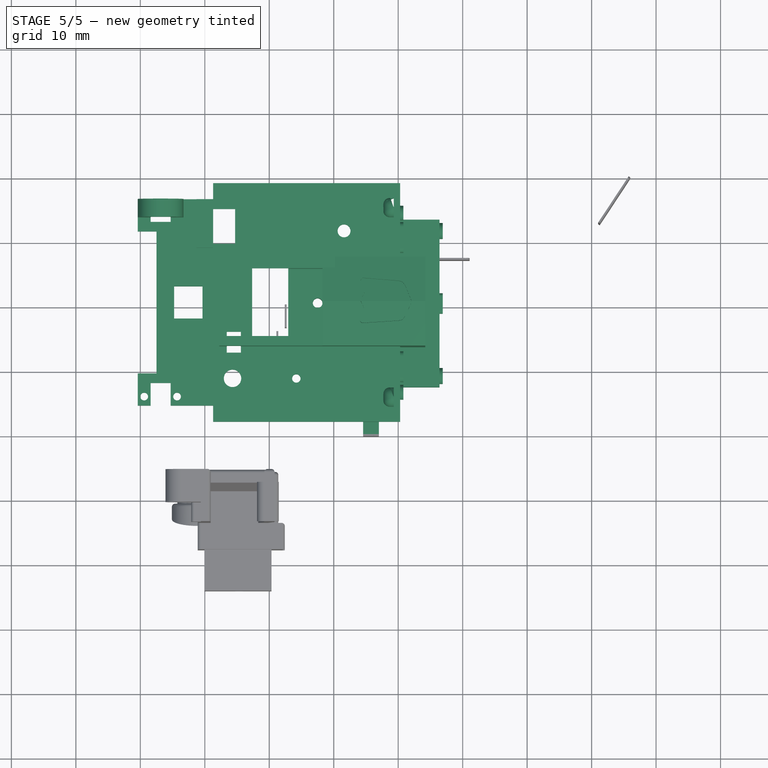
[diagram: stage 5 of 5 — top view after this stage's code; geometry added in this stage tinted green]
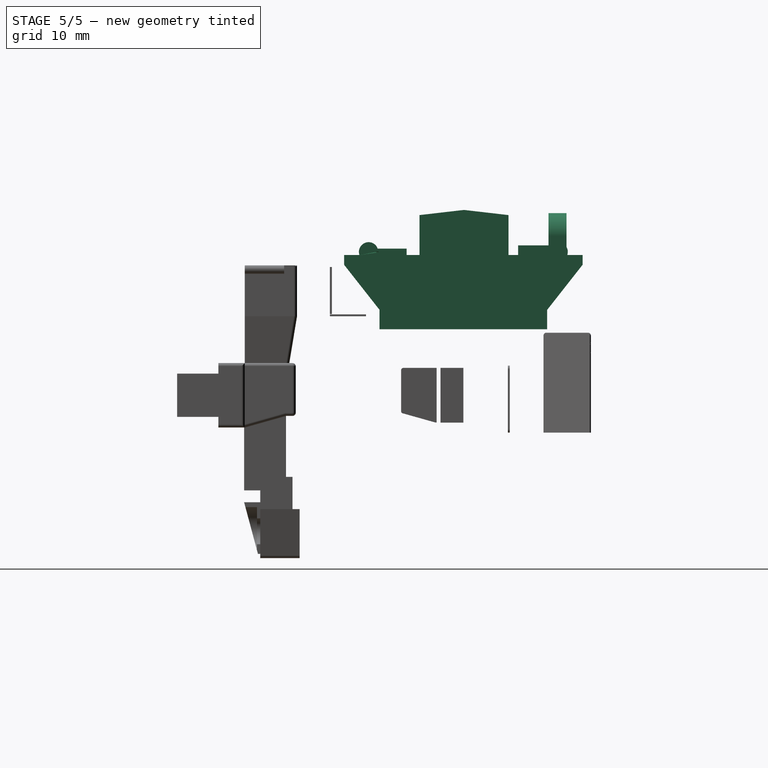
[diagram: stage 5 of 5 — right view after this stage's code; geometry added in this stage tinted green]
FEATURE [Part::Feature] Part__Feature  label="Upper_Torso"
  shape: bbox 47.31 x 37.01 x 18.51 mm, 362 faces (baked)
FEATURE [PartDesign::FeatureBase] BaseFeature
  BaseFeature = -> Part__Feature
  Suppressed = false
FEATURE [Sketcher::SketchObject] Sketch
  ArcFitTolerance = 1e-06
  AttachmentOffset = pos=(-61.12,-2.55,0) rot=(0,0,1;1.5708rad)
  AttachmentSupport = -> [BaseFeature]
  FullyConstrained = false
  MakeInternals = false
  MapMode = 5
  Placement = pos=(-61.12,-4.65962,18.0482) rot=(0.057586,-0.057586,0.996678;1.57412rad)
  sketch-geometry (55):
    g0-g23: Circle [constr] x24 (B-spline internal-alignment scaffolding for g24; pole/knot coordinates omitted)
    g24: BSplineCurve PolesCount=28 KnotsCount=26 Degree=3 IsPeriodic=0
    g25-g48: GeomPoint [constr] x24 (B-spline internal-alignment scaffolding for g24; pole/knot coordinates omitted)
    g49: Circle [constr] CenterX=7.96829 CenterY=-71.2558 CenterZ=0 NormalX=0 NormalY=0 NormalZ=1 AngleXU=0 Radius=1
    g50: GeomPoint [constr] X=8.18848 Y=-67.9665 Z=0
    g51: Circle [constr] CenterX=8.19567 CenterY=-67.6744 CenterZ=0 NormalX=0 NormalY=0 NormalZ=1 AngleXU=0 Radius=1
    g52: Circle [constr] CenterX=8.37992 CenterY=-65.8459 CenterZ=0 NormalX=0 NormalY=0 NormalZ=1 AngleXU=0 Radius=1
    g53: Circle [constr] CenterX=8.42259 CenterY=-65.5512 CenterZ=0 NormalX=0 NormalY=0 NormalZ=1 AngleXU=0 Radius=1
    g54: GeomPoint [constr] X=8.35632 Y=-66.1015 Z=0
  constraints (15):
    c: Weight(g0) = 1
    c: Equal(g0, g1-g23) x23
    c: InternalAlignment(g0-g23 -> g24) x24
    c: InternalAlignment(g25-g48 -> g24) x24
    c: Coincident(g23,g0)
    c: InternalAlignment(g49,g24)
    c: Equal(g49,g0)
    c: InternalAlignment(g50,g24)
    c: InternalAlignment(g51,g24)
    c: Equal(g51,g0)
    c: InternalAlignment(g52,g24)
    c: Equal(g52,g0)
    c: InternalAlignment(g53,g24)
    c: Equal(g53,g0)
    c: InternalAlignment(g54,g24)
FEATURE [PartDesign::Pocket] Pocket
  BaseFeature = -> BaseFeature
  Direction = (0,0.115171,-0.993346)
  Length = 0.3
  Length2 = 5
  Profile = -> Sketch
  ReferenceAxis = -> Sketch [N_Axis]
  Refine = true
  Suppressed = false
  Type = 0
FEATURE [Sketcher::SketchObject] Sketch001
  ArcFitTolerance = 1e-06
  AttachmentOffset = pos=(-61.1,-6.8,0) rot=(0,0,1;1.5708rad)
  AttachmentSupport = -> [Pocket]
  FullyConstrained = false
  MakeInternals = false
  MapMode = 5
  Placement = pos=(-61.1,-4.62551,19.1479) rot=(-0.057586,0.057586,0.996678;1.57412rad)
  sketch-geometry (55):
    g0-g23: Circle [constr] x24 (B-spline internal-alignment scaffolding for g24; pole/knot coordinates omitted)
    g24: BSplineCurve PolesCount=28 KnotsCount=26 Degree=3 IsPeriodic=0
    g25-g48: GeomPoint [constr] x24 (B-spline internal-alignment scaffolding for g24; pole/knot coordinates omitted)
    g49: Circle [constr] CenterX=7.96829 CenterY=-71.2558 CenterZ=0 NormalX=0 NormalY=0 NormalZ=1 AngleXU=0 Radius=1
    g50: GeomPoint [constr] X=8.18848 Y=-67.9665 Z=0
    g51: Circle [constr] CenterX=8.19567 CenterY=-67.6744 CenterZ=0 NormalX=0 NormalY=0 NormalZ=1 AngleXU=0 Radius=1
    g52: Circle [constr] CenterX=8.37992 CenterY=-65.8459 CenterZ=0 NormalX=0 NormalY=0 NormalZ=1 AngleXU=0 Radius=1
    g53: Circle [constr] CenterX=8.42259 CenterY=-65.5512 CenterZ=0 NormalX=0 NormalY=0 NormalZ=1 AngleXU=0 Radius=1
    g54: GeomPoint [constr] X=8.35632 Y=-66.1015 Z=0
  constraints (15):
    c: Weight(g0) = 1
    c: Equal(g0, g1-g23) x23
    c: InternalAlignment(g0-g23 -> g24) x24
    c: InternalAlignment(g25-g48 -> g24) x24
    c: Coincident(g23,g0)
    c: InternalAlignment(g49,g24)
    c: Equal(g49,g0)
    c: InternalAlignment(g50,g24)
    c: InternalAlignment(g51,g24)
    c: Equal(g51,g0)
    c: InternalAlignment(g52,g24)
    c: Equal(g52,g0)
    c: InternalAlignment(g53,g24)
    c: Equal(g53,g0)
    c: InternalAlignment(g54,g24)
FEATURE [PartDesign::Pocket] Pocket001
  BaseFeature = -> Pocket
  Direction = (0,-0.115171,-0.993346)
  Length = 0.3
  Length2 = 5
  Profile = -> Sketch001
  ReferenceAxis = -> Sketch001 [N_Axis]
  Refine = true
  Suppressed = false
  Type = 0
FEATURE [Sketcher::SketchObject] Sketch003
  ArcFitTolerance = 1e-06
  AttachmentSupport = -> [Pocket002]
  ExternalGeometry = -> [Pocket002]
  FullyConstrained = true
  MakeInternals = false
  MapMode = 5
  Placement = pos=(0,-20.7,9.7e-15) rot=(1,0,0;1.5708rad)
  sketch-geometry (4):
    g0: LineSegment StartX=4.55 StartY=9.8 StartZ=0 EndX=4.55 EndY=2.1 EndZ=0
    g1: LineSegment StartX=4.55 StartY=2.1 StartZ=0 EndX=7.05 EndY=2.1 EndZ=0
    g2: LineSegment StartX=7.05 StartY=2.1 StartZ=0 EndX=7.05 EndY=9.8 EndZ=0
    g3: LineSegment StartX=7.05 StartY=9.8 StartZ=0 EndX=4.55 EndY=9.8 EndZ=0
  constraints (10):
    c: Coincident(g0,g1)
    c: Coincident(g1,g2)
    c: Coincident(g2,g3)
    c: Coincident(g3,g0)
    c: Vertical(g0)
    c: Vertical(g2)
    c: Horizontal(g1)
    c: Horizontal(g3)
    c: Coincident(g0,g-4)
    c: Coincident(g1,g-5)
FEATURE [PartDesign::Pocket] Pocket003
  BaseFeature = -> Pocket002
  Direction = (0,1,-2e-16)
  Length = 0.3
  Length2 = 5
  Profile = -> Sketch003
  ReferenceAxis = -> Sketch003 [N_Axis]
  Refine = true
  Suppressed = false
  Type = 0
FEATURE [Sketcher::SketchObject] Sketch004
  ArcFitTolerance = 1e-06
  AttachmentSupport = -> [Pocket003]
  ExternalGeometry = -> [Pocket003]
  FullyConstrained = true
  MakeInternals = false
  MapMode = 5
  Placement = pos=(0,5e-16,2.1) rot=(1,0,0;3.14159rad)
  sketch-geometry (4):
    g0: LineSegment StartX=7.05 StartY=15.1 StartZ=0 EndX=7.05 EndY=20.4 EndZ=0
    g1: LineSegment StartX=7.05 StartY=20.4 StartZ=0 EndX=4.55 EndY=20.4 EndZ=0
    g2: LineSegment StartX=4.55 StartY=20.4 StartZ=0 EndX=4.55 EndY=15.1 EndZ=0
    g3: LineSegment StartX=4.55 StartY=15.1 StartZ=0 EndX=7.05 EndY=15.1 EndZ=0
  constraints (10):
    c: Coincident(g0,g1)
    c: Coincident(g1,g2)
    c: Coincident(g2,g3)
    c: Coincident(g3,g0)
    c: Vertical(g0)
    c: Vertical(g2)
    c: Horizontal(g1)
    c: Horizontal(g3)
    c: Coincident(g0,g-5)
    c: Coincident(g1,g-4)
FEATURE [PartDesign::Pocket] Pocket004
  BaseFeature = -> Pocket003
  Direction = (0,0,1)
  Length = 0.3
  Length2 = 5
  Profile = -> Sketch004
  ReferenceAxis = -> Sketch004 [N_Axis]
  Refine = true
  Suppressed = false
  Type = 0
FEATURE [PartDesign::Body] Body002  label="Right_Outer_Arm_Stickered"
  AllowCompound = false
  BaseFeature = -> Part__Feature001
  Group = -> [BaseFeature001,Sketch002,Pocket002,Sketch003,Pocket003,Sketch004,Pocket004]
  Origin = -> Origin001
  Tip = -> Pocket004
FEATURE [PartDesign::SubShapeBinder] Binder
  BindCopyOnChange = 0
  BindMode = 2
  ClaimChildren = false
  Context = -> Body003 [Binder.]
  Fuse = false
  MakeFace = true
  OffsetFill = false
  OffsetIntersection = false
  OffsetJoinType = 0
  OffsetOpenResult = false
  PartialLoad = false
  Refine = true
  Relative = true
  _Version = 2
FEATURE [Sketcher::SketchObject] Sketch005
  ArcFitTolerance = 1e-06
  AttachmentSupport = -> [Binder]
  ExternalGeometry = -> [Binder]
  FullyConstrained = true
  MakeInternals = false
  MapMode = 5
  Placement = pos=(0,0,2.4) rot=(1,0,0;3.14159rad)
  sketch-geometry (4):
    g0: LineSegment StartX=4.55 StartY=20.7 StartZ=0 EndX=4.55 EndY=15.1 EndZ=0
    g1: LineSegment StartX=4.55 StartY=15.1 StartZ=0 EndX=7 EndY=15.1 EndZ=0
    g2: LineSegment StartX=7 StartY=15.1 StartZ=0 EndX=7 EndY=20.7 EndZ=0
    g3: LineSegment StartX=7 StartY=20.7 StartZ=0 EndX=4.55 EndY=20.7 EndZ=0
  constraints (11):
    c: Coincident(g0,g1)
    c: Coincident(g1,g2)
    c: Coincident(g2,g3)
    c: Coincident(g3,g0)
    c: Vertical(g0)
    c: Vertical(g2)
    c: Horizontal(g1)
    c: Horizontal(g3)
    c: Coincident(g0,g-4)
    c: DistanceX(g2,g-3) = 0.05
    c: DistanceY(g-4,g0) = 0.3
FEATURE [PartDesign::Pad] Pad
  Direction = (0,0,-1)
  Length = 0.3
  Length2 = 10
  Profile = -> Sketch005
  ReferenceAxis = -> Sketch005 [N_Axis]
  Refine = true
  Suppressed = false
  Type = 0
FEATURE [Sketcher::SketchObject] Sketch006
  ArcFitTolerance = 1e-06
  AttachmentSupport = -> [Pad]
  ExternalGeometry = -> [Pad]
  FullyConstrained = false
  MakeInternals = false
  MapMode = 5
  Placement = pos=(0,0,2.1) rot=(1,0,0;3.14159rad)
  sketch-geometry (12):
    g0: ArcOfCircle CenterX=5.35 CenterY=20.7 CenterZ=0 NormalX=0 NormalY=0 NormalZ=-1 AngleXU=-1.5708 Radius=0.00550156 StartAngle=1.5708 EndAngle=4.71239
    g1: LineSegment StartX=5.3555 StartY=20.7 StartZ=0 EndX=5.3555 EndY=18.8333 EndZ=0
    g2: LineSegment StartX=5.3555 StartY=18.8333 StartZ=0 EndX=5.3555 EndY=15.1 EndZ=0
    g3: ArcOfCircle CenterX=5.35 CenterY=15.1 CenterZ=0 NormalX=0 NormalY=0 NormalZ=-1 AngleXU=1.5708 Radius=0.00550156 StartAngle=1.5708 EndAngle=4.71239
    g4: LineSegment StartX=5.3445 StartY=18.8333 StartZ=0 EndX=5.3445 EndY=15.1 EndZ=0
    g5: LineSegment StartX=5.3445 StartY=20.7 StartZ=0 EndX=5.3445 EndY=18.8333 EndZ=0
    g6: ArcOfCircle CenterX=6.2 CenterY=20.7 CenterZ=0 NormalX=0 NormalY=0 NormalZ=-1 AngleXU=-1.5708 Radius=0.00550156 StartAngle=1.5708 EndAngle=4.71239
    g7: LineSegment StartX=6.2055 StartY=20.7 StartZ=0 EndX=6.2055 EndY=18.8333 EndZ=0
    g8: LineSegment StartX=6.2055 StartY=18.8333 StartZ=0 EndX=6.2055 EndY=15.1 EndZ=0
    g9: ArcOfCircle CenterX=6.2 CenterY=15.1 CenterZ=0 NormalX=0 NormalY=0 NormalZ=-1 AngleXU=1.5708 Radius=0.00550156 StartAngle=1.5708 EndAngle=4.71239
    g10: LineSegment StartX=6.1945 StartY=18.8333 StartZ=0 EndX=6.1945 EndY=15.1 EndZ=0
    g11: LineSegment StartX=6.1945 StartY=20.7 StartZ=0 EndX=6.1945 EndY=18.8333 EndZ=0
  constraints (12):
    c: Tangent(g0,g1) = 1.5708
    c: Tangent(g0,g5) = -1.5708
    c: Coincident(g1,g2)
    c: Tangent(g2,g3) = 1.5708
    c: Tangent(g3,g4) = -1.5708
    c: Coincident(g4,g5)
    c: Tangent(g6,g7) = 1.5708
    c: Tangent(g6,g11) = -1.5708
    c: Coincident(g7,g8)
    c: Tangent(g8,g9) = 1.5708
    c: Tangent(g9,g10) = -1.5708
    c: Coincident(g10,g11)
FEATURE [PartDesign::Pocket] Pocket005
  BaseFeature = -> Pad
  Direction = (0,0,1)
  Length = 0.15
  Length2 = 5
  Profile = -> Sketch006
  ReferenceAxis = -> Sketch006 [N_Axis]
  Refine = true
  Suppressed = false
  Type = 0
FEATURE [PartDesign::Body] Body003  label="Sticker1A"
  AllowCompound = false
  Group = -> [Binder,Sketch005,Pad,Sketch006,Pocket005]
  Origin = -> Origin002
  Tip = -> Pocket005
FEATURE [PartDesign::SubShapeBinder] Binder001
  BindCopyOnChange = 0
  BindMode = 2
  ClaimChildren = false
  Context = -> Body004 [Binder001.]
  Fuse = false
  MakeFace = true
  OffsetFill = false
  OffsetIntersection = false
  OffsetJoinType = 0
  OffsetOpenResult = false
  PartialLoad = false
  Refine = true
  Relative = true
  _Version = 2
FEATURE [Sketcher::SketchObject] Sketch007
  ArcFitTolerance = 1e-06
  AttachmentSupport = -> [Binder001]
  ExternalGeometry = -> [Binder001]
  FullyConstrained = true
  MakeInternals = false
  MapMode = 5
  Placement = pos=(0,0,2.4) rot=(1,0,0;3.14159rad)
  sketch-geometry (4):
    g0: LineSegment StartX=4.55 StartY=20.7 StartZ=0 EndX=4.55 EndY=15.1 EndZ=0
    g1: LineSegment StartX=4.55 StartY=15.1 StartZ=0 EndX=7 EndY=15.1 EndZ=0
    g2: LineSegment StartX=7 StartY=15.1 StartZ=0 EndX=7 EndY=20.7 EndZ=0
    g3: LineSegment StartX=7 StartY=20.7 StartZ=0 EndX=4.55 EndY=20.7 EndZ=0
  constraints (11):
    c: Coincident(g0,g1)
    c: Coincident(g1,g2)
    c: Coincident(g2,g3)
    c: Coincident(g3,g0)
    c: Vertical(g0)
    c: Vertical(g2)
    c: Horizontal(g1)
    c: Horizontal(g3)
    c: Coincident(g0,g-4)
    c: DistanceX(g2,g-3) = 0.05
    c: DistanceY(g-4,g0) = 0.3
FEATURE [PartDesign::Pad] Pad001
  Direction = (0,0,-1)
  Length = 0.3
  Length2 = 10
  Profile = -> Sketch007
  ReferenceAxis = -> Sketch007 [N_Axis]
  Refine = true
  Suppressed = false
  Type = 0
FEATURE [Sketcher::SketchObject] Sketch008
  ArcFitTolerance = 1e-06
  AttachmentSupport = -> [Pad001]
  ExternalGeometry = -> [Pad001]
  FullyConstrained = false
  MakeInternals = false
  MapMode = 5
  Placement = pos=(0,0,2.1) rot=(1,0,0;3.14159rad)
  sketch-geometry (12):
    g0: ArcOfCircle CenterX=5.35 CenterY=20.7 CenterZ=0 NormalX=0 NormalY=0 NormalZ=-1 AngleXU=-1.5708 Radius=0.00550156 StartAngle=1.5708 EndAngle=4.71239
    g1: LineSegment StartX=5.3555 StartY=20.7 StartZ=0 EndX=5.3555 EndY=18.8333 EndZ=0
    g2: LineSegment StartX=5.3555 StartY=18.8333 StartZ=0 EndX=5.3555 EndY=15.1 EndZ=0
    g3: ArcOfCircle CenterX=5.35 CenterY=15.1 CenterZ=0 NormalX=0 NormalY=0 NormalZ=-1 AngleXU=1.5708 Radius=0.00550156 StartAngle=1.5708 EndAngle=4.71239
    g4: LineSegment StartX=5.3445 StartY=18.8333 StartZ=0 EndX=5.3445 EndY=15.1 EndZ=0
    g5: LineSegment StartX=5.3445 StartY=20.7 StartZ=0 EndX=5.3445 EndY=18.8333 EndZ=0
    g6: ArcOfCircle CenterX=6.2 CenterY=20.7 CenterZ=0 NormalX=0 NormalY=0 NormalZ=-1 AngleXU=-1.5708 Radius=0.00550156 StartAngle=1.5708 EndAngle=4.71239
    g7: LineSegment StartX=6.2055 StartY=20.7 StartZ=0 EndX=6.2055 EndY=18.8333 EndZ=0
    g8: LineSegment StartX=6.2055 StartY=18.8333 StartZ=0 EndX=6.2055 EndY=15.1 EndZ=0
    g9: ArcOfCircle CenterX=6.2 CenterY=15.1 CenterZ=0 NormalX=0 NormalY=0 NormalZ=-1 AngleXU=1.5708 Radius=0.00550156 StartAngle=1.5708 EndAngle=4.71239
    g10: LineSegment StartX=6.1945 StartY=18.8333 StartZ=0 EndX=6.1945 EndY=15.1 EndZ=0
    g11: LineSegment StartX=6.1945 StartY=20.7 StartZ=0 EndX=6.1945 EndY=18.8333 EndZ=0
  constraints (12):
    c: Tangent(g0,g1) = 1.5708
    c: Tangent(g0,g5) = -1.5708
    c: Coincident(g1,g2)
    c: Tangent(g2,g3) = 1.5708
    c: Tangent(g3,g4) = -1.5708
    c: Coincident(g4,g5)
    c: Tangent(g6,g7) = 1.5708
    c: Tangent(g6,g11) = -1.5708
    c: Coincident(g7,g8)
    c: Tangent(g8,g9) = 1.5708
    c: Tangent(g9,g10) = -1.5708
    c: Coincident(g10,g11)
FEATURE [PartDesign::Pocket] Pocket006
  BaseFeature = -> Pad001
  Direction = (0,0,1)
  Length = 0.15
  Length2 = 5
  Profile = -> Sketch008
  ReferenceAxis = -> Sketch008 [N_Axis]
  Refine = true
  Suppressed = false
  Type = 0
FEATURE [PartDesign::Body] Body004  label="Sticker1B"
  AllowCompound = false
  Group = -> [Binder001,Sketch007,Pad001,Sketch008,Pocket006]
  Origin = -> Origin003
  Placement = pos=(11.55,0,12.2) rot=(0,1,0;3.14159rad)
  Tip = -> Pocket006
FEATURE [PartDesign::SubShapeBinder] Binder002
  BindCopyOnChange = 0
  BindMode = 0
  ClaimChildren = false
  Context = -> Body005 [Binder002.]
  Fuse = false
  MakeFace = true
  OffsetFill = false
  OffsetIntersection = false
  OffsetJoinType = 0
  OffsetOpenResult = false
  PartialLoad = false
  Refine = true
  Relative = true
  Support = -> [Body002[Pocket004.Face40]]
  _Version = 2
FEATURE [Sketcher::SketchObject] Sketch009
  ArcFitTolerance = 1e-06
  AttachmentSupport = -> [Binder002]
  ExternalGeometry = -> [Binder002]
  FullyConstrained = true
  MakeInternals = false
  MapMode = 5
  Placement = pos=(0,-20.4,9.4e-15) rot=(1,0,0;1.5708rad)
  sketch-geometry (4):
    g0: LineSegment StartX=4.55 StartY=9.75 StartZ=0 EndX=4.55 EndY=2.45 EndZ=0
    g1: LineSegment StartX=4.55 StartY=2.45 StartZ=0 EndX=7 EndY=2.45 EndZ=0
    g2: LineSegment StartX=7 StartY=2.45 StartZ=0 EndX=7 EndY=9.75 EndZ=0
    g3: LineSegment StartX=7 StartY=9.75 StartZ=0 EndX=4.55 EndY=9.75 EndZ=0
  constraints (12):
    c: Coincident(g0,g1)
    c: Coincident(g1,g2)
    c: Coincident(g2,g3)
    c: Coincident(g3,g0)
    c: Vertical(g0)
    c: Vertical(g2)
    c: Horizontal(g1)
    c: Horizontal(g3)
    c: PointOnObject(g0,g-3)
    c: DistanceY(g-3,g0) = 0.05
    c: DistanceY(g0,g-3) = 0.05
    c: DistanceX(g2,g-4) = 0.05
FEATURE [PartDesign::Pad] Pad002
  Direction = (0,-1,2e-16)
  Length = 0.3
  Length2 = 10
  Profile = -> Sketch009
  ReferenceAxis = -> Sketch009 [N_Axis]
  Refine = true
  Suppressed = false
  Type = 0
FEATURE [Sketcher::SketchObject] Sketch010
  ArcFitTolerance = 1e-06
  AttachmentSupport = -> [Pad002]
  ExternalGeometry = -> [Pad002]
  FullyConstrained = false
  MakeInternals = false
  MapMode = 5
  Placement = pos=(0,-20.7,1.01e-14) rot=(1,0,0;1.5708rad)
  sketch-geometry (12):
    g0: ArcOfCircle CenterX=5.35 CenterY=9.75 CenterZ=0 NormalX=0 NormalY=0 NormalZ=-1 AngleXU=-1.5708 Radius=0.00409298 StartAngle=1.5708 EndAngle=4.71239
    g1: LineSegment StartX=5.35409 StartY=9.75 StartZ=0 EndX=5.35409 EndY=7.31667 EndZ=0
    g2: LineSegment StartX=5.35409 StartY=7.31667 StartZ=0 EndX=5.35409 EndY=2.45 EndZ=0
    g3: ArcOfCircle CenterX=5.35 CenterY=2.45 CenterZ=0 NormalX=0 NormalY=0 NormalZ=-1 AngleXU=1.5708 Radius=0.00409298 StartAngle=1.5708 EndAngle=4.71239
    g4: LineSegment StartX=5.34591 StartY=7.31667 StartZ=0 EndX=5.34591 EndY=2.45 EndZ=0
    g5: LineSegment StartX=5.34591 StartY=9.75 StartZ=0 EndX=5.34591 EndY=7.31667 EndZ=0
    g6: ArcOfCircle CenterX=6.2 CenterY=2.45 CenterZ=0 NormalX=0 NormalY=0 NormalZ=-1 AngleXU=1.5708 Radius=0.00409298 StartAngle=1.5708 EndAngle=4.71239
    g7: LineSegment StartX=6.19591 StartY=2.45 StartZ=0 EndX=6.19591 EndY=4.88333 EndZ=0
    g8: LineSegment StartX=6.19591 StartY=4.88333 StartZ=0 EndX=6.19591 EndY=9.75 EndZ=0
    g9: ArcOfCircle CenterX=6.2 CenterY=9.75 CenterZ=0 NormalX=0 NormalY=0 NormalZ=-1 AngleXU=-1.5708 Radius=0.00409298 StartAngle=1.5708 EndAngle=4.71239
    g10: LineSegment StartX=6.20409 StartY=4.88333 StartZ=0 EndX=6.20409 EndY=9.75 EndZ=0
    g11: LineSegment StartX=6.20409 StartY=2.45 StartZ=0 EndX=6.20409 EndY=4.88333 EndZ=0
  constraints (12):
    c: Tangent(g0,g1) = 1.5708
    c: Tangent(g0,g5) = -1.5708
    c: Coincident(g1,g2)
    c: Tangent(g2,g3) = 1.5708
    c: Tangent(g3,g4) = -1.5708
    c: Coincident(g4,g5)
    c: Tangent(g6,g7) = 1.5708
    c: Tangent(g6,g11) = -1.5708
    c: Coincident(g7,g8)
    c: Tangent(g8,g9) = 1.5708
    c: Tangent(g9,g10) = -1.5708
    c: Coincident(g10,g11)
FEATURE [PartDesign::Pocket] Pocket007
  BaseFeature = -> Pad002
  Direction = (0,1,-2e-16)
  Length = 0.15
  Length2 = 5
  Profile = -> Sketch010
  ReferenceAxis = -> Sketch010 [N_Axis]
  Refine = true
  Suppressed = false
  Type = 0
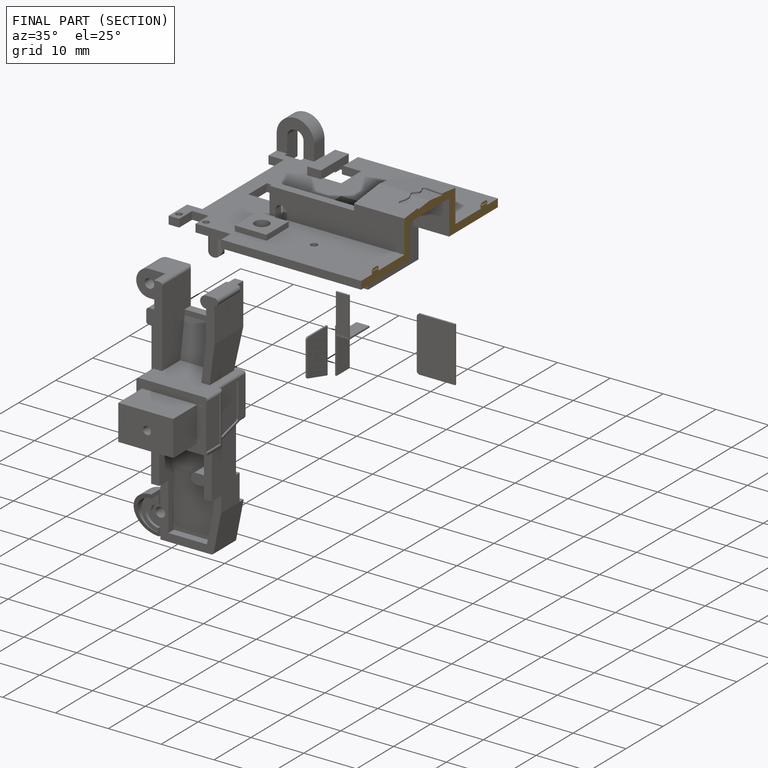
[diagram: finished part — half-section view (interior)]
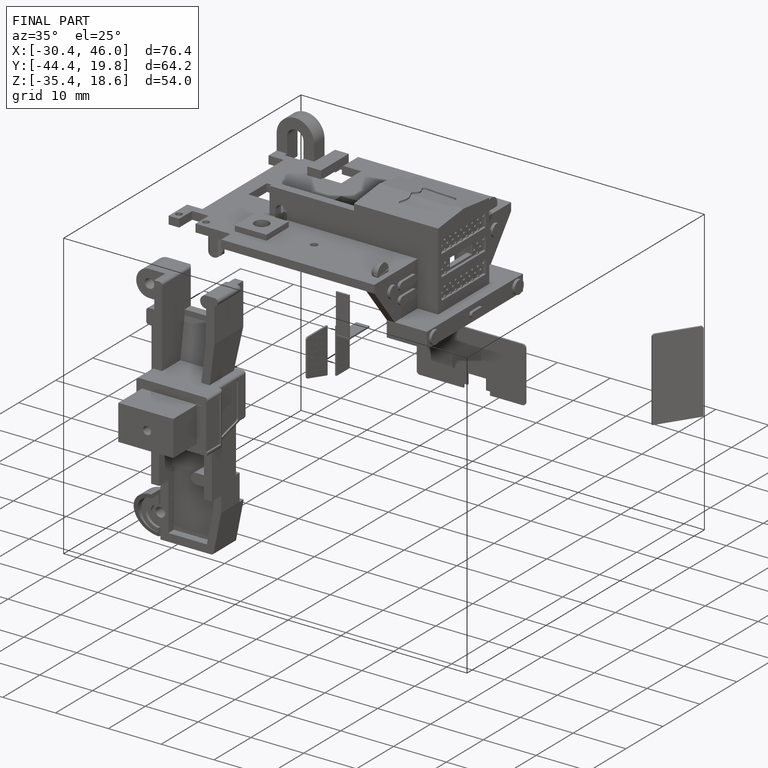
[diagram: finished part — iso view with bounding-box wireframe]
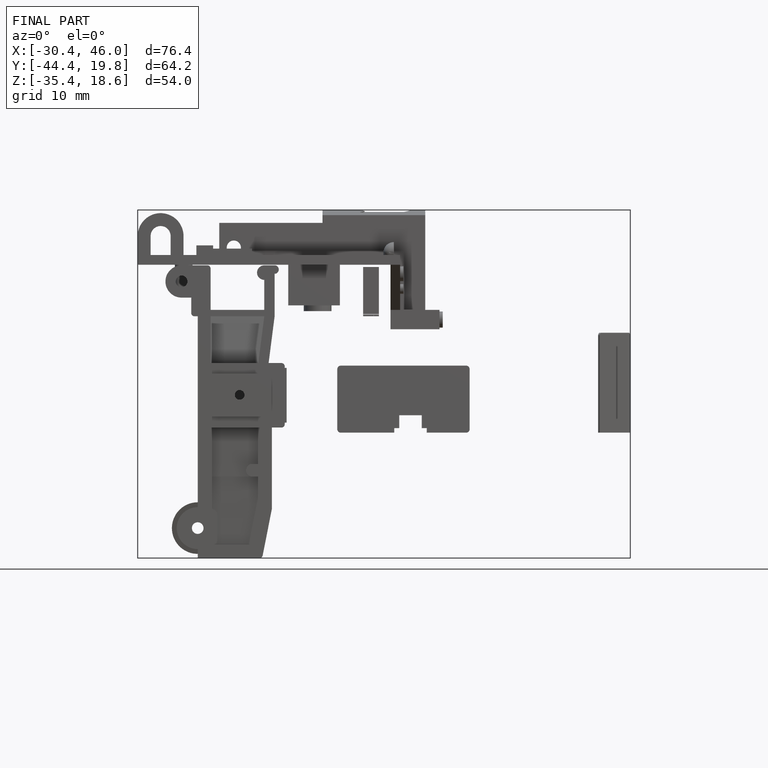
[diagram: finished part — front view with bounding-box wireframe]
